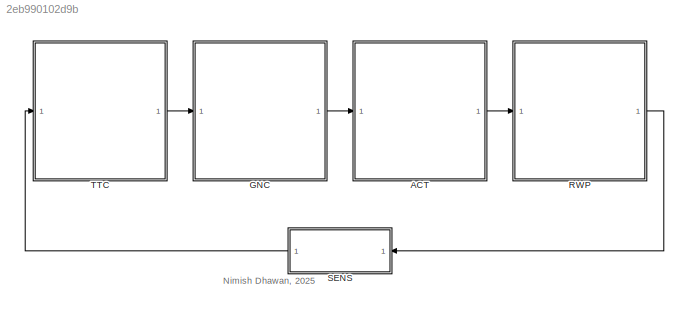
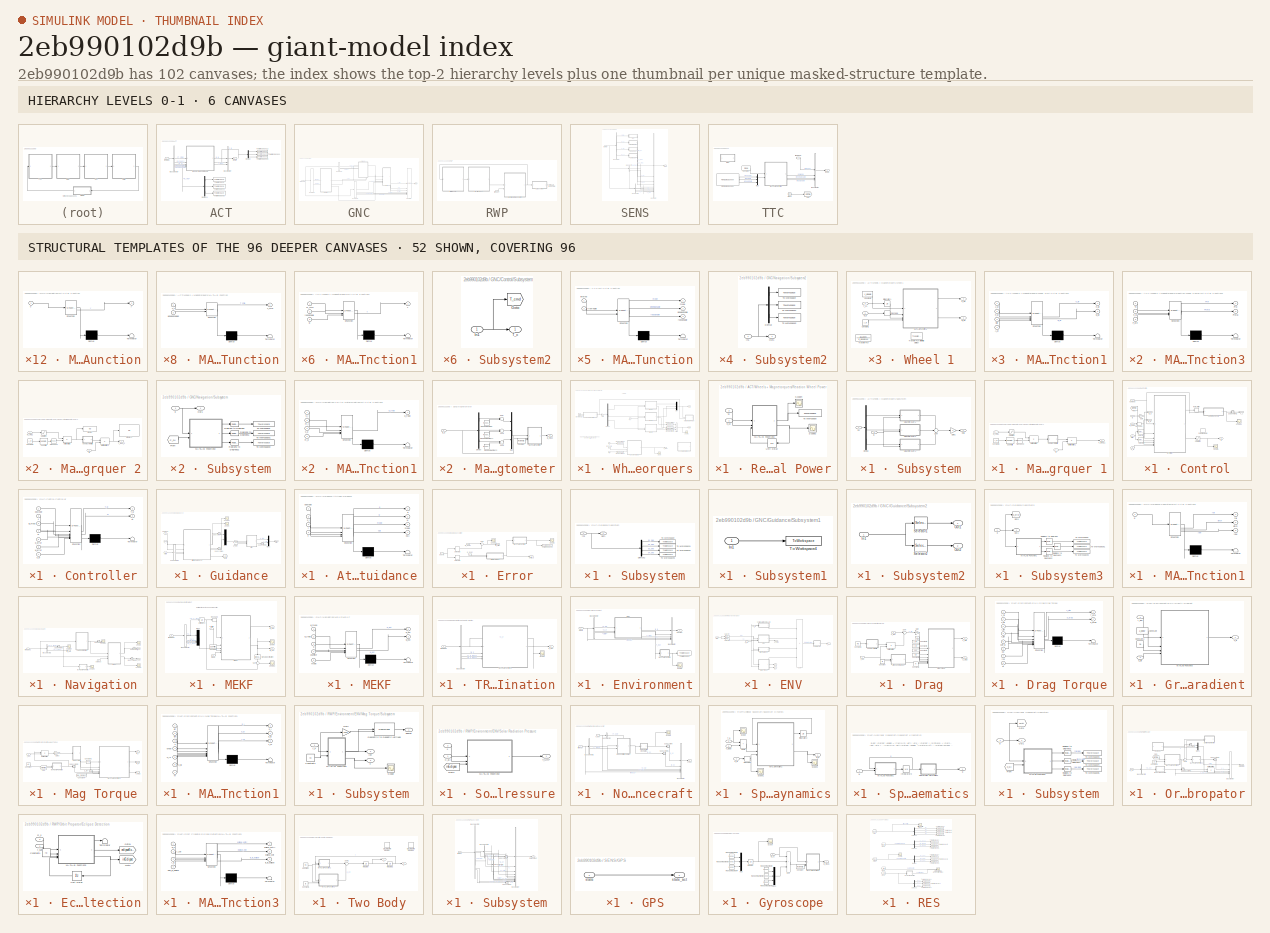
[diagram: thumbnail index - top-2 hierarchy levels (6 canvases) + 52 structural-template representatives of the remaining 96 canvases]
MODEL slx_2eb990102d9b
KIND model
CONFIG AbsTol = auto
CONFIG EnableMultiTasking = off
CONFIG FixedStep = baseRate
CONFIG MaxStep = auto
CONFIG MinStep = auto
CONFIG RelTol = 1e-3
CONFIG SampleTimeConstraint = Unconstrained
CONFIG SolverName = ode4
CONFIG StartTime = 0.0
CONFIG StopTime = tspan
BLOCK [SubSystem] ACT
BLOCK [BusCreator] ACT/Bus Creator
  DisplayOption = bar
  InheritFromInputs = on
  Inputs = 3
BLOCK [BusSelector] ACT/Bus Selector
  OutputSignals = T_cmd,w_body,B_b,m_cmd,wheelsEnable,rodsEnable
BLOCK [Demux] ACT/Demux
  Outputs = 3
BLOCK [Demux] ACT/Demux1
  Outputs = 3
BLOCK [ToWorkspace] ACT/To Workspace
  FixptAsFi = on
  MaxDataPoints = inf
  SampleTime = -1
  VariableName = m_1
BLOCK [ToWorkspace] ACT/To Workspace1
  FixptAsFi = on
  MaxDataPoints = inf
  SampleTime = -1
  VariableName = m_2
BLOCK [ToWorkspace] ACT/To Workspace10
  FixptAsFi = on
  MaxDataPoints = inf
  SampleTime = -1
  Save2DSignal = 2-D array (concatenate along first dimension)
  VariableName = h3_w
BLOCK [ToWorkspace] ACT/To Workspace11
  FixptAsFi = on
  MaxDataPoints = inf
  SampleTime = -1
  Save2DSignal = 2-D array (concatenate along first dimension)
  VariableName = h2_w
BLOCK [ToWorkspace] ACT/To Workspace12
  FixptAsFi = on
  MaxDataPoints = inf
  SampleTime = -1
  Save2DSignal = 2-D array (concatenate along first dimension)
  VariableName = h1_w
BLOCK [ToWorkspace] ACT/To Workspace2
  FixptAsFi = on
  MaxDataPoints = inf
  SampleTime = -1
  VariableName = m_3
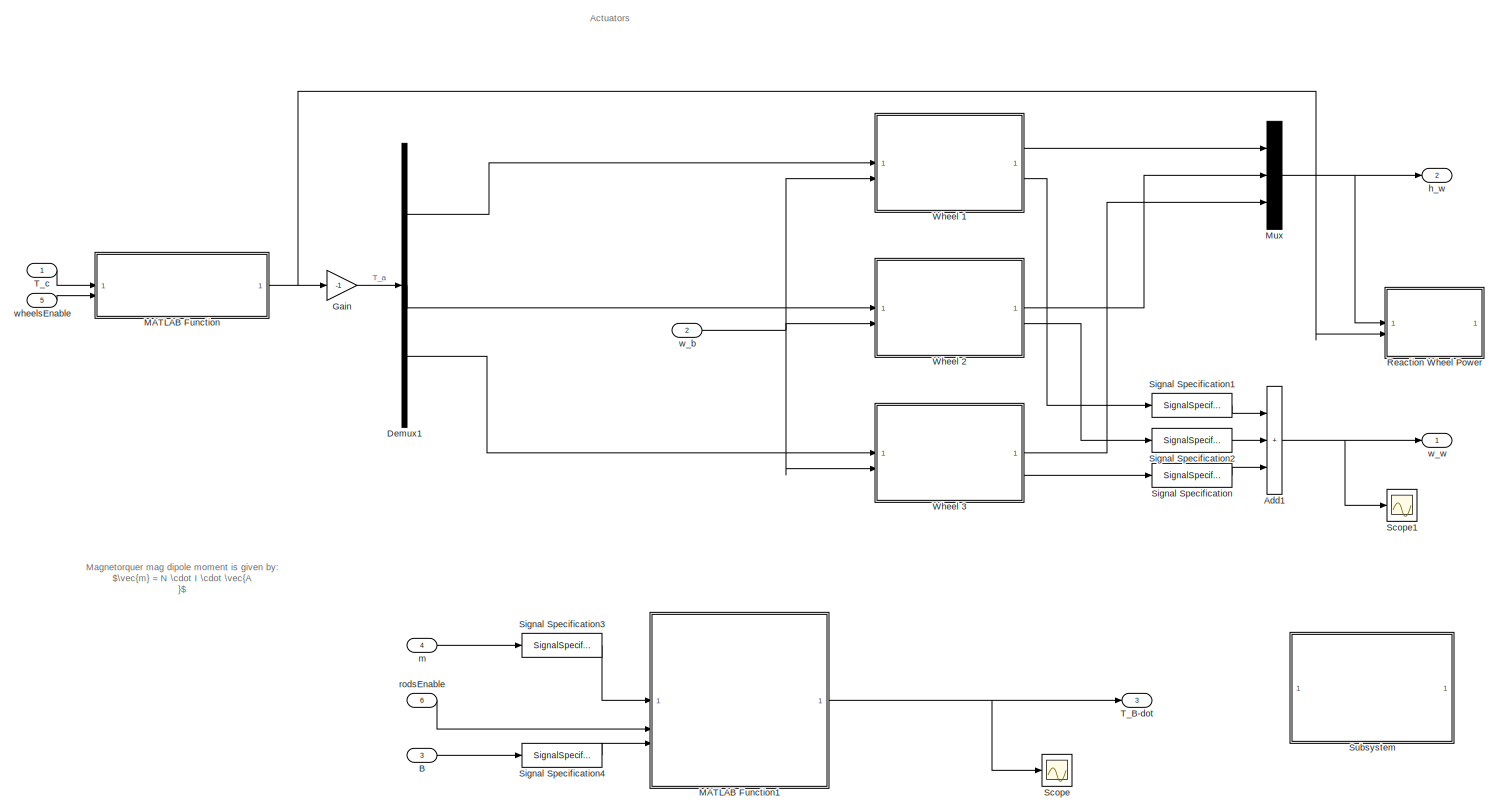
[diagram: ACT/Wheels + Magnetorquers - part 1/1, most of the canvas]
BLOCK [SubSystem] ACT/Wheels + Magnetorquers
BLOCK [Sum] ACT/Wheels + Magnetorquers/Add1
  IconShape = rectangular
  Inputs = +++
BLOCK [Inport] ACT/Wheels + Magnetorquers/B
  Port = 3
BLOCK [Demux] ACT/Wheels + Magnetorquers/Demux1
  Outputs = 3
BLOCK [Gain] ACT/Wheels + Magnetorquers/Gain
  Gain = -1
BLOCK [SubSystem] ACT/Wheels + Magnetorquers/MATLAB Function
  ErrorFcn = Stateflow.Translate.translate
  PermitHierarchicalResolution = ExplicitOnly
  SFBlockType = MATLAB Function
  TreatAsAtomicUnit = on
BLOCK [Demux] ACT/Wheels + Magnetorquers/MATLAB Function/ Demux 
  Outputs = 1
BLOCK [S-Function] ACT/Wheels + Magnetorquers/MATLAB Function/ SFunction 
  EnableBusSupport = on
  FunctionName = sf_sfun
  PortCounts = [2 2]
  SFcnIsStateOwnerBlock = off
  SFunctionDeploymentMode = off
  Tag = Stateflow S-Function 2
BLOCK [Terminator] ACT/Wheels + Magnetorquers/MATLAB Function/ Terminator 
BLOCK [Inport] ACT/Wheels + Magnetorquers/MATLAB Function/T_c
BLOCK [Outport] ACT/Wheels + Magnetorquers/MATLAB Function/T_cmd
BLOCK [Inport] ACT/Wheels + Magnetorquers/MATLAB Function/wheelsEnabled
  Port = 2
BLOCK [SubSystem] ACT/Wheels + Magnetorquers/MATLAB Function1
  ErrorFcn = Stateflow.Translate.translate
  PermitHierarchicalResolution = ExplicitOnly
  SFBlockType = MATLAB Function
  TreatAsAtomicUnit = on
BLOCK [Demux] ACT/Wheels + Magnetorquers/MATLAB Function1/ Demux 
  Outputs = 1
BLOCK [S-Function] ACT/Wheels + Magnetorquers/MATLAB Function1/ SFunction 
  EnableBusSupport = on
  FunctionName = sf_sfun
  PortCounts = [3 2]
  SFcnIsStateOwnerBlock = off
  SFunctionDeploymentMode = off
  Tag = Stateflow S-Function 5
BLOCK [Terminator] ACT/Wheels + Magnetorquers/MATLAB Function1/ Terminator 
BLOCK [Inport] ACT/Wheels + Magnetorquers/MATLAB Function1/B
  Port = 3
BLOCK [Outport] ACT/Wheels + Magnetorquers/MATLAB Function1/T
BLOCK [Inport] ACT/Wheels + Magnetorquers/MATLAB Function1/m_cmd
BLOCK [Inport] ACT/Wheels + Magnetorquers/MATLAB Function1/rodsEnable
  Port = 2
BLOCK [Mux] ACT/Wheels + Magnetorquers/Mux
  DisplayOption = bar
  Inputs = 3
BLOCK [SubSystem] ACT/Wheels + Magnetorquers/Reaction Wheel Power
BLOCK [SubSystem] ACT/Wheels + Magnetorquers/Reaction Wheel Power/MATLAB Function3
  ErrorFcn = Stateflow.Translate.translate
  PermitHierarchicalResolution = ExplicitOnly
  SFBlockType = MATLAB Function
  TreatAsAtomicUnit = on
BLOCK [Demux] ACT/Wheels + Magnetorquers/Reaction Wheel Power/MATLAB Function3/ Demux 
  Outputs = 1
BLOCK [S-Function] ACT/Wheels + Magnetorquers/Reaction Wheel Power/MATLAB Function3/ SFunction 
  EnableBusSupport = on
  FunctionName = sf_sfun
  PortCounts = [3 3]
  SFcnIsStateOwnerBlock = off
  SFunctionDeploymentMode = off
  Tag = Stateflow S-Function 34
BLOCK [Terminator] ACT/Wheels + Magnetorquers/Reaction Wheel Power/MATLAB Function3/ Terminator 
BLOCK [Inport] ACT/Wheels + Magnetorquers/Reaction Wheel Power/MATLAB Function3/P_pre
  Port = 3
BLOCK [Outport] ACT/Wheels + Magnetorquers/Reaction Wheel Power/MATLAB Function3/Prw
BLOCK [Outport] ACT/Wheels + Magnetorquers/Reaction Wheel Power/MATLAB Function3/Ptotal
  Port = 2
BLOCK [Inport] ACT/Wheels + Magnetorquers/Reaction Wheel Power/MATLAB Function3/Tc
BLOCK [Inport] ACT/Wheels + Magnetorquers/Reaction Wheel Power/MATLAB Function3/h_W
  Port = 2
BLOCK [Scope] ACT/Wheels + Magnetorquers/Reaction Wheel Power/Scope2
  Floating = off
  NumInputPorts = 1
  ScopeSpecificationString = Simulink.scopes.TimeScopeBlockCfg('CurrentConfiguration', extmgr.ConfigurationSet(extmgr.Configuration('Core','General UI',true),extmgr.Configuration('Core','Source UI',true),extmgr.Configuration('Sources','WiredSimulink',true,'DataLoggingVariableName','ScopeData2'),extmgr.Configuration('Visuals','Time Domain',true,'SerializedDisplays',{struct('MinYLimReal','-170.39311','MaxYLimReal','1533.53798',...<+1706ch>
BLOCK [Scope] ACT/Wheels + Magnetorquers/Reaction Wheel Power/Scope4
  Floating = off
  NumInputPorts = 1
  ScopeSpecificationString = Simulink.scopes.TimeScopeBlockCfg('CurrentConfiguration', extmgr.ConfigurationSet(extmgr.Configuration('Core','General UI',true),extmgr.Configuration('Core','Source UI',true),extmgr.Configuration('Sources','WiredSimulink',true,'DataLoggingVariableName','ScopeData1'),extmgr.Configuration('Visuals','Time Domain',true,'SerializedDisplays',{struct('MinYLimReal','-0.01681','MaxYLimReal','0.15128','YLab...<+1667ch>
BLOCK [Inport] ACT/Wheels + Magnetorquers/Reaction Wheel Power/Tc
  Port = 2
BLOCK [ToWorkspace] ACT/Wheels + Magnetorquers/Reaction Wheel Power/To Workspace
  FixptAsFi = on
  MaxDataPoints = inf
  SampleTime = -1
  VariableName = Prw
BLOCK [UnitDelay] ACT/Wheels + Magnetorquers/Reaction Wheel Power/Unit Delay
  HasFrameUpgradeWarning = on
  InitialCondition = zeros(3,1)
  NameLocation = top
  SampleTime = -1
BLOCK [Inport] ACT/Wheels + Magnetorquers/Reaction Wheel Power/h_W
BLOCK [Scope] ACT/Wheels + Magnetorquers/Scope
  Floating = off
  NumInputPorts = 1
  ScopeSpecificationString = Simulink.scopes.TimeScopeBlockCfg('CurrentConfiguration', extmgr.ConfigurationSet(extmgr.Configuration('Core','General UI',true),extmgr.Configuration('Core','Source UI',true),extmgr.Configuration('Sources','WiredSimulink',true,'DataLoggingVariableName','ScopeData2'),extmgr.Configuration('Visuals','Time Domain',true,'SerializedDisplays',{struct('MinYLimReal','-1.00000','MaxYLimReal','1.00000','YLab...<+1588ch>
BLOCK [Scope] ACT/Wheels + Magnetorquers/Scope1
  Floating = off
  NumInputPorts = 1
  ScopeSpecificationString = Simulink.scopes.TimeScopeBlockCfg('CurrentConfiguration', extmgr.ConfigurationSet(extmgr.Configuration('Core','General UI',true),extmgr.Configuration('Core','Source UI',true),extmgr.Configuration('Sources','WiredSimulink',true,'DataLoggingVariableName','ScopeData1'),extmgr.Configuration('Visuals','Time Domain',true,'SerializedDisplays',{struct('MinYLimReal','-0.31595','MaxYLimReal','2.84348','YLab...<+1525ch>
BLOCK [SignalSpecification] ACT/Wheels + Magnetorquers/Signal Specification
  Dimensions = [3,1]
BLOCK [SignalSpecification] ACT/Wheels + Magnetorquers/Signal Specification1
  Dimensions = [3,1]
BLOCK [SignalSpecification] ACT/Wheels + Magnetorquers/Signal Specification2
  Dimensions = [3,1]
BLOCK [SignalSpecification] ACT/Wheels + Magnetorquers/Signal Specification3
  Dimensions = [3,1]
BLOCK [SignalSpecification] ACT/Wheels + Magnetorquers/Signal Specification4
  Dimensions = [3,1]
BLOCK [SubSystem] ACT/Wheels + Magnetorquers/Subsystem
  Commented = on
BLOCK [Inport] ACT/Wheels + Magnetorquers/Subsystem/B
  Port = 2
BLOCK [Demux] ACT/Wheels + Magnetorquers/Subsystem/Demux
  Outputs = 3
BLOCK [Gain] ACT/Wheels + Magnetorquers/Subsystem/Gain1
  Gain = -1
BLOCK [Inport] ACT/Wheels + Magnetorquers/Subsystem/In1
BLOCK [SubSystem] ACT/Wheels + Magnetorquers/Subsystem/Magnetorquer 1
BLOCK [Inport] ACT/Wheels + Magnetorquers/Subsystem/Magnetorquer 1/B
  NameLocation = left
  Port = 2
BLOCK [Constant] ACT/Wheels + Magnetorquers/Subsystem/Magnetorquer 1/Constant1
  Value = A_m
BLOCK [Product] ACT/Wheels + Magnetorquers/Subsystem/Magnetorquer 1/Matrix Multiply
BLOCK [Product] ACT/Wheels + Magnetorquers/Subsystem/Magnetorquer 1/Matrix Multiply1
  Multiplication = Matrix(*)
BLOCK [Saturate] ACT/Wheels + Magnetorquers/Subsystem/Magnetorquer 1/Saturation
  LowerLimit = -0.2
  UpperLimit = 0.2
BLOCK [Reference] ACT/Wheels + Magnetorquers/Subsystem/Magnetorquer 1/Submatrix  REF=matrix_library/Submatrix
  SourceBlock = matrix_library/Submatrix
  SourceType = Submatrix
BLOCK [Outport] ACT/Wheels + Magnetorquers/Subsystem/Magnetorquer 1/T_Bdot_1
BLOCK [Math] ACT/Wheels + Magnetorquers/Subsystem/Magnetorquer 1/Transpose
  Operator = transpose
BLOCK [Inport] ACT/Wheels + Magnetorquers/Subsystem/Magnetorquer 1/m_cmd1
  NameLocation = left
BLOCK [SubSystem] ACT/Wheels + Magnetorquers/Subsystem/Magnetorquer 1/skew symmetric
  ErrorFcn = Stateflow.Translate.translate
  PermitHierarchicalResolution = ExplicitOnly
  SFBlockType = MATLAB Function
  TreatAsAtomicUnit = on
BLOCK [Demux] ACT/Wheels + Magnetorquers/Subsystem/Magnetorquer 1/skew symmetric/ Demux 
  Outputs = 1
BLOCK [S-Function] ACT/Wheels + Magnetorquers/Subsystem/Magnetorquer 1/skew symmetric/ SFunction 
  EnableBusSupport = on
  FunctionName = sf_sfun
  PortCounts = [1 2]
  SFcnIsStateOwnerBlock = off
  SFunctionDeploymentMode = off
  Tag = Stateflow S-Function 76
BLOCK [Terminator] ACT/Wheels + Magnetorquers/Subsystem/Magnetorquer 1/skew symmetric/ Terminator 
BLOCK [Inport] ACT/Wheels + Magnetorquers/Subsystem/Magnetorquer 1/skew symmetric/M
BLOCK [Outport] ACT/Wheels + Magnetorquers/Subsystem/Magnetorquer 1/skew symmetric/skew
BLOCK [SubSystem] ACT/Wheels + Magnetorquers/Subsystem/Magnetorquer 2
BLOCK [Inport] ACT/Wheels + Magnetorquers/Subsystem/Magnetorquer 2/B
  NameLocation = left
  Port = 2
BLOCK [Constant] ACT/Wheels + Magnetorquers/Subsystem/Magnetorquer 2/Constant1
  Value = A_m
BLOCK [Display] ACT/Wheels + Magnetorquers/Subsystem/Magnetorquer 2/Display
  Decimation = 1
BLOCK [Display] ACT/Wheels + Magnetorquers/Subsystem/Magnetorquer 2/Display1
  Decimation = 1
BLOCK [Product] ACT/Wheels + Magnetorquers/Subsystem/Magnetorquer 2/Matrix Multiply
BLOCK [Product] ACT/Wheels + Magnetorquers/Subsystem/Magnetorquer 2/Matrix Multiply1
  Multiplication = Matrix(*)
BLOCK [Saturate] ACT/Wheels + Magnetorquers/Subsystem/Magnetorquer 2/Saturation
  LowerLimit = -0.2
  UpperLimit = 0.2
BLOCK [Reference] ACT/Wheels + Magnetorquers/Subsystem/Magnetorquer 2/Submatrix  REF=matrix_library/Submatrix
  SourceBlock = matrix_library/Submatrix
  SourceType = Submatrix
BLOCK [Outport] ACT/Wheels + Magnetorquers/Subsystem/Magnetorquer 2/T_Bdot_2
BLOCK [Math] ACT/Wheels + Magnetorquers/Subsystem/Magnetorquer 2/Transpose
  Operator = transpose
BLOCK [Inport] ACT/Wheels + Magnetorquers/Subsystem/Magnetorquer 2/m_cmd2
  NameLocation = left
BLOCK [SubSystem] ACT/Wheels + Magnetorquers/Subsystem/Magnetorquer 2/skew symmetric
  ErrorFcn = Stateflow.Translate.translate
  PermitHierarchicalResolution = ExplicitOnly
  SFBlockType = MATLAB Function
  TreatAsAtomicUnit = on
BLOCK [Demux] ACT/Wheels + Magnetorquers/Subsystem/Magnetorquer 2/skew symmetric/ Demux 
  Outputs = 1
BLOCK [S-Function] ACT/Wheels + Magnetorquers/Subsystem/Magnetorquer 2/skew symmetric/ SFunction 
  EnableBusSupport = on
  FunctionName = sf_sfun
  PortCounts = [1 2]
  SFcnIsStateOwnerBlock = off
  SFunctionDeploymentMode = off
  Tag = Stateflow S-Function 77
BLOCK [Terminator] ACT/Wheels + Magnetorquers/Subsystem/Magnetorquer 2/skew symmetric/ Terminator 
BLOCK [Inport] ACT/Wheels + Magnetorquers/Subsystem/Magnetorquer 2/skew symmetric/M
BLOCK [Outport] ACT/Wheels + Magnetorquers/Subsystem/Magnetorquer 2/skew symmetric/skew
BLOCK [SubSystem] ACT/Wheels + Magnetorquers/Subsystem/Magnetorquer 3
BLOCK [Inport] ACT/Wheels + Magnetorquers/Subsystem/Magnetorquer 3/B
  NameLocation = left
  Port = 2
BLOCK [Constant] ACT/Wheels + Magnetorquers/Subsystem/Magnetorquer 3/Constant1
  Value = A_m
BLOCK [Display] ACT/Wheels + Magnetorquers/Subsystem/Magnetorquer 3/Display
  Decimation = 1
BLOCK [Display] ACT/Wheels + Magnetorquers/Subsystem/Magnetorquer 3/Display1
  Decimation = 1
BLOCK [Product] ACT/Wheels + Magnetorquers/Subsystem/Magnetorquer 3/Matrix Multiply
BLOCK [Product] ACT/Wheels + Magnetorquers/Subsystem/Magnetorquer 3/Matrix Multiply1
  Multiplication = Matrix(*)
BLOCK [Saturate] ACT/Wheels + Magnetorquers/Subsystem/Magnetorquer 3/Saturation
  LowerLimit = -0.2
  UpperLimit = 0.2
BLOCK [Reference] ACT/Wheels + Magnetorquers/Subsystem/Magnetorquer 3/Submatrix  REF=matrix_library/Submatrix
  SourceBlock = matrix_library/Submatrix
  SourceType = Submatrix
BLOCK [Outport] ACT/Wheels + Magnetorquers/Subsystem/Magnetorquer 3/T_Bdot_3
BLOCK [Math] ACT/Wheels + Magnetorquers/Subsystem/Magnetorquer 3/Transpose
  Operator = transpose
BLOCK [Inport] ACT/Wheels + Magnetorquers/Subsystem/Magnetorquer 3/m_cmd3
  NameLocation = left
BLOCK [SubSystem] ACT/Wheels + Magnetorquers/Subsystem/Magnetorquer 3/skew symmetric
  ErrorFcn = Stateflow.Translate.translate
  PermitHierarchicalResolution = ExplicitOnly
  SFBlockType = MATLAB Function
  TreatAsAtomicUnit = on
BLOCK [Demux] ACT/Wheels + Magnetorquers/Subsystem/Magnetorquer 3/skew symmetric/ Demux 
  Outputs = 1
BLOCK [S-Function] ACT/Wheels + Magnetorquers/Subsystem/Magnetorquer 3/skew symmetric/ SFunction 
  EnableBusSupport = on
  FunctionName = sf_sfun
  PortCounts = [1 2]
  SFcnIsStateOwnerBlock = off
  SFunctionDeploymentMode = off
  Tag = Stateflow S-Function 78
BLOCK [Terminator] ACT/Wheels + Magnetorquers/Subsystem/Magnetorquer 3/skew symmetric/ Terminator 
BLOCK [Inport] ACT/Wheels + Magnetorquers/Subsystem/Magnetorquer 3/skew symmetric/M
BLOCK [Outport] ACT/Wheels + Magnetorquers/Subsystem/Magnetorquer 3/skew symmetric/skew
BLOCK [Outport] ACT/Wheels + Magnetorquers/Subsystem/Out1
BLOCK [Sum] ACT/Wheels + Magnetorquers/Subsystem/Sum
  Inputs = +++
BLOCK [Outport] ACT/Wheels + Magnetorquers/T_B-dot
  Port = 3
BLOCK [Inport] ACT/Wheels + Magnetorquers/T_c
BLOCK [SubSystem] ACT/Wheels + Magnetorquers/Wheel 1
BLOCK [Constant] ACT/Wheels + Magnetorquers/Wheel 1/Constant1
  Value = A_w
BLOCK [Constant] ACT/Wheels + Magnetorquers/Wheel 1/Constant2
  Value = J_wheels
BLOCK [Integrator] ACT/Wheels + Magnetorquers/Wheel 1/Integrator1
  InitialCondition = wW_1*J_wheels
BLOCK [SubSystem] ACT/Wheels + Magnetorquers/Wheel 1/MATLAB Function1
  ErrorFcn = Stateflow.Translate.translate
  PermitHierarchicalResolution = ExplicitOnly
  SFBlockType = MATLAB Function
  TreatAsAtomicUnit = on
BLOCK [Demux] ACT/Wheels + Magnetorquers/Wheel 1/MATLAB Function1/ Demux 
  Outputs = 1
BLOCK [S-Function] ACT/Wheels + Magnetorquers/Wheel 1/MATLAB Function1/ SFunction 
  EnableBusSupport = on
  FunctionName = sf_sfun
  PortCounts = [4 3]
  SFcnIsStateOwnerBlock = off
  SFunctionDeploymentMode = off
  Tag = Stateflow S-Function 29
BLOCK [Terminator] ACT/Wheels + Magnetorquers/Wheel 1/MATLAB Function1/ Terminator 
BLOCK [Inport] ACT/Wheels + Magnetorquers/Wheel 1/MATLAB Function1/A_w
  Port = 4
BLOCK [Inport] ACT/Wheels + Magnetorquers/Wheel 1/MATLAB Function1/J_w
BLOCK [Inport] ACT/Wheels + Magnetorquers/Wheel 1/MATLAB Function1/h_w
  Port = 2
BLOCK [Outport] ACT/Wheels + Magnetorquers/Wheel 1/MATLAB Function1/h_wi
BLOCK [Inport] ACT/Wheels + Magnetorquers/Wheel 1/MATLAB Function1/wB
  Port = 3
BLOCK [Outport] ACT/Wheels + Magnetorquers/Wheel 1/MATLAB Function1/w_wi
  Port = 2
BLOCK [Reshape] ACT/Wheels + Magnetorquers/Wheel 1/Reshape
  OutputDimensionality = Column vector (2-D)
BLOCK [Inport] ACT/Wheels + Magnetorquers/Wheel 1/T_c1
BLOCK [TransferFcn] ACT/Wheels + Magnetorquers/Wheel 1/Transfer Fcn
  Denominator = [J_wheels 1 0]
  Numerator = [2.11e04]
BLOCK [Reference] ACT/Wheels + Magnetorquers/Wheel 1/Transfer Fcn (with initial states)  REF=simulink_extras/Additional
Linear/Transfer Fcn
(with initial states)
  SourceBlock = simulink_extras/Additional\nLinear/Transfer Fcn\n(with initial states)
  SourceType = Transfer Function with Initial States
BLOCK [Outport] ACT/Wheels + Magnetorquers/Wheel 1/h_w1
  NameLocation = top
BLOCK [Inport] ACT/Wheels + Magnetorquers/Wheel 1/w_b
  Port = 2
BLOCK [Outport] ACT/Wheels + Magnetorquers/Wheel 1/w_w1
  Port = 2
BLOCK [SubSystem] ACT/Wheels + Magnetorquers/Wheel 2
BLOCK [Constant] ACT/Wheels + Magnetorquers/Wheel 2/Constant2
  Value = A_w
BLOCK [Constant] ACT/Wheels + Magnetorquers/Wheel 2/Constant3
  Value = J_wheels
BLOCK [Integrator] ACT/Wheels + Magnetorquers/Wheel 2/Integrator1
  InitialCondition = wW_2*J_wheels
BLOCK [SubSystem] ACT/Wheels + Magnetorquers/Wheel 2/MATLAB Function1
  ErrorFcn = Stateflow.Translate.translate
  PermitHierarchicalResolution = ExplicitOnly
  SFBlockType = MATLAB Function
  TreatAsAtomicUnit = on
BLOCK [Demux] ACT/Wheels + Magnetorquers/Wheel 2/MATLAB Function1/ Demux 
  Outputs = 1
BLOCK [S-Function] ACT/Wheels + Magnetorquers/Wheel 2/MATLAB Function1/ SFunction 
  EnableBusSupport = on
  FunctionName = sf_sfun
  PortCounts = [4 3]
  SFcnIsStateOwnerBlock = off
  SFunctionDeploymentMode = off
  Tag = Stateflow S-Function 30
BLOCK [Terminator] ACT/Wheels + Magnetorquers/Wheel 2/MATLAB Function1/ Terminator 
BLOCK [Inport] ACT/Wheels + Magnetorquers/Wheel 2/MATLAB Function1/A_w
  Port = 4
BLOCK [Inport] ACT/Wheels + Magnetorquers/Wheel 2/MATLAB Function1/J_w
BLOCK [Inport] ACT/Wheels + Magnetorquers/Wheel 2/MATLAB Function1/h_w
  Port = 2
BLOCK [Outport] ACT/Wheels + Magnetorquers/Wheel 2/MATLAB Function1/h_wi
BLOCK [Inport] ACT/Wheels + Magnetorquers/Wheel 2/MATLAB Function1/wB
  Port = 3
BLOCK [Outport] ACT/Wheels + Magnetorquers/Wheel 2/MATLAB Function1/w_wi
  Port = 2
BLOCK [Reshape] ACT/Wheels + Magnetorquers/Wheel 2/Reshape
  OutputDimensionality = Column vector (2-D)
BLOCK [Inport] ACT/Wheels + Magnetorquers/Wheel 2/T_c2
BLOCK [TransferFcn] ACT/Wheels + Magnetorquers/Wheel 2/Transfer Fcn
  Denominator = [J_wheels 1 0]
  Numerator = [2.11e04]
BLOCK [Reference] ACT/Wheels + Magnetorquers/Wheel 2/Transfer Fcn (with initial states)  REF=simulink_extras/Additional
Linear/Transfer Fcn
(with initial states)
  SourceBlock = simulink_extras/Additional\nLinear/Transfer Fcn\n(with initial states)
  SourceType = Transfer Function with Initial States
BLOCK [Outport] ACT/Wheels + Magnetorquers/Wheel 2/h_w2
BLOCK [Inport] ACT/Wheels + Magnetorquers/Wheel 2/w_b
  Port = 2
BLOCK [Outport] ACT/Wheels + Magnetorquers/Wheel 2/w_w2
  Port = 2
BLOCK [SubSystem] ACT/Wheels + Magnetorquers/Wheel 3
BLOCK [Constant] ACT/Wheels + Magnetorquers/Wheel 3/Constant2
  Value = A_w
BLOCK [Constant] ACT/Wheels + Magnetorquers/Wheel 3/Constant3
  Value = J_wheels
BLOCK [Integrator] ACT/Wheels + Magnetorquers/Wheel 3/Integrator1
  InitialCondition = wW_3*J_wheels
BLOCK [SubSystem] ACT/Wheels + Magnetorquers/Wheel 3/MATLAB Function1
  ErrorFcn = Stateflow.Translate.translate
  PermitHierarchicalResolution = ExplicitOnly
  SFBlockType = MATLAB Function
  TreatAsAtomicUnit = on
BLOCK [Demux] ACT/Wheels + Magnetorquers/Wheel 3/MATLAB Function1/ Demux 
  Outputs = 1
BLOCK [S-Function] ACT/Wheels + Magnetorquers/Wheel 3/MATLAB Function1/ SFunction 
  EnableBusSupport = on
  FunctionName = sf_sfun
  PortCounts = [4 3]
  SFcnIsStateOwnerBlock = off
  SFunctionDeploymentMode = off
  Tag = Stateflow S-Function 32
BLOCK [Terminator] ACT/Wheels + Magnetorquers/Wheel 3/MATLAB Function1/ Terminator 
BLOCK [Inport] ACT/Wheels + Magnetorquers/Wheel 3/MATLAB Function1/A_w
  Port = 4
BLOCK [Inport] ACT/Wheels + Magnetorquers/Wheel 3/MATLAB Function1/J_w
BLOCK [Inport] ACT/Wheels + Magnetorquers/Wheel 3/MATLAB Function1/h_w
  Port = 2
BLOCK [Outport] ACT/Wheels + Magnetorquers/Wheel 3/MATLAB Function1/h_wi
BLOCK [Inport] ACT/Wheels + Magnetorquers/Wheel 3/MATLAB Function1/wB
  Port = 3
BLOCK [Outport] ACT/Wheels + Magnetorquers/Wheel 3/MATLAB Function1/w_wi
  Port = 2
BLOCK [Reshape] ACT/Wheels + Magnetorquers/Wheel 3/Reshape
  OutputDimensionality = Column vector (2-D)
BLOCK [Inport] ACT/Wheels + Magnetorquers/Wheel 3/T_c3
BLOCK [TransferFcn] ACT/Wheels + Magnetorquers/Wheel 3/Transfer Fcn
  Denominator = [J_wheels 1 0]
  Numerator = [2.11e04]
BLOCK [Reference] ACT/Wheels + Magnetorquers/Wheel 3/Transfer Fcn (with initial states)  REF=simulink_extras/Additional
Linear/Transfer Fcn
(with initial states)
  SourceBlock = simulink_extras/Additional\nLinear/Transfer Fcn\n(with initial states)
  SourceType = Transfer Function with Initial States
BLOCK [Outport] ACT/Wheels + Magnetorquers/Wheel 3/h_w3
  NameLocation = top
BLOCK [Inport] ACT/Wheels + Magnetorquers/Wheel 3/w_b
  Port = 2
BLOCK [Outport] ACT/Wheels + Magnetorquers/Wheel 3/w_w3
  Port = 2
BLOCK [Outport] ACT/Wheels + Magnetorquers/h_w
  Port = 2
BLOCK [Inport] ACT/Wheels + Magnetorquers/m
  Port = 4
BLOCK [Inport] ACT/Wheels + Magnetorquers/rodsEnable
  Port = 6
BLOCK [Inport] ACT/Wheels + Magnetorquers/w_b
  NameLocation = left
  Port = 2
BLOCK [Outport] ACT/Wheels + Magnetorquers/w_w
BLOCK [Inport] ACT/Wheels + Magnetorquers/wheelsEnable
  Port = 5
BLOCK [Inport] ACT/fromGNC
BLOCK [Outport] ACT/toRWP
BLOCK [SubSystem] GNC
BLOCK [BusCreator] GNC/Bus Creator
  DisplayOption = bar
  InheritFromInputs = on
  Inputs = 7
BLOCK [BusSelector] GNC/Bus Selector
  OutputSignals = fromSENS,opMode
BLOCK [BusSelector] GNC/Bus Selector1
  OutputSignals = fromSENS.state_act,fromSENS.s_I,opMode
BLOCK [BusSelector] GNC/Bus Selector2
  OutputSignals = fromSENS.h_w,opMode,wheelsEnable,rodsEnable
BLOCK [SubSystem] GNC/Control
BLOCK [Inport] GNC/Control/B
  Port = 3
BLOCK [Outport] GNC/Control/B_b
  Port = 2
BLOCK [SubSystem] GNC/Control/Controller
  ErrorFcn = Stateflow.Translate.translate
  PermitHierarchicalResolution = ExplicitOnly
  SFBlockType = MATLAB Function
  TreatAsAtomicUnit = on
BLOCK [Demux] GNC/Control/Controller/ Demux 
  Outputs = 1
BLOCK [S-Function] GNC/Control/Controller/ SFunction 
  EnableBusSupport = on
  FunctionName = sf_sfun
  Parameters = J_body,K_d,K_p,K_w,dt,period
  PortCounts = [7 3]
  SFcnIsStateOwnerBlock = off
  SFunctionDeploymentMode = off
  Tag = Stateflow S-Function 70
BLOCK [Terminator] GNC/Control/Controller/ Terminator 
BLOCK [Inport] GNC/Control/Controller/B_meas
  Port = 3
BLOCK [Outport] GNC/Control/Controller/M
  Port = 2
BLOCK [Outport] GNC/Control/Controller/T_w
BLOCK [Inport] GNC/Control/Controller/h_w
  Port = 7
BLOCK [Inport] GNC/Control/Controller/opMode
BLOCK [Inport] GNC/Control/Controller/q_error
  Port = 5
BLOCK [Inport] GNC/Control/Controller/t
  Port = 2
BLOCK [Inport] GNC/Control/Controller/w
  Port = 4
BLOCK [Inport] GNC/Control/Controller/w_error
  Port = 6
BLOCK [From] GNC/Control/From
  GotoTag = simTime
  TagVisibility = global
BLOCK [Gain] GNC/Control/Gain
  Gain = 1e-09
BLOCK [RateLimiter] GNC/Control/Rate Limiter
  FallingSlewLimit = -5e-07
  RisingSlewLimit = 5e-07
  SampleTimeMode = inherited
BLOCK [Reshape] GNC/Control/Reshape
  OutputDimensionality = Column vector (2-D)
  OutputDimensions = [3,1]
BLOCK [Saturate] GNC/Control/Saturation
  LowerLimit = -0.2
  UpperLimit = 0.2
BLOCK [Scope] GNC/Control/Scope
  Floating = off
  NumInputPorts = 1
  ScopeSpecificationString = Simulink.scopes.TimeScopeBlockCfg('CurrentConfiguration', extmgr.ConfigurationSet(extmgr.Configuration('Core','General UI',true),extmgr.Configuration('Core','Source UI',true),extmgr.Configuration('Sources','WiredSimulink',true,'DataLoggingVariableName','ScopeData1'),extmgr.Configuration('Visuals','Time Domain',true,'SerializedDisplays',{struct('MinYLimReal','-0.25','MaxYLimReal','0.25','YLabelReal...<+1546ch>
BLOCK [Scope] GNC/Control/Scope1
  Floating = off
  NumInputPorts = 1
  ScopeSpecificationString = Simulink.scopes.TimeScopeBlockCfg('CurrentConfiguration', extmgr.ConfigurationSet(extmgr.Configuration('Core','General UI',true),extmgr.Configuration('Core','Source UI',true),extmgr.Configuration('Sources','WiredSimulink',true,'DataLoggingVariableName','ScopeData1'),extmgr.Configuration('Visuals','Time Domain',true,'SerializedDisplays',{struct('MinYLimReal','-0.000009','MaxYLimReal','0.000009','YL...<+1587ch>
BLOCK [Selector] GNC/Control/Selector
  IndexOptions = Index vector (dialog)
  Indices = [4 5 6 7]
  InputPortWidth = 7
  OutputSizes = 1
BLOCK [Selector] GNC/Control/Selector1
  IndexOptions = Index vector (dialog)
  Indices = [1 2 3]
  InputPortWidth = 7
  OutputSizes = 1
BLOCK [SubSystem] GNC/Control/Subsystem2
  ShowPortLabels = none
BLOCK [Goto] GNC/Control/Subsystem2/Goto
  GotoTag = T_cmd
  TagVisibility = global
BLOCK [Inport] GNC/Control/Subsystem2/In1
BLOCK [Outport] GNC/Control/Subsystem2/T_c
BLOCK [Outport] GNC/Control/T_c
BLOCK [ZeroOrderHold] GNC/Control/Zero-Order Hold
  SampleTime = -1
BLOCK [Inport] GNC/Control/error
BLOCK [Inport] GNC/Control/h_w
  Port = 4
BLOCK [Outport] GNC/Control/m
  Port = 4
BLOCK [Inport] GNC/Control/opMode
  Port = 5
BLOCK [SubSystem] GNC/Control/sample and hold
  ErrorFcn = Stateflow.Translate.translate
  PermitHierarchicalResolution = ExplicitOnly
  SFBlockType = MATLAB Function
  TreatAsAtomicUnit = on
BLOCK [Demux] GNC/Control/sample and hold/ Demux 
  Outputs = 1
BLOCK [S-Function] GNC/Control/sample and hold/ SFunction 
  EnableBusSupport = on
  FunctionName = sf_sfun
  Parameters = baseRate
  PortCounts = [2 2]
  SFcnIsStateOwnerBlock = off
  SFunctionDeploymentMode = off
  Tag = Stateflow S-Function 4
BLOCK [Terminator] GNC/Control/sample and hold/ Terminator 
BLOCK [Inport] GNC/Control/sample and hold/opMode
  Port = 2
BLOCK [Inport] GNC/Control/sample and hold/u
BLOCK [Outport] GNC/Control/sample and hold/y
BLOCK [Outport] GNC/Control/w_b
  Port = 3
BLOCK [Inport] GNC/Control/w_body
  Port = 2
BLOCK [SubSystem] GNC/Guidance
  PortSchema = {"entries":[{"content":{"sides":[{"content":{},"type":"ConnectorPlacement.EquallySpacedRectSide","uuid":"1b864df5-58d8-4c90-91c9-86121554aa4c"},{"content":{"side":"RIGHT"},"type":"ConnectorPlacement.EquallySpacedRectSide","uuid":"8c8748bb-fc8a-40e3-a181-470f6593a9be"},{"content":{"connectorIds":["Out1"],"side":"TOP"},"type":"ConnectorPlacement.EquallySpacedRectSide","uuid":"61030da7-ff27-4452-a972...<+373ch>
BLOCK [SubSystem] GNC/Guidance/Attitude Guidance
  ErrorFcn = Stateflow.Translate.translate
  PermitHierarchicalResolution = ExplicitOnly
  SFBlockType = MATLAB Function
  TreatAsAtomicUnit = on
BLOCK [Demux] GNC/Guidance/Attitude Guidance/ Demux 
  Outputs = 1
BLOCK [S-Function] GNC/Guidance/Attitude Guidance/ SFunction 
  EnableBusSupport = on
  FunctionName = sf_sfun
  Parameters = n,q1_ini,q2_ini,q3_ini,q4_ini,rE
  PortCounts = [4 5]
  SFcnIsStateOwnerBlock = off
  SFunctionDeploymentMode = off
  Tag = Stateflow S-Function 35
BLOCK [Terminator] GNC/Guidance/Attitude Guidance/ Terminator 
BLOCK [Outport] GNC/Guidance/Attitude Guidance/CQI
  Port = 4
BLOCK [Outport] GNC/Guidance/Attitude Guidance/mode
  Port = 3
BLOCK [Inport] GNC/Guidance/Attitude Guidance/opMode
BLOCK [Outport] GNC/Guidance/Attitude Guidance/q
BLOCK [Inport] GNC/Guidance/Attitude Guidance/r
  Port = 3
BLOCK [Inport] GNC/Guidance/Attitude Guidance/s_i
  Port = 2
BLOCK [Inport] GNC/Guidance/Attitude Guidance/v
  Port = 4
BLOCK [Outport] GNC/Guidance/Attitude Guidance/w
  Port = 2
BLOCK [SubSystem] GNC/Guidance/Error
BLOCK [SubSystem] GNC/Guidance/Error/Error Quaternion
  ErrorFcn = Stateflow.Translate.translate
  PermitHierarchicalResolution = ExplicitOnly
  SFBlockType = MATLAB Function
  TreatAsAtomicUnit = on
BLOCK [Demux] GNC/Guidance/Error/Error Quaternion/ Demux 
  Outputs = 1
BLOCK [S-Function] GNC/Guidance/Error/Error Quaternion/ SFunction 
  EnableBusSupport = on
  FunctionName = sf_sfun
  PortCounts = [2 2]
  SFcnIsStateOwnerBlock = off
  SFunctionDeploymentMode = off
  Tag = Stateflow S-Function 15
BLOCK [Terminator] GNC/Guidance/Error/Error Quaternion/ Terminator 
BLOCK [Outport] GNC/Guidance/Error/Error Quaternion/delta_q
BLOCK [Inport] GNC/Guidance/Error/Error Quaternion/q
BLOCK [Inport] GNC/Guidance/Error/Error Quaternion/q_d
  Port = 2
BLOCK [SubSystem] GNC/Guidance/Error/MATLAB Function
  ErrorFcn = Stateflow.Translate.translate
  PermitHierarchicalResolution = ExplicitOnly
  SFBlockType = MATLAB Function
  TreatAsAtomicUnit = on
BLOCK [Demux] GNC/Guidance/Error/MATLAB Function/ Demux 
  Outputs = 1
BLOCK [S-Function] GNC/Guidance/Error/MATLAB Function/ SFunction 
  EnableBusSupport = on
  FunctionName = sf_sfun
  PortCounts = [1 2]
  SFcnIsStateOwnerBlock = off
  SFunctionDeploymentMode = off
  Tag = Stateflow S-Function 16
BLOCK [Terminator] GNC/Guidance/Error/MATLAB Function/ Terminator 
BLOCK [Inport] GNC/Guidance/Error/MATLAB Function/q_error
BLOCK [Outport] GNC/Guidance/Error/MATLAB Function/theta_e
BLOCK [Scope] GNC/Guidance/Error/Scope
  Floating = off
  NumInputPorts = 1
  ScopeSpecificationString = Simulink.scopes.TimeScopeBlockCfg('CurrentConfiguration', extmgr.ConfigurationSet(extmgr.Configuration('Core','General UI',true,'FigureColor',[1 1 1]),extmgr.Configuration('Core','Source UI',true),extmgr.Configuration('Sources','WiredSimulink',true,'DataLoggingVariableName','ScopeData1'),extmgr.Configuration('Visuals','Time Domain',true,'SerializedDisplays',{struct('MinYLimReal','-2.50174','MaxYLi...<+1705ch>
BLOCK [Scope] GNC/Guidance/Error/Scope1
  Floating = off
  NumInputPorts = 1
  ScopeSpecificationString = Simulink.scopes.TimeScopeBlockCfg('CurrentConfiguration', extmgr.ConfigurationSet(extmgr.Configuration('Core','General UI',true,'FigureColor',[1 1 1]),extmgr.Configuration('Core','Source UI',true),extmgr.Configuration('Sources','WiredSimulink',true,'DataLoggingVariableName','ScopeData1'),extmgr.Configuration('Visuals','Time Domain',true,'SerializedDisplays',{struct('MinYLimReal','-10.80312','MaxYL...<+1713ch>
BLOCK [Selector] GNC/Guidance/Error/Selector2
  IndexOptions = Index vector (dialog)
  Indices = [1 2 3 4]
  InputPortWidth = 7
  OutputSizes = 1
BLOCK [Selector] GNC/Guidance/Error/Selector3
  IndexOptions = Index vector (dialog)
  Indices = [5 6 7]
  InputPortWidth = 7
  OutputSizes = 1
BLOCK [Sum] GNC/Guidance/Error/Sum
  Inputs = |-+
BLOCK [ToWorkspace] GNC/Guidance/Error/To Workspace3
  FixptAsFi = on
  MaxDataPoints = inf
  SampleTime = -1
  VariableName = pointing_err
BLOCK [Outport] GNC/Guidance/Error/delta_q
  Port = 2
BLOCK [Inport] GNC/Guidance/Error/desAtt
BLOCK [Inport] GNC/Guidance/Error/q_body
  NameLocation = left
  Port = 3
BLOCK [Inport] GNC/Guidance/Error/w_body
  Port = 2
BLOCK [Outport] GNC/Guidance/Error/w_error
BLOCK [Goto] GNC/Guidance/Goto
  GotoTag = C_QI
  TagVisibility = global
BLOCK [Mux] GNC/Guidance/Mux
  DisplayOption = bar
  Inputs = 2
BLOCK [Mux] GNC/Guidance/Mux1
  DisplayOption = bar
  Inputs = 2
BLOCK [Scope] GNC/Guidance/Scope
  Floating = off
  NumInputPorts = 1
  ScopeSpecificationString = Simulink.scopes.TimeScopeBlockCfg('CurrentConfiguration', extmgr.ConfigurationSet(extmgr.Configuration('Core','General UI',true),extmgr.Configuration('Core','Source UI',true),extmgr.Configuration('Sources','WiredSimulink',true,'DataLoggingVariableName','ScopeData1'),extmgr.Configuration('Visuals','Time Domain',true,'SerializedDisplays',{struct('MinYLimReal','-1.08579','MaxYLimReal','1.08551','YLab...<+1619ch>
BLOCK [Scope] GNC/Guidance/Scope1
  Floating = off
  NumInputPorts = 1
  ScopeSpecificationString = Simulink.scopes.TimeScopeBlockCfg('CurrentConfiguration', extmgr.ConfigurationSet(extmgr.Configuration('Core','General UI',true),extmgr.Configuration('Core','Source UI',true),extmgr.Configuration('Sources','WiredSimulink',true,'DataLoggingVariableName','ScopeData2'),extmgr.Configuration('Visuals','Time Domain',true,'SerializedDisplays',{struct('MinYLimReal','-0.00127','MaxYLimReal','0.00014','YLab...<+1570ch>
BLOCK [SubSystem] GNC/Guidance/Subsystem
  ShowPortLabels = none
BLOCK [Demux] GNC/Guidance/Subsystem/Demux2
BLOCK [Inport] GNC/Guidance/Subsystem/In1
BLOCK [Outport] GNC/Guidance/Subsystem/Out1
BLOCK [ToWorkspace] GNC/Guidance/Subsystem/To Workspace
  FixptAsFi = on
  MaxDataPoints = inf
  SampleTime = -1
  Save2DSignal = 2-D array (concatenate along first dimension)
  VariableName = q1_des
BLOCK [ToWorkspace] GNC/Guidance/Subsystem/To Workspace1
  FixptAsFi = on
  MaxDataPoints = inf
  SampleTime = -1
  Save2DSignal = 2-D array (concatenate along first dimension)
  VariableName = q2_des
BLOCK [ToWorkspace] GNC/Guidance/Subsystem/To Workspace2
  FixptAsFi = on
  MaxDataPoints = inf
  SampleTime = -1
  Save2DSignal = 2-D array (concatenate along first dimension)
  VariableName = q3_des
BLOCK [ToWorkspace] GNC/Guidance/Subsystem/To Workspace3
  FixptAsFi = on
  MaxDataPoints = inf
  SampleTime = -1
  Save2DSignal = 2-D array (concatenate along first dimension)
  VariableName = q4_des
BLOCK [SubSystem] GNC/Guidance/Subsystem1
  ShowPortLabels = none
BLOCK [Inport] GNC/Guidance/Subsystem1/In1
BLOCK [ToWorkspace] GNC/Guidance/Subsystem1/To Workspace4
  FixptAsFi = on
  MaxDataPoints = inf
  SampleTime = -1
  Save2DSignal = 2-D array (concatenate along first dimension)
  VariableName = mode
BLOCK [SubSystem] GNC/Guidance/Subsystem2
BLOCK [Inport] GNC/Guidance/Subsystem2/In1
BLOCK [Outport] GNC/Guidance/Subsystem2/Out1
BLOCK [Outport] GNC/Guidance/Subsystem2/Out2
  Port = 2
BLOCK [Selector] GNC/Guidance/Subsystem2/Selector1
  IndexOptions = Index vector (dialog)
  Indices = [1 2 3]
  InputPortWidth = 6
  OutputSizes = 1
BLOCK [Selector] GNC/Guidance/Subsystem2/Selector2
  IndexOptions = Index vector (dialog)
  Indices = [4 5 6]
  InputPortWidth = 6
  OutputSizes = 1
BLOCK [SubSystem] GNC/Guidance/Subsystem3
  ShowPortLabels = none
BLOCK [Goto] GNC/Guidance/Subsystem3/Goto
  GotoTag = q_error
  TagVisibility = global
BLOCK [SubSystem] GNC/Guidance/Subsystem3/MATLAB Function1
  ErrorFcn = Stateflow.Translate.translate
  PermitHierarchicalResolution = ExplicitOnly
  SFBlockType = MATLAB Function
  TreatAsAtomicUnit = on
BLOCK [Demux] GNC/Guidance/Subsystem3/MATLAB Function1/ Demux 
  Outputs = 1
BLOCK [S-Function] GNC/Guidance/Subsystem3/MATLAB Function1/ SFunction 
  EnableBusSupport = on
  FunctionName = sf_sfun
  PortCounts = [1 4]
  SFcnIsStateOwnerBlock = off
  SFunctionDeploymentMode = off
  Tag = Stateflow S-Function 18
BLOCK [Terminator] GNC/Guidance/Subsystem3/MATLAB Function1/ Terminator 
BLOCK [Outport] GNC/Guidance/Subsystem3/MATLAB Function1/pitch
  Port = 2
BLOCK [Inport] GNC/Guidance/Subsystem3/MATLAB Function1/q
BLOCK [Outport] GNC/Guidance/Subsystem3/MATLAB Function1/roll
BLOCK [Outport] GNC/Guidance/Subsystem3/MATLAB Function1/yaw
  Port = 3
BLOCK [Outport] GNC/Guidance/Subsystem3/Out1
BLOCK [Reference] GNC/Guidance/Subsystem3/Radians to Degrees  REF=simulink_extras/Transformations/Radians
to Degrees
  SourceBlock = simulink_extras/Transformations/Radians\nto Degrees
  SourceType = RadiansToDegrees
BLOCK [Reference] GNC/Guidance/Subsystem3/Radians to Degrees1  REF=simulink_extras/Transformations/Radians
to Degrees
  SourceBlock = simulink_extras/Transformations/Radians\nto Degrees
  SourceType = RadiansToDegrees
BLOCK [Reference] GNC/Guidance/Subsystem3/Radians to Degrees2  REF=simulink_extras/Transformations/Radians
to Degrees
  SourceBlock = simulink_extras/Transformations/Radians\nto Degrees
  SourceType = RadiansToDegrees
BLOCK [ToWorkspace] GNC/Guidance/Subsystem3/To Workspace
  FixptAsFi = on
  MaxDataPoints = inf
  SampleTime = -1
  VariableName = roll_err
BLOCK [ToWorkspace] GNC/Guidance/Subsystem3/To Workspace1
  FixptAsFi = on
  MaxDataPoints = inf
  SampleTime = -1
  VariableName = pitch_err
BLOCK [ToWorkspace] GNC/Guidance/Subsystem3/To Workspace2
  FixptAsFi = on
  MaxDataPoints = inf
  SampleTime = -1
  VariableName = yaw_err
BLOCK [Inport] GNC/Guidance/Subsystem3/q
BLOCK [Outport] GNC/Guidance/error
BLOCK [Inport] GNC/Guidance/opMode
  Port = 3
BLOCK [Inport] GNC/Guidance/q_est
  Port = 5
BLOCK [Inport] GNC/Guidance/s_I
  Port = 2
BLOCK [Inport] GNC/Guidance/state
BLOCK [Inport] GNC/Guidance/w_est
  Port = 4
BLOCK [SubSystem] GNC/Navigation
BLOCK [Outport] GNC/Navigation/B_est
  Port = 3
BLOCK [BusSelector] GNC/Navigation/Bus Selector1
  OutputSignals = w_sc_meas,B_b_meas
BLOCK [SubSystem] GNC/Navigation/MATLAB Function
  ErrorFcn = Stateflow.Translate.translate
  PermitHierarchicalResolution = ExplicitOnly
  SFBlockType = MATLAB Function
  TreatAsAtomicUnit = on
BLOCK [Demux] GNC/Navigation/MATLAB Function/ Demux 
  Outputs = 1
BLOCK [S-Function] GNC/Navigation/MATLAB Function/ SFunction 
  EnableBusSupport = on
  FunctionName = sf_sfun
  PortCounts = [1 2]
  SFcnIsStateOwnerBlock = off
  SFunctionDeploymentMode = off
  Tag = Stateflow S-Function 7
BLOCK [Terminator] GNC/Navigation/MATLAB Function/ Terminator 
BLOCK [Inport] GNC/Navigation/MATLAB Function/u
BLOCK [Outport] GNC/Navigation/MATLAB Function/y
BLOCK [SubSystem] GNC/Navigation/MEKF
BLOCK [BusSelector] GNC/Navigation/MEKF/Bus Selector
  OutputSignals = w_sc_meas,s_I,B_I,s_B_meas,B_b_meas
BLOCK [Constant] GNC/Navigation/MEKF/Constant4
  Value = useFilter
BLOCK [SubSystem] GNC/Navigation/MEKF/MEKF
  ErrorFcn = Stateflow.Translate.translate
  PermitHierarchicalResolution = ExplicitOnly
  SFBlockType = MATLAB Function
  TreatAsAtomicUnit = on
BLOCK [Demux] GNC/Navigation/MEKF/MEKF/ Demux 
  Outputs = 1
BLOCK [S-Function] GNC/Navigation/MEKF/MEKF/ SFunction 
  EnableBusSupport = on
  FunctionName = sf_sfun
  Parameters = R,dt,sigma_b,sigma_g
  PortCounts = [5 3]
  SFcnIsStateOwnerBlock = off
  SFunctionDeploymentMode = off
  Tag = Stateflow S-Function 39
BLOCK [Terminator] GNC/Navigation/MEKF/MEKF/ Terminator 
BLOCK [Inport] GNC/Navigation/MEKF/MEKF/mode
  Port = 5
BLOCK [Outport] GNC/Navigation/MEKF/MEKF/q_est
BLOCK [Inport] GNC/Navigation/MEKF/MEKF/q_triad
  Port = 2
BLOCK [Inport] GNC/Navigation/MEKF/MEKF/useFilter
  Port = 4
BLOCK [Outport] GNC/Navigation/MEKF/MEKF/w_est
  Port = 2
BLOCK [Inport] GNC/Navigation/MEKF/MEKF/w_meas
BLOCK [Inport] GNC/Navigation/MEKF/MEKF/y
  Port = 3
BLOCK [Mux] GNC/Navigation/MEKF/Mux1
  DisplayOption = bar
BLOCK [Reshape] GNC/Navigation/MEKF/Reshape
  OutputDimensionality = Column vector (2-D)
BLOCK [Scope] GNC/Navigation/MEKF/Scope
  Floating = off
  NumInputPorts = 1
  ScopeSpecificationString = Simulink.scopes.TimeScopeBlockCfg('CurrentConfiguration', extmgr.ConfigurationSet(extmgr.Configuration('Core','General UI',true),extmgr.Configuration('Core','Source UI',true),extmgr.Configuration('Sources','WiredSimulink',true,'DataLoggingVariableName','ScopeData3'),extmgr.Configuration('Visuals','Time Domain',true,'SerializedDisplays',{struct('MinYLimReal','-0.01009','MaxYLimReal','0.01833','YLab...<+1562ch>
BLOCK [Scope] GNC/Navigation/MEKF/Scope2
  Floating = off
  NumInputPorts = 1
  ScopeSpecificationString = Simulink.scopes.TimeScopeBlockCfg('CurrentConfiguration', extmgr.ConfigurationSet(extmgr.Configuration('Core','General UI',true),extmgr.Configuration('Core','Source UI',true),extmgr.Configuration('Sources','WiredSimulink',true,'DataLoggingVariableName','ScopeData1'),extmgr.Configuration('Visuals','Time Domain',true,'SerializedDisplays',{struct('MinYLimReal','-44.20528','MaxYLimReal','32.13812','YL...<+1575ch>
BLOCK [SignalSpecification] GNC/Navigation/MEKF/Signal Specification
  Dimensions = [3,1]
  NameLocation = left
BLOCK [Sum] GNC/Navigation/MEKF/Sum
  Inputs = -|+
BLOCK [UnitDelay] GNC/Navigation/MEKF/Unit Delay2
  HasFrameUpgradeWarning = on
  InitialCondition = [wB_1; wB_2; wB_3]*pi/180
  SampleTime = -1
BLOCK [Inport] GNC/Navigation/MEKF/fromSENS
  Port = 2
BLOCK [Inport] GNC/Navigation/MEKF/mode
  Port = 3
BLOCK [Outport] GNC/Navigation/MEKF/q_est
BLOCK [Inport] GNC/Navigation/MEKF/q_triad
BLOCK [Outport] GNC/Navigation/MEKF/w_est
  Port = 2
BLOCK [Scope] GNC/Navigation/Scope
  Floating = off
  NameLocation = left
  NumInputPorts = 1
  ScopeSpecificationString = Simulink.scopes.TimeScopeBlockCfg('CurrentConfiguration', extmgr.ConfigurationSet(extmgr.Configuration('Core','General UI',true),extmgr.Configuration('Core','Source UI',true),extmgr.Configuration('Sources','WiredSimulink',true,'DataLoggingVariableName','ScopeData1'),extmgr.Configuration('Visuals','Time Domain',true,'SerializedDisplays',{struct('MinYLimReal','-1.08619','MaxYLimReal','1.08601','YLab...<+1691ch>
BLOCK [Scope] GNC/Navigation/Scope1
  Floating = off
  NumInputPorts = 1
  ScopeSpecificationString = Simulink.scopes.TimeScopeBlockCfg('CurrentConfiguration', extmgr.ConfigurationSet(extmgr.Configuration('Core','General UI',true),extmgr.Configuration('Core','Source UI',true),extmgr.Configuration('Sources','WiredSimulink',true,'DataLoggingVariableName','ScopeData2'),extmgr.Configuration('Visuals','Time Domain',true,'SerializedDisplays',{struct('MinYLimReal','-0.00248','MaxYLimReal','0.00266','YLab...<+1697ch>
BLOCK [Scope] GNC/Navigation/Scope2
  Floating = off
  NumInputPorts = 1
  ScopeSpecificationString = Simulink.scopes.TimeScopeBlockCfg('CurrentConfiguration', extmgr.ConfigurationSet(extmgr.Configuration('Core','General UI',true),extmgr.Configuration('Core','Source UI',true),extmgr.Configuration('Sources','WiredSimulink',true,'DataLoggingVariableName','ScopeData1'),extmgr.Configuration('Visuals','Time Domain',true,'SerializedDisplays',{struct('MinYLimReal','-1.02533','MaxYLimReal','0.82065','YLab...<+1559ch>
BLOCK [Scope] GNC/Navigation/Scope3
  Floating = off
  NumInputPorts = 1
  ScopeSpecificationString = Simulink.scopes.TimeScopeBlockCfg('CurrentConfiguration', extmgr.ConfigurationSet(extmgr.Configuration('Core','General UI',true),extmgr.Configuration('Core','Source UI',true),extmgr.Configuration('Sources','WiredSimulink',true,'DataLoggingVariableName','ScopeData2'),extmgr.Configuration('Visuals','Time Domain',true,'SerializedDisplays',{struct('MinYLimReal','-0.00325','MaxYLimReal','0.00261','YLab...<+1544ch>
BLOCK [Scope] GNC/Navigation/Scope4
  Floating = off
  NumInputPorts = 1
  ScopeSpecificationString = Simulink.scopes.TimeScopeBlockCfg('CurrentConfiguration', extmgr.ConfigurationSet(extmgr.Configuration('Core','General UI',true),extmgr.Configuration('Core','Source UI',true),extmgr.Configuration('Sources','WiredSimulink',true,'DataLoggingVariableName','ScopeData1'),extmgr.Configuration('Visuals','Time Domain',true,'SerializedDisplays',{struct('MinYLimReal','-1.2459','MaxYLimReal','13.1722','YLabe...<+1800ch>
BLOCK [SubSystem] GNC/Navigation/Subsystem
  ShowPortLabels = none
BLOCK [From] GNC/Navigation/Subsystem/From
  GotoTag = C_QI
  TagVisibility = global
BLOCK [SubSystem] GNC/Navigation/Subsystem/MATLAB Function2
  ErrorFcn = Stateflow.Translate.translate
  PermitHierarchicalResolution = ExplicitOnly
  SFBlockType = MATLAB Function
  TreatAsAtomicUnit = on
BLOCK [Demux] GNC/Navigation/Subsystem/MATLAB Function2/ Demux 
  Outputs = 1
BLOCK [S-Function] GNC/Navigation/Subsystem/MATLAB Function2/ SFunction 
  EnableBusSupport = on
  FunctionName = sf_sfun
  PortCounts = [2 4]
  SFcnIsStateOwnerBlock = off
  SFunctionDeploymentMode = off
  Tag = Stateflow S-Function 12
BLOCK [Terminator] GNC/Navigation/Subsystem/MATLAB Function2/ Terminator 
BLOCK [Inport] GNC/Navigation/Subsystem/MATLAB Function2/C_QI
  Port = 2
BLOCK [Outport] GNC/Navigation/Subsystem/MATLAB Function2/pitch
  Port = 2
BLOCK [Inport] GNC/Navigation/Subsystem/MATLAB Function2/q
BLOCK [Outport] GNC/Navigation/Subsystem/MATLAB Function2/roll
BLOCK [Outport] GNC/Navigation/Subsystem/MATLAB Function2/yaw
  Port = 3
BLOCK [Outport] GNC/Navigation/Subsystem/Out1
BLOCK [Reference] GNC/Navigation/Subsystem/Radians to Degrees  REF=simulink_extras/Transformations/Radians
to Degrees
  SourceBlock = simulink_extras/Transformations/Radians\nto Degrees
  SourceType = RadiansToDegrees
BLOCK [Reference] GNC/Navigation/Subsystem/Radians to Degrees1  REF=simulink_extras/Transformations/Radians
to Degrees
  SourceBlock = simulink_extras/Transformations/Radians\nto Degrees
  SourceType = RadiansToDegrees
BLOCK [Reference] GNC/Navigation/Subsystem/Radians to Degrees2  REF=simulink_extras/Transformations/Radians
to Degrees
  SourceBlock = simulink_extras/Transformations/Radians\nto Degrees
  SourceType = RadiansToDegrees
BLOCK [ToWorkspace] GNC/Navigation/Subsystem/To Workspace
  FixptAsFi = on
  MaxDataPoints = inf
  SampleTime = -1
  VariableName = roll_est
BLOCK [ToWorkspace] GNC/Navigation/Subsystem/To Workspace1
  FixptAsFi = on
  MaxDataPoints = inf
  SampleTime = -1
  VariableName = pitch_est
BLOCK [ToWorkspace] GNC/Navigation/Subsystem/To Workspace2
  FixptAsFi = on
  MaxDataPoints = inf
  SampleTime = -1
  VariableName = yaw_est
BLOCK [Inport] GNC/Navigation/Subsystem/q
BLOCK [SubSystem] GNC/Navigation/Subsystem1
  ShowPortLabels = none
BLOCK [From] GNC/Navigation/Subsystem1/From
  GotoTag = C_QI
  TagVisibility = global
BLOCK [SubSystem] GNC/Navigation/Subsystem1/MATLAB Function2
  ErrorFcn = Stateflow.Translate.translate
  PermitHierarchicalResolution = ExplicitOnly
  SFBlockType = MATLAB Function
  TreatAsAtomicUnit = on
BLOCK [Demux] GNC/Navigation/Subsystem1/MATLAB Function2/ Demux 
  Outputs = 1
BLOCK [S-Function] GNC/Navigation/Subsystem1/MATLAB Function2/ SFunction 
  EnableBusSupport = on
  FunctionName = sf_sfun
  PortCounts = [2 4]
  SFcnIsStateOwnerBlock = off
  SFunctionDeploymentMode = off
  Tag = Stateflow S-Function 43
BLOCK [Terminator] GNC/Navigation/Subsystem1/MATLAB Function2/ Terminator 
BLOCK [Inport] GNC/Navigation/Subsystem1/MATLAB Function2/C_QI
  Port = 2
BLOCK [Outport] GNC/Navigation/Subsystem1/MATLAB Function2/pitch
  Port = 2
BLOCK [Inport] GNC/Navigation/Subsystem1/MATLAB Function2/q
BLOCK [Outport] GNC/Navigation/Subsystem1/MATLAB Function2/roll
BLOCK [Outport] GNC/Navigation/Subsystem1/MATLAB Function2/yaw
  Port = 3
BLOCK [Outport] GNC/Navigation/Subsystem1/Out1
BLOCK [Reference] GNC/Navigation/Subsystem1/Radians to Degrees  REF=simulink_extras/Transformations/Radians
to Degrees
  SourceBlock = simulink_extras/Transformations/Radians\nto Degrees
  SourceType = RadiansToDegrees
BLOCK [Reference] GNC/Navigation/Subsystem1/Radians to Degrees1  REF=simulink_extras/Transformations/Radians
to Degrees
  SourceBlock = simulink_extras/Transformations/Radians\nto Degrees
  SourceType = RadiansToDegrees
BLOCK [Reference] GNC/Navigation/Subsystem1/Radians to Degrees2  REF=simulink_extras/Transformations/Radians
to Degrees
  SourceBlock = simulink_extras/Transformations/Radians\nto Degrees
  SourceType = RadiansToDegrees
BLOCK [ToWorkspace] GNC/Navigation/Subsystem1/To Workspace
  FixptAsFi = on
  MaxDataPoints = inf
  SampleTime = -1
  VariableName = roll_meas
BLOCK [ToWorkspace] GNC/Navigation/Subsystem1/To Workspace1
  FixptAsFi = on
  MaxDataPoints = inf
  SampleTime = -1
  VariableName = pitch_meas
BLOCK [ToWorkspace] GNC/Navigation/Subsystem1/To Workspace2
  FixptAsFi = on
  MaxDataPoints = inf
  SampleTime = -1
  VariableName = yaw_meas
BLOCK [Inport] GNC/Navigation/Subsystem1/q
BLOCK [SubSystem] GNC/Navigation/Subsystem2
  ShowPortLabels = none
BLOCK [Demux] GNC/Navigation/Subsystem2/Demux
  Outputs = 3
BLOCK [Inport] GNC/Navigation/Subsystem2/In1
BLOCK [Outport] GNC/Navigation/Subsystem2/Out1
BLOCK [ToWorkspace] GNC/Navigation/Subsystem2/To Workspace
  FixptAsFi = on
  MaxDataPoints = inf
  SampleTime = -1
  VariableName = w1_est
BLOCK [ToWorkspace] GNC/Navigation/Subsystem2/To Workspace1
  FixptAsFi = on
  MaxDataPoints = inf
  SampleTime = -1
  VariableName = w2_est
BLOCK [ToWorkspace] GNC/Navigation/Subsystem2/To Workspace2
  FixptAsFi = on
  MaxDataPoints = inf
  SampleTime = -1
  VariableName = w3_est
BLOCK [SubSystem] GNC/Navigation/Subsystem3
  ShowPortLabels = none
BLOCK [Demux] GNC/Navigation/Subsystem3/Demux
  Outputs = 3
BLOCK [Inport] GNC/Navigation/Subsystem3/In1
BLOCK [Outport] GNC/Navigation/Subsystem3/Out1
BLOCK [ToWorkspace] GNC/Navigation/Subsystem3/To Workspace
  FixptAsFi = on
  MaxDataPoints = inf
  SampleTime = -1
  VariableName = w1_meas
BLOCK [ToWorkspace] GNC/Navigation/Subsystem3/To Workspace1
  FixptAsFi = on
  MaxDataPoints = inf
  SampleTime = -1
  VariableName = w2_meas
BLOCK [ToWorkspace] GNC/Navigation/Subsystem3/To Workspace2
  FixptAsFi = on
  MaxDataPoints = inf
  SampleTime = -1
  VariableName = w3_meas
BLOCK [SubSystem] GNC/Navigation/TRIAD Determination
BLOCK [BusSelector] GNC/Navigation/TRIAD Determination/Bus Selector
  OutputSignals = s_I,B_I,s_B_meas,B_b_meas
BLOCK [SubSystem] GNC/Navigation/TRIAD Determination/MATLAB Function1
  ErrorFcn = Stateflow.Translate.translate
  PermitHierarchicalResolution = ExplicitOnly
  SFBlockType = MATLAB Function
  TreatAsAtomicUnit = on
BLOCK [Demux] GNC/Navigation/TRIAD Determination/MATLAB Function1/ Demux 
  Outputs = 1
BLOCK [S-Function] GNC/Navigation/TRIAD Determination/MATLAB Function1/ SFunction 
  EnableBusSupport = on
  FunctionName = sf_sfun
  Parameters = q1_ini,q2_ini,q3_ini,q4_ini
  PortCounts = [4 2]
  SFcnIsStateOwnerBlock = off
  SFunctionDeploymentMode = off
  Tag = Stateflow S-Function 61
BLOCK [Terminator] GNC/Navigation/TRIAD Determination/MATLAB Function1/ Terminator 
BLOCK [Inport] GNC/Navigation/TRIAD Determination/MATLAB Function1/m_I
  Port = 2
BLOCK [Inport] GNC/Navigation/TRIAD Determination/MATLAB Function1/m_b
  Port = 4
BLOCK [Outport] GNC/Navigation/TRIAD Determination/MATLAB Function1/q_triad
BLOCK [Inport] GNC/Navigation/TRIAD Determination/MATLAB Function1/s_I
BLOCK [Inport] GNC/Navigation/TRIAD Determination/MATLAB Function1/s_b
  Port = 3
BLOCK [Scope] GNC/Navigation/TRIAD Determination/Scope
  Floating = off
  NumInputPorts = 1
  ScopeSpecificationString = Simulink.scopes.TimeScopeBlockCfg('CurrentConfiguration', extmgr.ConfigurationSet(extmgr.Configuration('Core','General UI',true),extmgr.Configuration('Core','Source UI',true),extmgr.Configuration('Sources','WiredSimulink',true,'DataLoggingVariableName','ScopeData2'),extmgr.Configuration('Visuals','Time Domain',true,'SerializedDisplays',{struct('MinYLimReal','-0.11742','MaxYLimReal','1.03251','YLab...<+1505ch>
BLOCK [Inport] GNC/Navigation/TRIAD Determination/fromSENS
BLOCK [Outport] GNC/Navigation/TRIAD Determination/q_det
BLOCK [Inport] GNC/Navigation/fromSENS
BLOCK [Inport] GNC/Navigation/opMode
  Port = 2
BLOCK [Outport] GNC/Navigation/q_est
  Port = 2
BLOCK [Outport] GNC/Navigation/w_est
BLOCK [Inport] GNC/fromSensors
BLOCK [Outport] GNC/toACT
BLOCK [SubSystem] RWP
BLOCK [SubSystem] RWP/Environment
BLOCK [BusCreator] RWP/Environment/Bus Creator
  DisplayOption = bar
  InheritFromInputs = on
  Inputs = 5
BLOCK [BusSelector] RWP/Environment/Bus Selector
  OutputSignals = C_BI,s_I,state
BLOCK [SubSystem] RWP/Environment/ENV
  VariantControl = ext_torque == true
BLOCK [Outport] RWP/Environment/ENV/B_I
  Port = 4
BLOCK [Outport] RWP/Environment/ENV/B_b
  NameLocation = right
BLOCK [Inport] RWP/Environment/ENV/C_BI
BLOCK [SubSystem] RWP/Environment/ENV/Drag
BLOCK [SubSystem] RWP/Environment/ENV/Drag/Atmosphere Model
  ErrorFcn = Stateflow.Translate.translate
  PermitHierarchicalResolution = ExplicitOnly
  SFBlockType = MATLAB Function
  TreatAsAtomicUnit = on
BLOCK [Demux] RWP/Environment/ENV/Drag/Atmosphere Model/ Demux 
  Outputs = 1
BLOCK [S-Function] RWP/Environment/ENV/Drag/Atmosphere Model/ SFunction 
  EnableBusSupport = on
  FunctionName = sf_sfun
  PortCounts = [2 2]
  SFcnIsStateOwnerBlock = off
  SFunctionDeploymentMode = off
  Tag = Stateflow S-Function 36
BLOCK [Terminator] RWP/Environment/ENV/Drag/Atmosphere Model/ Terminator 
BLOCK [Inport] RWP/Environment/ENV/Drag/Atmosphere Model/r
BLOCK [Inport] RWP/Environment/ENV/Drag/Atmosphere Model/rE
  Port = 2
BLOCK [Outport] RWP/Environment/ENV/Drag/Atmosphere Model/rho
BLOCK [Inport] RWP/Environment/ENV/Drag/C_BI
  NameLocation = left
  Port = 3
BLOCK [Constant] RWP/Environment/ENV/Drag/Constant
  Value = rE
BLOCK [Constant] RWP/Environment/ENV/Drag/Constant1
  Value = wE
BLOCK [Constant] RWP/Environment/ENV/Drag/Constant2
  Value = A_list
BLOCK [Constant] RWP/Environment/ENV/Drag/Constant3
  Value = n_list
BLOCK [Constant] RWP/Environment/ENV/Drag/Constant4
  Value = COP
BLOCK [Constant] RWP/Environment/ENV/Drag/Constant5
  Value = CD
BLOCK [Constant] RWP/Environment/ENV/Drag/Constant6
  Value = m
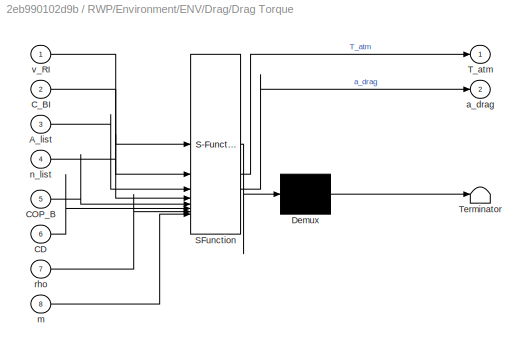
BLOCK [SubSystem] RWP/Environment/ENV/Drag/Drag Torque
  ErrorFcn = Stateflow.Translate.translate
  PermitHierarchicalResolution = ExplicitOnly
  SFBlockType = MATLAB Function
  TreatAsAtomicUnit = on
BLOCK [Demux] RWP/Environment/ENV/Drag/Drag Torque/ Demux 
  Outputs = 1
BLOCK [S-Function] RWP/Environment/ENV/Drag/Drag Torque/ SFunction 
  EnableBusSupport = on
  FunctionName = sf_sfun
  PortCounts = [8 3]
  SFcnIsStateOwnerBlock = off
  SFunctionDeploymentMode = off
  Tag = Stateflow S-Function 37
BLOCK [Terminator] RWP/Environment/ENV/Drag/Drag Torque/ Terminator 
BLOCK [Inport] RWP/Environment/ENV/Drag/Drag Torque/A_list
  Port = 3
BLOCK [Inport] RWP/Environment/ENV/Drag/Drag Torque/CD
  Port = 6
BLOCK [Inport] RWP/Environment/ENV/Drag/Drag Torque/COP_B
  Port = 5
BLOCK [Inport] RWP/Environment/ENV/Drag/Drag Torque/C_BI
  Port = 2
BLOCK [Outport] RWP/Environment/ENV/Drag/Drag Torque/T_atm
BLOCK [Outport] RWP/Environment/ENV/Drag/Drag Torque/a_drag
  Port = 2
BLOCK [Inport] RWP/Environment/ENV/Drag/Drag Torque/m
  Port = 8
BLOCK [Inport] RWP/Environment/ENV/Drag/Drag Torque/n_list
  Port = 4
BLOCK [Inport] RWP/Environment/ENV/Drag/Drag Torque/rho
  Port = 7
BLOCK [Inport] RWP/Environment/ENV/Drag/Drag Torque/v_RI
BLOCK [Gain] RWP/Environment/ENV/Drag/Gain
  Gain = 1000
BLOCK [Product] RWP/Environment/ENV/Drag/Matrix Multiply
  Multiplication = Matrix(*)
BLOCK [Sum] RWP/Environment/ENV/Drag/Sum
  Inputs = |+-
BLOCK [Outport] RWP/Environment/ENV/Drag/T_atm
BLOCK [Outport] RWP/Environment/ENV/Drag/a_drag
  Port = 2
BLOCK [Inport] RWP/Environment/ENV/Drag/r_ECI
BLOCK [SubSystem] RWP/Environment/ENV/Drag/skew symmetric
  ErrorFcn = Stateflow.Translate.translate
  PermitHierarchicalResolution = ExplicitOnly
  SFBlockType = MATLAB Function
  TreatAsAtomicUnit = on
BLOCK [Demux] RWP/Environment/ENV/Drag/skew symmetric/ Demux 
  Outputs = 1
BLOCK [S-Function] RWP/Environment/ENV/Drag/skew symmetric/ SFunction 
  EnableBusSupport = on
  FunctionName = sf_sfun
  PortCounts = [1 2]
  SFcnIsStateOwnerBlock = off
  SFunctionDeploymentMode = off
  Tag = Stateflow S-Function 38
BLOCK [Terminator] RWP/Environment/ENV/Drag/skew symmetric/ Terminator 
BLOCK [Inport] RWP/Environment/ENV/Drag/skew symmetric/M
BLOCK [Outport] RWP/Environment/ENV/Drag/skew symmetric/skew
BLOCK [Inport] RWP/Environment/ENV/Drag/v_ECI
  Port = 2
BLOCK [SubSystem] RWP/Environment/ENV/Enable TEX
  ErrorFcn = Stateflow.Translate.translate
  PermitHierarchicalResolution = ExplicitOnly
  SFBlockType = MATLAB Function
  TreatAsAtomicUnit = on
BLOCK [Demux] RWP/Environment/ENV/Enable TEX/ Demux 
  Outputs = 1
BLOCK [S-Function] RWP/Environment/ENV/Enable TEX/ SFunction 
  EnableBusSupport = on
  FunctionName = sf_sfun
  Parameters = ext_torque
  PortCounts = [1 2]
  SFcnIsStateOwnerBlock = off
  SFunctionDeploymentMode = off
  Tag = Stateflow S-Function 6
BLOCK [Terminator] RWP/Environment/ENV/Enable TEX/ Terminator 
BLOCK [Inport] RWP/Environment/ENV/Enable TEX/u
BLOCK [Outport] RWP/Environment/ENV/Enable TEX/y
BLOCK [SubSystem] RWP/Environment/ENV/Gravity Gradient
BLOCK [Inport] RWP/Environment/ENV/Gravity Gradient/C_BI
  Port = 2
BLOCK [Constant] RWP/Environment/ENV/Gravity Gradient/Constant
  Value = J_body
BLOCK [Constant] RWP/Environment/ENV/Gravity Gradient/Constant1
  Value = mu
BLOCK [SubSystem] RWP/Environment/ENV/Gravity Gradient/MATLAB Function3
  ErrorFcn = Stateflow.Translate.translate
  PermitHierarchicalResolution = ExplicitOnly
  SFBlockType = MATLAB Function
  TreatAsAtomicUnit = on
BLOCK [Demux] RWP/Environment/ENV/Gravity Gradient/MATLAB Function3/ Demux 
  Outputs = 1
BLOCK [S-Function] RWP/Environment/ENV/Gravity Gradient/MATLAB Function3/ SFunction 
  EnableBusSupport = on
  FunctionName = sf_sfun
  PortCounts = [4 2]
  SFcnIsStateOwnerBlock = off
  SFunctionDeploymentMode = off
  Tag = Stateflow S-Function 33
BLOCK [Terminator] RWP/Environment/ENV/Gravity Gradient/MATLAB Function3/ Terminator 
BLOCK [Inport] RWP/Environment/ENV/Gravity Gradient/MATLAB Function3/C_BI
  Port = 4
BLOCK [Inport] RWP/Environment/ENV/Gravity Gradient/MATLAB Function3/J
  Port = 2
BLOCK [Outport] RWP/Environment/ENV/Gravity Gradient/MATLAB Function3/T_g
BLOCK [Inport] RWP/Environment/ENV/Gravity Gradient/MATLAB Function3/mu
  Port = 3
BLOCK [Inport] RWP/Environment/ENV/Gravity Gradient/MATLAB Function3/r_I
BLOCK [Outport] RWP/Environment/ENV/Gravity Gradient/T_g
BLOCK [Inport] RWP/Environment/ENV/Gravity Gradient/r_ECI
BLOCK [SubSystem] RWP/Environment/ENV/Mag Torque
BLOCK [Outport] RWP/Environment/ENV/Mag Torque/B_I
  Port = 3
BLOCK [Outport] RWP/Environment/ENV/Mag Torque/B_b
  Port = 2
BLOCK [Inport] RWP/Environment/ENV/Mag Torque/C_BI
  Port = 2
BLOCK [Constant] RWP/Environment/ENV/Mag Torque/Constant
  Value = wE
BLOCK [Constant] RWP/Environment/ENV/Mag Torque/Constant1
  Value = dYear
BLOCK [Constant] RWP/Environment/ENV/Mag Torque/Constant4
  Value = mag_moment
BLOCK [From] RWP/Environment/ENV/Mag Torque/From
  GotoTag = simTime
  TagVisibility = global
BLOCK [Gain] RWP/Environment/ENV/Mag Torque/Gain3
  Gain = 1000
BLOCK [SubSystem] RWP/Environment/ENV/Mag Torque/MATLAB Function
  ErrorFcn = Stateflow.Translate.translate
  PermitHierarchicalResolution = ExplicitOnly
  SFBlockType = MATLAB Function
  TreatAsAtomicUnit = on
BLOCK [Demux] RWP/Environment/ENV/Mag Torque/MATLAB Function/ Demux 
  Outputs = 1
BLOCK [S-Function] RWP/Environment/ENV/Mag Torque/MATLAB Function/ SFunction 
  EnableBusSupport = on
  FunctionName = sf_sfun
  PortCounts = [2 2]
  SFcnIsStateOwnerBlock = off
  SFunctionDeploymentMode = off
  Tag = Stateflow S-Function 47
BLOCK [Terminator] RWP/Environment/ENV/Mag Torque/MATLAB Function/ Terminator 
BLOCK [Outport] RWP/Environment/ENV/Mag Torque/MATLAB Function/C_IF
BLOCK [Inport] RWP/Environment/ENV/Mag Torque/MATLAB Function/t
  Port = 2
BLOCK [Inport] RWP/Environment/ENV/Mag Torque/MATLAB Function/wE
BLOCK [SubSystem] RWP/Environment/ENV/Mag Torque/MATLAB Function1
  ErrorFcn = Stateflow.Translate.translate
  PermitHierarchicalResolution = ExplicitOnly
  SFBlockType = MATLAB Function
  TreatAsAtomicUnit = on
BLOCK [Demux] RWP/Environment/ENV/Mag Torque/MATLAB Function1/ Demux 
  Outputs = 1
BLOCK [S-Function] RWP/Environment/ENV/Mag Torque/MATLAB Function1/ SFunction 
  EnableBusSupport = on
  FunctionName = sf_sfun
  PortCounts = [7 4]
  SFcnIsStateOwnerBlock = off
  SFunctionDeploymentMode = off
  Tag = Stateflow S-Function 20
BLOCK [Terminator] RWP/Environment/ENV/Mag Torque/MATLAB Function1/ Terminator 
BLOCK [Inport] RWP/Environment/ENV/Mag Torque/MATLAB Function1/C_BI
  Port = 6
BLOCK [Inport] RWP/Environment/ENV/Mag Torque/MATLAB Function1/C_IF
  Port = 5
BLOCK [Outport] RWP/Environment/ENV/Mag Torque/MATLAB Function1/T_m
  Port = 3
BLOCK [Outport] RWP/Environment/ENV/Mag Torque/MATLAB Function1/b_B
  Port = 2
BLOCK [Outport] RWP/Environment/ENV/Mag Torque/MATLAB Function1/b_I
BLOCK [Inport] RWP/Environment/ENV/Mag Torque/MATLAB Function1/dYear
  Port = 4
BLOCK [Inport] RWP/Environment/ENV/Mag Torque/MATLAB Function1/h
  Port = 3
BLOCK [Inport] RWP/Environment/ENV/Mag Torque/MATLAB Function1/lat
BLOCK [Inport] RWP/Environment/ENV/Mag Torque/MATLAB Function1/lon
  Port = 2
BLOCK [Inport] RWP/Environment/ENV/Mag Torque/MATLAB Function1/m
  Port = 7
BLOCK [Product] RWP/Environment/ENV/Mag Torque/Matrix Multiply
  Multiplication = Matrix(*)
BLOCK [SubSystem] RWP/Environment/ENV/Mag Torque/Subsystem
BLOCK [Constant] RWP/Environment/ENV/Mag Torque/Subsystem/Constant2
  Value = rE
BLOCK [Gain] RWP/Environment/ENV/Mag Torque/Subsystem/Gain
  Gain = 1000
BLOCK [Geoc2Geod] RWP/Environment/ENV/Mag Torque/Subsystem/Geocentric to Geodetic Latitude
BLOCK [SubSystem] RWP/Environment/ENV/Mag Torque/Subsystem/MATLAB Function2
  ErrorFcn = Stateflow.Translate.translate
  PermitHierarchicalResolution = ExplicitOnly
  SFBlockType = MATLAB Function
  TreatAsAtomicUnit = on
BLOCK [Demux] RWP/Environment/ENV/Mag Torque/Subsystem/MATLAB Function2/ Demux 
  Outputs = 1
BLOCK [S-Function] RWP/Environment/ENV/Mag Torque/Subsystem/MATLAB Function2/ SFunction 
  EnableBusSupport = on
  FunctionName = sf_sfun
  PortCounts = [2 4]
  SFcnIsStateOwnerBlock = off
  SFunctionDeploymentMode = off
  Tag = Stateflow S-Function 45
BLOCK [Terminator] RWP/Environment/ENV/Mag Torque/Subsystem/MATLAB Function2/ Terminator 
BLOCK [Outport] RWP/Environment/ENV/Mag Torque/Subsystem/MATLAB Function2/h
  Port = 3
BLOCK [Outport] RWP/Environment/ENV/Mag Torque/Subsystem/MATLAB Function2/lat
BLOCK [Outport] RWP/Environment/ENV/Mag Torque/Subsystem/MATLAB Function2/lon
  Port = 2
BLOCK [Inport] RWP/Environment/ENV/Mag Torque/Subsystem/MATLAB Function2/rE
  Port = 2
BLOCK [Inport] RWP/Environment/ENV/Mag Torque/Subsystem/MATLAB Function2/r_F
BLOCK [Scope] RWP/Environment/ENV/Mag Torque/Subsystem/Scope
  Floating = off
  NumInputPorts = 1
  ScopeSpecificationString = Simulink.scopes.TimeScopeBlockCfg('CurrentConfiguration', extmgr.ConfigurationSet(extmgr.Configuration('Core','General UI',true),extmgr.Configuration('Core','Source UI',true),extmgr.Configuration('Sources','WiredSimulink',true,'DataLoggingVariableName','ScopeData1'),extmgr.Configuration('Visuals','Time Domain',true,'SerializedDisplays',{struct('MinYLimReal','703152.44251','MaxYLimReal','703224.814...<+1504ch>
BLOCK [Outport] RWP/Environment/ENV/Mag Torque/Subsystem/geoLat
BLOCK [Outport] RWP/Environment/ENV/Mag Torque/Subsystem/h
  Port = 3
BLOCK [Outport] RWP/Environment/ENV/Mag Torque/Subsystem/lon
  Port = 2
BLOCK [Inport] RWP/Environment/ENV/Mag Torque/Subsystem/r_F
BLOCK [SubSystem] RWP/Environment/ENV/Mag Torque/Subsystem2
  ShowPortLabels = none
BLOCK [Goto] RWP/Environment/ENV/Mag Torque/Subsystem2/Goto
  GotoTag = C_IF
  TagVisibility = global
BLOCK [Inport] RWP/Environment/ENV/Mag Torque/Subsystem2/In1
BLOCK [Outport] RWP/Environment/ENV/Mag Torque/Subsystem2/Out1
BLOCK [Outport] RWP/Environment/ENV/Mag Torque/T_mag
BLOCK [Inport] RWP/Environment/ENV/Mag Torque/r_ECI
BLOCK [Selector] RWP/Environment/ENV/Selector
  IndexOptions = Index vector (dialog)
  Indices = [1 2 3]
  InputPortWidth = 6
  OutputSizes = 1
BLOCK [Selector] RWP/Environment/ENV/Selector1
  IndexOptions = Index vector (dialog)
  Indices = [4 5 6]
  InputPortWidth = 6
  OutputSizes = 1
BLOCK [SubSystem] RWP/Environment/ENV/Solar Radiation Pressure
BLOCK [Inport] RWP/Environment/ENV/Solar Radiation Pressure/C_BI
BLOCK [From] RWP/Environment/ENV/Solar Radiation Pressure/From1
  GotoTag = inEclipse
  TagVisibility = global
BLOCK [SubSystem] RWP/Environment/ENV/Solar Radiation Pressure/MATLAB Function2
  ErrorFcn = Stateflow.Translate.translate
  PermitHierarchicalResolution = ExplicitOnly
  SFBlockType = MATLAB Function
  TreatAsAtomicUnit = on
BLOCK [Demux] RWP/Environment/ENV/Solar Radiation Pressure/MATLAB Function2/ Demux 
  Outputs = 1
BLOCK [S-Function] RWP/Environment/ENV/Solar Radiation Pressure/MATLAB Function2/ SFunction 
  EnableBusSupport = on
  FunctionName = sf_sfun
  Parameters = A_list,COP,eta,n_list,p
  PortCounts = [3 2]
  SFcnIsStateOwnerBlock = off
  SFunctionDeploymentMode = off
  Tag = Stateflow S-Function 52
BLOCK [Terminator] RWP/Environment/ENV/Solar Radiation Pressure/MATLAB Function2/ Terminator 
BLOCK [Inport] RWP/Environment/ENV/Solar Radiation Pressure/MATLAB Function2/C_BI
  Port = 2
BLOCK [Outport] RWP/Environment/ENV/Solar Radiation Pressure/MATLAB Function2/T_SRP
BLOCK [Inport] RWP/Environment/ENV/Solar Radiation Pressure/MATLAB Function2/inEclipse
  Port = 3
BLOCK [Inport] RWP/Environment/ENV/Solar Radiation Pressure/MATLAB Function2/r_sun
BLOCK [Outport] RWP/Environment/ENV/Solar Radiation Pressure/T_SRP
BLOCK [Inport] RWP/Environment/ENV/Solar Radiation Pressure/s
  Port = 2
BLOCK [Sum] RWP/Environment/ENV/Sum
  IconShape = rectangular
  Inputs = ++++
BLOCK [Outport] RWP/Environment/ENV/T_ext
  Port = 2
BLOCK [Outport] RWP/Environment/ENV/a_drag
  Port = 3
BLOCK [Inport] RWP/Environment/ENV/s
  Port = 2
BLOCK [Inport] RWP/Environment/ENV/state
  Port = 3
BLOCK [SubSystem] RWP/Environment/MATLAB Function
  ErrorFcn = Stateflow.Translate.translate
  PermitHierarchicalResolution = ExplicitOnly
  SFBlockType = MATLAB Function
  TreatAsAtomicUnit = on
BLOCK [Demux] RWP/Environment/MATLAB Function/ Demux 
  Outputs = 1
BLOCK [S-Function] RWP/Environment/MATLAB Function/ SFunction 
  EnableBusSupport = on
  FunctionName = sf_sfun
  PortCounts = [1 2]
  SFcnIsStateOwnerBlock = off
  SFunctionDeploymentMode = off
  Tag = Stateflow S-Function 31
BLOCK [Terminator] RWP/Environment/MATLAB Function/ Terminator 
BLOCK [Inport] RWP/Environment/MATLAB Function/u
BLOCK [Outport] RWP/Environment/MATLAB Function/y
BLOCK [Scope] RWP/Environment/Scope
  Floating = off
  NumInputPorts = 1
  ScopeSpecificationString = Simulink.scopes.TimeScopeBlockCfg('CurrentConfiguration', extmgr.ConfigurationSet(extmgr.Configuration('Core','General UI',true),extmgr.Configuration('Core','Source UI',true),extmgr.Configuration('Sources','WiredSimulink',true,'DataLoggingVariableName','ScopeData3'),extmgr.Configuration('Visuals','Time Domain',true,'SerializedDisplays',{struct('MinYLimReal','-0.00000007','MaxYLimReal','0.00000066'...<+1541ch>
BLOCK [ToWorkspace] RWP/Environment/To Workspace
  FixptAsFi = on
  MaxDataPoints = inf
  SampleTime = -1
  VariableName = T_ext
BLOCK [Outport] RWP/Environment/envOut
BLOCK [Inport] RWP/Environment/propIn
BLOCK [SubSystem] RWP/Nonlinear Spacecraft
BLOCK [BusCreator] RWP/Nonlinear Spacecraft/Bus Creator
  DisplayOption = bar
  InheritFromInputs = on
  Inputs = 5
BLOCK [BusSelector] RWP/Nonlinear Spacecraft/Bus Selector
  OutputSignals = T_ext
BLOCK [BusSelector] RWP/Nonlinear Spacecraft/Bus Selector1
  OutputSignals = h_w,T_B-dot
BLOCK [Scope] RWP/Nonlinear Spacecraft/Scope
  Floating = off
  NumInputPorts = 1
  ScopeSpecificationString = Simulink.scopes.TimeScopeBlockCfg('CurrentConfiguration', extmgr.ConfigurationSet(extmgr.Configuration('Core','General UI',true),extmgr.Configuration('Core','Source UI',true),extmgr.Configuration('Sources','WiredSimulink',true,'DataLoggingVariableName','ScopeData2'),extmgr.Configuration('Visuals','Time Domain',true,'SerializedDisplays',{struct('MinYLimReal','-0.78043','MaxYLimReal','1.09218','YLab...<+1601ch>
BLOCK [SubSystem] RWP/Nonlinear Spacecraft/Spacecraft Dynamics
  PortSchema = {"entries":[{"content":{"sides":[{"content":{"connectorIds":["In1","In2"]},"type":"ConnectorPlacement.EquallySpacedRectSide","uuid":"a70cb8db-1d2e-46b2-94ee-90476f7e1e76"},{"content":{"connectorIds":["Out1"],"side":"RIGHT"},"type":"ConnectorPlacement.EquallySpacedRectSide","uuid":"1e67ef54-78b0-4c67-9d63-6ae4863d8fe1"},{"content":{"connectorIds":["In3"],"side":"TOP"},"type":"ConnectorPlacement.Equ...<+251ch>
BLOCK [Integrator] RWP/Nonlinear Spacecraft/Spacecraft Dynamics/Integrator2
  InitialCondition = J_body * [wB_1; wB_2; wB_3]*(pi/180)
BLOCK [SubSystem] RWP/Nonlinear Spacecraft/Spacecraft Dynamics/MATLAB Function1
  ErrorFcn = Stateflow.Translate.translate
  PermitHierarchicalResolution = ExplicitOnly
  SFBlockType = MATLAB Function
  TreatAsAtomicUnit = on
BLOCK [Demux] RWP/Nonlinear Spacecraft/Spacecraft Dynamics/MATLAB Function1/ Demux 
  Outputs = 1
BLOCK [S-Function] RWP/Nonlinear Spacecraft/Spacecraft Dynamics/MATLAB Function1/ SFunction 
  EnableBusSupport = on
  FunctionName = sf_sfun
  Parameters = A_w,J_body
  PortCounts = [3 3]
  SFcnIsStateOwnerBlock = off
  SFunctionDeploymentMode = off
  Tag = Stateflow S-Function 23
BLOCK [Terminator] RWP/Nonlinear Spacecraft/Spacecraft Dynamics/MATLAB Function1/ Terminator 
BLOCK [Inport] RWP/Nonlinear Spacecraft/Spacecraft Dynamics/MATLAB Function1/T_b
  Port = 2
BLOCK [Inport] RWP/Nonlinear Spacecraft/Spacecraft Dynamics/MATLAB Function1/h_tot
BLOCK [Outport] RWP/Nonlinear Spacecraft/Spacecraft Dynamics/MATLAB Function1/h_tot_dot
BLOCK [Inport] RWP/Nonlinear Spacecraft/Spacecraft Dynamics/MATLAB Function1/h_w
  Port = 3
BLOCK [Outport] RWP/Nonlinear Spacecraft/Spacecraft Dynamics/MATLAB Function1/w_b
  Port = 2
BLOCK [Reshape] RWP/Nonlinear Spacecraft/Spacecraft Dynamics/Reshape
  OutputDimensionality = Column vector (2-D)
  OutputDimensions = [3,1]
BLOCK [Scope] RWP/Nonlinear Spacecraft/Spacecraft Dynamics/Scope
  Floating = off
  NumInputPorts = 1
  ScopeSpecificationString = Simulink.scopes.TimeScopeBlockCfg('CurrentConfiguration', extmgr.ConfigurationSet(extmgr.Configuration('Core','General UI',true),extmgr.Configuration('Core','Source UI',true),extmgr.Configuration('Sources','WiredSimulink',true,'DataLoggingVariableName','ScopeData1'),extmgr.Configuration('Visuals','Time Domain',true,'SerializedDisplays',{struct('MinYLimReal','-0.00000041','MaxYLimReal','0.00000036'...<+1518ch>
BLOCK [Scope] RWP/Nonlinear Spacecraft/Spacecraft Dynamics/Scope1
  Floating = off
  NumInputPorts = 1
  ScopeSpecificationString = Simulink.scopes.TimeScopeBlockCfg('CurrentConfiguration', extmgr.ConfigurationSet(extmgr.Configuration('Core','General UI',true),extmgr.Configuration('Core','Source UI',true),extmgr.Configuration('Sources','WiredSimulink',true,'DataLoggingVariableName','ScopeData1'),extmgr.Configuration('Visuals','Time Domain',true,'SerializedDisplays',{struct('MinYLimReal','-0.00089','MaxYLimReal','0.00056','YLab...<+1506ch>
BLOCK [Scope] RWP/Nonlinear Spacecraft/Spacecraft Dynamics/Scope3
  Floating = off
  NumInputPorts = 1
  ScopeSpecificationString = Simulink.scopes.TimeScopeBlockCfg('CurrentConfiguration', extmgr.ConfigurationSet(extmgr.Configuration('Core','General UI',true),extmgr.Configuration('Core','Source UI',true),extmgr.Configuration('Sources','WiredSimulink',true,'DataLoggingVariableName','ScopeData1'),extmgr.Configuration('Visuals','Time Domain',true,'SerializedDisplays',{struct('MinYLimReal','-10850552386953074635478527031730892097...<+2174ch>
BLOCK [Sum] RWP/Nonlinear Spacecraft/Spacecraft Dynamics/Sum2
  IconShape = rectangular
BLOCK [Inport] RWP/Nonlinear Spacecraft/Spacecraft Dynamics/T_Bdot
  NameLocation = left
  Port = 2
BLOCK [Inport] RWP/Nonlinear Spacecraft/Spacecraft Dynamics/T_b
  NameLocation = left
  Port = 3
BLOCK [Inport] RWP/Nonlinear Spacecraft/Spacecraft Dynamics/h_w
BLOCK [Outport] RWP/Nonlinear Spacecraft/Spacecraft Dynamics/w_b
BLOCK [SubSystem] RWP/Nonlinear Spacecraft/Spacecraft Kinematics
BLOCK [Integrator] RWP/Nonlinear Spacecraft/Spacecraft Kinematics/Integrator2
  InitialCondition = [q1_ini; q2_ini; q3_ini; q4_ini]
BLOCK [SubSystem] RWP/Nonlinear Spacecraft/Spacecraft Kinematics/MATLAB Function1
  ErrorFcn = Stateflow.Translate.translate
  PermitHierarchicalResolution = ExplicitOnly
  SFBlockType = MATLAB Function
  TreatAsAtomicUnit = on
BLOCK [Demux] RWP/Nonlinear Spacecraft/Spacecraft Kinematics/MATLAB Function1/ Demux 
  Outputs = 1
BLOCK [S-Function] RWP/Nonlinear Spacecraft/Spacecraft Kinematics/MATLAB Function1/ SFunction 
  EnableBusSupport = on
  FunctionName = sf_sfun
  PortCounts = [2 2]
  SFcnIsStateOwnerBlock = off
  SFunctionDeploymentMode = off
  Tag = Stateflow S-Function 24
BLOCK [Terminator] RWP/Nonlinear Spacecraft/Spacecraft Kinematics/MATLAB Function1/ Terminator 
BLOCK [Inport] RWP/Nonlinear Spacecraft/Spacecraft Kinematics/MATLAB Function1/q
BLOCK [Outport] RWP/Nonlinear Spacecraft/Spacecraft Kinematics/MATLAB Function1/q_dot
BLOCK [Inport] RWP/Nonlinear Spacecraft/Spacecraft Kinematics/MATLAB Function1/w
  Port = 2
BLOCK [SubSystem] RWP/Nonlinear Spacecraft/Spacecraft Kinematics/Quaternion Normalize1
  ErrorFcn = Stateflow.Translate.translate
  PermitHierarchicalResolution = ExplicitOnly
  SFBlockType = MATLAB Function
  TreatAsAtomicUnit = on
BLOCK [Demux] RWP/Nonlinear Spacecraft/Spacecraft Kinematics/Quaternion Normalize1/ Demux 
  Outputs = 1
BLOCK [S-Function] RWP/Nonlinear Spacecraft/Spacecraft Kinematics/Quaternion Normalize1/ SFunction 
  EnableBusSupport = on
  FunctionName = sf_sfun
  PortCounts = [1 2]
  SFcnIsStateOwnerBlock = off
  SFunctionDeploymentMode = off
  Tag = Stateflow S-Function 25
BLOCK [Terminator] RWP/Nonlinear Spacecraft/Spacecraft Kinematics/Quaternion Normalize1/ Terminator 
BLOCK [Inport] RWP/Nonlinear Spacecraft/Spacecraft Kinematics/Quaternion Normalize1/q
BLOCK [Outport] RWP/Nonlinear Spacecraft/Spacecraft Kinematics/Quaternion Normalize1/q_norm
BLOCK [Outport] RWP/Nonlinear Spacecraft/Spacecraft Kinematics/q
BLOCK [Inport] RWP/Nonlinear Spacecraft/Spacecraft Kinematics/w
BLOCK [SubSystem] RWP/Nonlinear Spacecraft/Subsystem
  ShowPortLabels = none
BLOCK [From] RWP/Nonlinear Spacecraft/Subsystem/From
  GotoTag = C_QI
  TagVisibility = global
BLOCK [Goto] RWP/Nonlinear Spacecraft/Subsystem/Goto
  GotoTag = scAtt
  TagVisibility = global
BLOCK [SubSystem] RWP/Nonlinear Spacecraft/Subsystem/MATLAB Function2
  ErrorFcn = Stateflow.Translate.translate
  PermitHierarchicalResolution = ExplicitOnly
  SFBlockType = MATLAB Function
  TreatAsAtomicUnit = on
BLOCK [Demux] RWP/Nonlinear Spacecraft/Subsystem/MATLAB Function2/ Demux 
  Outputs = 1
BLOCK [S-Function] RWP/Nonlinear Spacecraft/Subsystem/MATLAB Function2/ SFunction 
  EnableBusSupport = on
  FunctionName = sf_sfun
  PortCounts = [2 4]
  SFcnIsStateOwnerBlock = off
  SFunctionDeploymentMode = off
  Tag = Stateflow S-Function 3
BLOCK [Terminator] RWP/Nonlinear Spacecraft/Subsystem/MATLAB Function2/ Terminator 
BLOCK [Inport] RWP/Nonlinear Spacecraft/Subsystem/MATLAB Function2/C_QI
  Port = 2
BLOCK [Outport] RWP/Nonlinear Spacecraft/Subsystem/MATLAB Function2/pitch
  Port = 2
BLOCK [Inport] RWP/Nonlinear Spacecraft/Subsystem/MATLAB Function2/q
BLOCK [Outport] RWP/Nonlinear Spacecraft/Subsystem/MATLAB Function2/roll
BLOCK [Outport] RWP/Nonlinear Spacecraft/Subsystem/MATLAB Function2/yaw
  Port = 3
BLOCK [Outport] RWP/Nonlinear Spacecraft/Subsystem/Out1
BLOCK [Reference] RWP/Nonlinear Spacecraft/Subsystem/Radians to Degrees3  REF=simulink_extras/Transformations/Radians
to Degrees
  SourceBlock = simulink_extras/Transformations/Radians\nto Degrees
  SourceType = RadiansToDegrees
BLOCK [Reference] RWP/Nonlinear Spacecraft/Subsystem/Radians to Degrees4  REF=simulink_extras/Transformations/Radians
to Degrees
  SourceBlock = simulink_extras/Transformations/Radians\nto Degrees
  SourceType = RadiansToDegrees
BLOCK [Reference] RWP/Nonlinear Spacecraft/Subsystem/Radians to Degrees5  REF=simulink_extras/Transformations/Radians
to Degrees
  SourceBlock = simulink_extras/Transformations/Radians\nto Degrees
  SourceType = RadiansToDegrees
BLOCK [ToWorkspace] RWP/Nonlinear Spacecraft/Subsystem/To Workspace3
  FixptAsFi = on
  MaxDataPoints = inf
  SampleTime = -1
  VariableName = roll
BLOCK [ToWorkspace] RWP/Nonlinear Spacecraft/Subsystem/To Workspace4
  FixptAsFi = on
  MaxDataPoints = inf
  SampleTime = -1
  VariableName = pitch
BLOCK [ToWorkspace] RWP/Nonlinear Spacecraft/Subsystem/To Workspace5
  FixptAsFi = on
  MaxDataPoints = inf
  SampleTime = -1
  VariableName = yaw
BLOCK [Inport] RWP/Nonlinear Spacecraft/Subsystem/q
BLOCK [SubSystem] RWP/Nonlinear Spacecraft/Subsystem1
  ShowPortLabels = none
BLOCK [Goto] RWP/Nonlinear Spacecraft/Subsystem1/Goto
  GotoTag = w_body
  TagVisibility = global
BLOCK [Inport] RWP/Nonlinear Spacecraft/Subsystem1/In1
BLOCK [Outport] RWP/Nonlinear Spacecraft/Subsystem1/Out1
BLOCK [Inport] RWP/Nonlinear Spacecraft/T_ext
BLOCK [Inport] RWP/Nonlinear Spacecraft/fromACT
  Port = 2
BLOCK [Outport] RWP/Nonlinear Spacecraft/scOut
BLOCK [SubSystem] RWP/Orbit Propator
BLOCK [BusCreator] RWP/Orbit Propator/Bus Creator
  DisplayOption = bar
  InheritFromInputs = on
  Inputs = 5
BLOCK [BusSelector] RWP/Orbit Propator/Bus Selector2
  OutputSignals = q_sc
BLOCK [Constant] RWP/Orbit Propator/Constant3
  Value = JD0
BLOCK [SubSystem] RWP/Orbit Propator/Eclipse Detection
BLOCK [Constant] RWP/Orbit Propator/Eclipse Detection/Constant1
  Value = rE
BLOCK [Goto] RWP/Orbit Propator/Eclipse Detection/Goto
  GotoTag = inEclipse
  TagVisibility = global
BLOCK [Goto] RWP/Orbit Propator/Eclipse Detection/Goto1
  GotoTag = eclipseExit
  TagVisibility = global
BLOCK [SubSystem] RWP/Orbit Propator/Eclipse Detection/MATLAB Function3
  ErrorFcn = Stateflow.Translate.translate
  PermitHierarchicalResolution = ExplicitOnly
  SFBlockType = MATLAB Function
  TreatAsAtomicUnit = on
BLOCK [Demux] RWP/Orbit Propator/Eclipse Detection/MATLAB Function3/ Demux 
  Outputs = 1
BLOCK [S-Function] RWP/Orbit Propator/Eclipse Detection/MATLAB Function3/ SFunction 
  EnableBusSupport = on
  FunctionName = sf_sfun
  PortCounts = [4 4]
  SFcnIsStateOwnerBlock = off
  SFunctionDeploymentMode = off
  Tag = Stateflow S-Function 40
BLOCK [Terminator] RWP/Orbit Propator/Eclipse Detection/MATLAB Function3/ Terminator 
BLOCK [Inport] RWP/Orbit Propator/Eclipse Detection/MATLAB Function3/R_s
BLOCK [Outport] RWP/Orbit Propator/Eclipse Detection/MATLAB Function3/eclipse_entry
BLOCK [Outport] RWP/Orbit Propator/Eclipse Detection/MATLAB Function3/eclipse_exit
  Port = 2
BLOCK [Outport] RWP/Orbit Propator/Eclipse Detection/MATLAB Function3/is_in_eclipse
  Port = 3
BLOCK [Inport] RWP/Orbit Propator/Eclipse Detection/MATLAB Function3/r_E
  Port = 3
BLOCK [Inport] RWP/Orbit Propator/Eclipse Detection/MATLAB Function3/r_sat
  Port = 2
BLOCK [Inport] RWP/Orbit Propator/Eclipse Detection/MATLAB Function3/was_in_eclipse
  Port = 4
BLOCK [Inport] RWP/Orbit Propator/Eclipse Detection/R_s
  Port = 2
BLOCK [Terminator] RWP/Orbit Propator/Eclipse Detection/Terminator
BLOCK [UnitDelay] RWP/Orbit Propator/Eclipse Detection/Unit Delay
  HasFrameUpgradeWarning = on
  NameLocation = top
  SampleTime = -1
BLOCK [Inport] RWP/Orbit Propator/Eclipse Detection/r_sat
BLOCK [From] RWP/Orbit Propator/From
  GotoTag = simTime
  TagVisibility = global
BLOCK [SubSystem] RWP/Orbit Propator/MATLAB Function
  ErrorFcn = Stateflow.Translate.translate
  PermitHierarchicalResolution = ExplicitOnly
  SFBlockType = MATLAB Function
  TreatAsAtomicUnit = on
BLOCK [Demux] RWP/Orbit Propator/MATLAB Function/ Demux 
  Outputs = 1
BLOCK [S-Function] RWP/Orbit Propator/MATLAB Function/ SFunction 
  EnableBusSupport = on
  FunctionName = sf_sfun
  PortCounts = [1 2]
  SFcnIsStateOwnerBlock = off
  SFunctionDeploymentMode = off
  Tag = Stateflow S-Function 28
BLOCK [Terminator] RWP/Orbit Propator/MATLAB Function/ Terminator 
BLOCK [Outport] RWP/Orbit Propator/MATLAB Function/C_BI
BLOCK [Inport] RWP/Orbit Propator/MATLAB Function/q
BLOCK [SubSystem] RWP/Orbit Propator/MATLAB Function1
  ErrorFcn = Stateflow.Translate.translate
  PermitHierarchicalResolution = ExplicitOnly
  SFBlockType = MATLAB Function
  TreatAsAtomicUnit = on
BLOCK [Demux] RWP/Orbit Propator/MATLAB Function1/ Demux 
  Outputs = 1
BLOCK [S-Function] RWP/Orbit Propator/MATLAB Function1/ SFunction 
  EnableBusSupport = on
  FunctionName = sf_sfun
  PortCounts = [2 2]
  SFcnIsStateOwnerBlock = off
  SFunctionDeploymentMode = off
  Tag = Stateflow S-Function 9
BLOCK [Terminator] RWP/Orbit Propator/MATLAB Function1/ Terminator 
BLOCK [Inport] RWP/Orbit Propator/MATLAB Function1/JD0
  Port = 2
BLOCK [Outport] RWP/Orbit Propator/MATLAB Function1/r_SI
BLOCK [Inport] RWP/Orbit Propator/MATLAB Function1/t
BLOCK [SubSystem] RWP/Orbit Propator/MATLAB Function2
  ErrorFcn = Stateflow.Translate.translate
  PermitHierarchicalResolution = ExplicitOnly
  SFBlockType = MATLAB Function
  TreatAsAtomicUnit = on
BLOCK [Demux] RWP/Orbit Propator/MATLAB Function2/ Demux 
  Outputs = 1
BLOCK [S-Function] RWP/Orbit Propator/MATLAB Function2/ SFunction 
  EnableBusSupport = on
  FunctionName = sf_sfun
  PortCounts = [1 2]
  SFcnIsStateOwnerBlock = off
  SFunctionDeploymentMode = off
  Tag = Stateflow S-Function 19
BLOCK [Terminator] RWP/Orbit Propator/MATLAB Function2/ Terminator 
BLOCK [Inport] RWP/Orbit Propator/MATLAB Function2/r_S
BLOCK [Outport] RWP/Orbit Propator/MATLAB Function2/s
BLOCK [Product] RWP/Orbit Propator/Matrix Multiply
  Multiplication = Matrix(*)
BLOCK [Mux] RWP/Orbit Propator/Mux1
  DisplayOption = bar
  Inputs = 2
BLOCK [SubSystem] RWP/Orbit Propator/Subsystem1
  ShowPortLabels = none
BLOCK [Demux] RWP/Orbit Propator/Subsystem1/Demux
  Outputs = 3
BLOCK [Inport] RWP/Orbit Propator/Subsystem1/In1
BLOCK [Outport] RWP/Orbit Propator/Subsystem1/Out1
BLOCK [ToWorkspace] RWP/Orbit Propator/Subsystem1/To Workspace1
  FixptAsFi = on
  MaxDataPoints = inf
  SampleTime = -1
  VariableName = Y_ECI
BLOCK [ToWorkspace] RWP/Orbit Propator/Subsystem1/To Workspace2
  FixptAsFi = on
  MaxDataPoints = inf
  SampleTime = -1
  VariableName = Z_ECI
BLOCK [ToWorkspace] RWP/Orbit Propator/Subsystem1/To Workspace7
  FixptAsFi = on
  MaxDataPoints = inf
  SampleTime = -1
  VariableName = X_ECI
BLOCK [SubSystem] RWP/Orbit Propator/Subsystem2
  ShowPortLabels = none
BLOCK [Goto] RWP/Orbit Propator/Subsystem2/Goto
  GotoTag = C_BI
  TagVisibility = global
BLOCK [Inport] RWP/Orbit Propator/Subsystem2/In1
BLOCK [Outport] RWP/Orbit Propator/Subsystem2/Out1
BLOCK [SubSystem] RWP/Orbit Propator/Subsystem3
  ShowPortLabels = none
BLOCK [Demux] RWP/Orbit Propator/Subsystem3/Demux
  Outputs = 3
BLOCK [Inport] RWP/Orbit Propator/Subsystem3/In1
BLOCK [Outport] RWP/Orbit Propator/Subsystem3/Out1
BLOCK [ToWorkspace] RWP/Orbit Propator/Subsystem3/To Workspace1
  FixptAsFi = on
  MaxDataPoints = inf
  SampleTime = -1
  VariableName = s_y
BLOCK [ToWorkspace] RWP/Orbit Propator/Subsystem3/To Workspace2
  FixptAsFi = on
  MaxDataPoints = inf
  SampleTime = -1
  VariableName = s_z
BLOCK [ToWorkspace] RWP/Orbit Propator/Subsystem3/To Workspace7
  FixptAsFi = on
  MaxDataPoints = inf
  SampleTime = -1
  VariableName = s_x
BLOCK [Sum] RWP/Orbit Propator/Sum
  Inputs = -+|
BLOCK [SubSystem] RWP/Orbit Propator/Two Body
BLOCK [Constant] RWP/Orbit Propator/Two Body/Constant
  Value = mu
BLOCK [Constant] RWP/Orbit Propator/Two Body/Constant1
  Value = rE
BLOCK [DiscreteIntegrator] RWP/Orbit Propator/Two Body/Discrete-Time Integrator
  Commented = on
  ICPrevOutput = DiscIntNeverNeededParam
  ICPrevScaledInput = DiscIntNeverNeededParam
  InitialCondition = v_I_ini
  InitialConditionSetting = Auto
  SampleTime = -1
  gainval = 1
BLOCK [DiscreteIntegrator] RWP/Orbit Propator/Two Body/Discrete-Time Integrator1
  Commented = on
  ICPrevOutput = DiscIntNeverNeededParam
  ICPrevScaledInput = DiscIntNeverNeededParam
  InitialCondition = r_I_ini
  InitialConditionSetting = Auto
  SampleTime = -1
  gainval = 1
BLOCK [Integrator] RWP/Orbit Propator/Two Body/Integrator
  InitialCondition = v_I_ini
BLOCK [Integrator] RWP/Orbit Propator/Two Body/Integrator1
  InitialCondition = r_I_ini
BLOCK [SubSystem] RWP/Orbit Propator/Two Body/MATLAB Function1
  ErrorFcn = Stateflow.Translate.translate
  PermitHierarchicalResolution = ExplicitOnly
  SFBlockType = MATLAB Function
  TreatAsAtomicUnit = on
BLOCK [Demux] RWP/Orbit Propator/Two Body/MATLAB Function1/ Demux 
  Outputs = 1
BLOCK [S-Function] RWP/Orbit Propator/Two Body/MATLAB Function1/ SFunction 
  EnableBusSupport = on
  FunctionName = sf_sfun
  PortCounts = [2 2]
  SFcnIsStateOwnerBlock = off
  SFunctionDeploymentMode = off
  Tag = Stateflow S-Function 26
BLOCK [Terminator] RWP/Orbit Propator/Two Body/MATLAB Function1/ Terminator 
BLOCK [Outport] RWP/Orbit Propator/Two Body/MATLAB Function1/a_I
BLOCK [Inport] RWP/Orbit Propator/Two Body/MATLAB Function1/mu
  Port = 2
BLOCK [Inport] RWP/Orbit Propator/Two Body/MATLAB Function1/r_I
BLOCK [SubSystem] RWP/Orbit Propator/Two Body/MATLAB Function3
  ErrorFcn = Stateflow.Translate.translate
  PermitHierarchicalResolution = ExplicitOnly
  SFBlockType = MATLAB Function
  TreatAsAtomicUnit = on
BLOCK [Demux] RWP/Orbit Propator/Two Body/MATLAB Function3/ Demux 
  Outputs = 1
BLOCK [S-Function] RWP/Orbit Propator/Two Body/MATLAB Function3/ SFunction 
  EnableBusSupport = on
  FunctionName = sf_sfun
  PortCounts = [3 2]
  SFcnIsStateOwnerBlock = off
  SFunctionDeploymentMode = off
  Tag = Stateflow S-Function 27
BLOCK [Terminator] RWP/Orbit Propator/Two Body/MATLAB Function3/ Terminator 
BLOCK [Outport] RWP/Orbit Propator/Two Body/MATLAB Function3/a_j2
BLOCK [Inport] RWP/Orbit Propator/Two Body/MATLAB Function3/mu
  Port = 2
BLOCK [Inport] RWP/Orbit Propator/Two Body/MATLAB Function3/r
BLOCK [Inport] RWP/Orbit Propator/Two Body/MATLAB Function3/rE
  Port = 3
BLOCK [Sum] RWP/Orbit Propator/Two Body/Sum1
  Inputs = |++
BLOCK [Outport] RWP/Orbit Propator/Two Body/r
BLOCK [Outport] RWP/Orbit Propator/Two Body/v
  Port = 2
BLOCK [Outport] RWP/Orbit Propator/propOut
BLOCK [Inport] RWP/Orbit Propator/q_sc
BLOCK [SubSystem] RWP/Subsystem
BLOCK [BusCreator] RWP/Subsystem/Bus Creator
  DisplayOption = bar
  InheritFromInputs = on
  Inputs = 11
BLOCK [BusSelector] RWP/Subsystem/Bus Selector2
  OutputSignals = q_sc,w_sc,envOut,fromACT.h_w,fromACT.w_w
BLOCK [BusSelector] RWP/Subsystem/Bus Selector3
  OutputSignals = B_I,B_b,T_ext,propOut
BLOCK [BusSelector] RWP/Subsystem/Bus Selector4
  OutputSignals = s_I,state,s_B,r_SI
BLOCK [Outport] RWP/Subsystem/RWPoutput
BLOCK [SubSystem] RWP/Subsystem/Subsystem1
  ShowPortLabels = none
BLOCK [Goto] RWP/Subsystem/Subsystem1/Goto
  GotoTag = w_w
  TagVisibility = global
BLOCK [Inport] RWP/Subsystem/Subsystem1/In1
BLOCK [Outport] RWP/Subsystem/Subsystem1/Out1
BLOCK [SubSystem] RWP/Subsystem/Subsystem2
  ShowPortLabels = none
BLOCK [Goto] RWP/Subsystem/Subsystem2/Goto
  GotoTag = s_I
  TagVisibility = global
BLOCK [Inport] RWP/Subsystem/Subsystem2/In1
BLOCK [Outport] RWP/Subsystem/Subsystem2/Out1
BLOCK [Inport] RWP/Subsystem/fromSC
BLOCK [Inport] RWP/fromACT
BLOCK [Outport] RWP/toSensors
BLOCK [SubSystem] SENS
BLOCK [BusCreator] SENS/Bus Creator
  DisplayOption = bar
  InheritFromInputs = on
  Inputs = 10
BLOCK [BusSelector] SENS/Bus Selector
  OutputSignals = state,B_b,s_B,w_sc
BLOCK [BusSelector] SENS/Bus Selector1
  OutputSignals = h_w,r_SI,q_sc
BLOCK [BusSelector] SENS/Bus Selector2
  OutputSignals = B_I,s_I,T_ext
BLOCK [SubSystem] SENS/GPS
BLOCK [Inport] SENS/GPS/state
BLOCK [Outport] SENS/GPS/state_act
BLOCK [SubSystem] SENS/Gyroscope
BLOCK [Constant] SENS/Gyroscope/Constant
  Value = truevals
BLOCK [Integrator] SENS/Gyroscope/Integrator
  InitialCondition = 0.00000001*ones(3,1)
BLOCK [SubSystem] SENS/Gyroscope/MATLAB Function2
  ErrorFcn = Stateflow.Translate.translate
  PermitHierarchicalResolution = ExplicitOnly
  SFBlockType = MATLAB Function
  TreatAsAtomicUnit = on
BLOCK [Demux] SENS/Gyroscope/MATLAB Function2/ Demux 
  Outputs = 1
BLOCK [S-Function] SENS/Gyroscope/MATLAB Function2/ SFunction 
  EnableBusSupport = on
  FunctionName = sf_sfun
  PortCounts = [3 2]
  SFcnIsStateOwnerBlock = off
  SFunctionDeploymentMode = off
  Tag = Stateflow S-Function 44
BLOCK [Terminator] SENS/Gyroscope/MATLAB Function2/ Terminator 
BLOCK [Inport] SENS/Gyroscope/MATLAB Function2/meas
  Port = 2
BLOCK [Inport] SENS/Gyroscope/MATLAB Function2/set
  Port = 3
BLOCK [Inport] SENS/Gyroscope/MATLAB Function2/true
BLOCK [Outport] SENS/Gyroscope/MATLAB Function2/y
BLOCK [Mux] SENS/Gyroscope/Mux
  DisplayOption = bar
  Inputs = 3
BLOCK [Mux] SENS/Gyroscope/Mux1
  DisplayOption = bar
  Inputs = 3
BLOCK [RandomNumber] SENS/Gyroscope/Random Number1
  SampleTime = 1
  Variance = sigma_b^2
BLOCK [RandomNumber] SENS/Gyroscope/Random Number2
  SampleTime = 1
  Variance = sigma_g^2
BLOCK [RandomNumber] SENS/Gyroscope/Random Number3
  SampleTime = 1
  Variance = sigma_b^2
BLOCK [RandomNumber] SENS/Gyroscope/Random Number4
  SampleTime = 1
  Variance = sigma_b^2
BLOCK [RandomNumber] SENS/Gyroscope/Random Number5
  SampleTime = 1
  Variance = sigma_g^2
BLOCK [RandomNumber] SENS/Gyroscope/Random Number6
  SampleTime = 1
  Variance = sigma_g^2
BLOCK [Scope] SENS/Gyroscope/Scope
  Floating = off
  NumInputPorts = 1
  ScopeSpecificationString = Simulink.scopes.TimeScopeBlockCfg('CurrentConfiguration', extmgr.ConfigurationSet(extmgr.Configuration('Core','General UI',true),extmgr.Configuration('Core','Source UI',true),extmgr.Configuration('Sources','WiredSimulink',true,'DataLoggingVariableName','ScopeData2'),extmgr.Configuration('Visuals','Time Domain',true,'SerializedDisplays',{struct('MinYLimReal','-0.000034','MaxYLimReal','0.00001','YLa...<+1641ch>
BLOCK [Sum] SENS/Gyroscope/Sum
  IconShape = rectangular
  Inputs = +++
BLOCK [Outport] SENS/Gyroscope/w_meas
BLOCK [Inport] SENS/Gyroscope/w_sc
BLOCK [SubSystem] SENS/Magnetometer
BLOCK [Inport] SENS/Magnetometer/B_b
BLOCK [Outport] SENS/Magnetometer/B_meas
BLOCK [Constant] SENS/Magnetometer/Constant
  Value = truevals
BLOCK [Demux] SENS/Magnetometer/Demux
  Outputs = 3
BLOCK [SubSystem] SENS/Magnetometer/MATLAB Function
  ErrorFcn = Stateflow.Translate.translate
  PermitHierarchicalResolution = ExplicitOnly
  SFBlockType = MATLAB Function
  TreatAsAtomicUnit = on
BLOCK [Demux] SENS/Magnetometer/MATLAB Function/ Demux 
  Outputs = 1
BLOCK [S-Function] SENS/Magnetometer/MATLAB Function/ SFunction 
  EnableBusSupport = on
  FunctionName = sf_sfun
  PortCounts = [3 2]
  SFcnIsStateOwnerBlock = off
  SFunctionDeploymentMode = off
  Tag = Stateflow S-Function 21
BLOCK [Terminator] SENS/Magnetometer/MATLAB Function/ Terminator 
BLOCK [Inport] SENS/Magnetometer/MATLAB Function/meas
BLOCK [Inport] SENS/Magnetometer/MATLAB Function/set
  Port = 3
BLOCK [Inport] SENS/Magnetometer/MATLAB Function/true
  Port = 2
BLOCK [Outport] SENS/Magnetometer/MATLAB Function/y
BLOCK [Mux] SENS/Magnetometer/Mux
  DisplayOption = bar
  Inputs = 3
BLOCK [RandomNumber] SENS/Magnetometer/Random Number
  SampleTime = 1
  Seed = 123
  Variance = sigma_B^2
BLOCK [RandomNumber] SENS/Magnetometer/Random Number1
  SampleTime = 1
  Seed = 123
  Variance = sigma_B^2
BLOCK [RandomNumber] SENS/Magnetometer/Random Number2
  SampleTime = 1
  Seed = 123
  Variance = sigma_B^2
BLOCK [Sum] SENS/Magnetometer/Sum
  Inputs = |++
BLOCK [Sum] SENS/Magnetometer/Sum1
  Inputs = |++
BLOCK [Sum] SENS/Magnetometer/Sum2
  Inputs = |++
BLOCK [SubSystem] SENS/Sun Sensor
BLOCK [Constant] SENS/Sun Sensor/Constant
  Value = truevals
BLOCK [Demux] SENS/Sun Sensor/Demux
  Outputs = 3
BLOCK [SubSystem] SENS/Sun Sensor/MATLAB Function
  ErrorFcn = Stateflow.Translate.translate
  PermitHierarchicalResolution = ExplicitOnly
  SFBlockType = MATLAB Function
  TreatAsAtomicUnit = on
BLOCK [Demux] SENS/Sun Sensor/MATLAB Function/ Demux 
  Outputs = 1
BLOCK [S-Function] SENS/Sun Sensor/MATLAB Function/ SFunction 
  EnableBusSupport = on
  FunctionName = sf_sfun
  PortCounts = [3 2]
  SFcnIsStateOwnerBlock = off
  SFunctionDeploymentMode = off
  Tag = Stateflow S-Function 22
BLOCK [Terminator] SENS/Sun Sensor/MATLAB Function/ Terminator 
BLOCK [Inport] SENS/Sun Sensor/MATLAB Function/meas
BLOCK [Inport] SENS/Sun Sensor/MATLAB Function/set
  Port = 3
BLOCK [Inport] SENS/Sun Sensor/MATLAB Function/true
  Port = 2
BLOCK [Outport] SENS/Sun Sensor/MATLAB Function/y
BLOCK [Mux] SENS/Sun Sensor/Mux
  DisplayOption = bar
  Inputs = 3
BLOCK [RandomNumber] SENS/Sun Sensor/Random Number
  SampleTime = 1
  Variance = sigma_S^2
BLOCK [RandomNumber] SENS/Sun Sensor/Random Number1
  SampleTime = 1
  Variance = sigma_S^2
BLOCK [RandomNumber] SENS/Sun Sensor/Random Number2
  SampleTime = 1
  Variance = sigma_S^2
BLOCK [Sum] SENS/Sun Sensor/Sum
  Inputs = |++
BLOCK [Sum] SENS/Sun Sensor/Sum1
  Inputs = |++
BLOCK [Sum] SENS/Sun Sensor/Sum2
  Inputs = |++
BLOCK [Inport] SENS/Sun Sensor/s_B
BLOCK [Outport] SENS/Sun Sensor/s_B_meas
BLOCK [Inport] SENS/fromRWP
BLOCK [Outport] SENS/toGNC
BLOCK [SubSystem] TTC
BLOCK [BusCreator] TTC/Bus Creator
  DisplayOption = bar
  InheritFromInputs = on
  Inputs = 4
BLOCK [Clock] TTC/Clock
BLOCK [Constant] TTC/Constant
  Value = mode
BLOCK [FromSpreadsheet] TTC/From Spreadsheet
  ExtrapolationAfterLastDataPoint = Hold last value
  FileName = controlCommand.xlsx
  InterpolationWithinTimeRange = Zero order hold
  Range = B1:E1000
  SheetName = commands
BLOCK [Goto] TTC/Goto
  GotoTag = simTime
  TagVisibility = global
BLOCK [SubSystem] TTC/MATLAB Function
  ErrorFcn = Stateflow.Translate.translate
  PermitHierarchicalResolution = ExplicitOnly
  SFBlockType = MATLAB Function
  TreatAsAtomicUnit = on
BLOCK [Demux] TTC/MATLAB Function/ Demux 
  Outputs = 1
BLOCK [S-Function] TTC/MATLAB Function/ SFunction 
  EnableBusSupport = on
  FunctionName = sf_sfun
  PortCounts = [2 4]
  SFcnIsStateOwnerBlock = off
  SFunctionDeploymentMode = off
  Tag = Stateflow S-Function 8
BLOCK [Terminator] TTC/MATLAB Function/ Terminator 
BLOCK [Inport] TTC/MATLAB Function/fromTable
  Port = 2
BLOCK [Inport] TTC/MATLAB Function/internal
BLOCK [Outport] TTC/MATLAB Function/mode
BLOCK [Outport] TTC/MATLAB Function/rodsEnable
  Port = 3
BLOCK [Outport] TTC/MATLAB Function/wheelsEnable
  Port = 2
BLOCK [Mux] TTC/Mux
  DisplayOption = bar
  Inputs = 3
BLOCK [SubSystem] TTC/RES
BLOCK [Scope] TTC/RES/Attitude Profile [1x1]
  Floating = off
  NameLocation = right
  NumInputPorts = 1
  ScopeSpecificationString = Simulink.scopes.TimeScopeBlockCfg('CurrentConfiguration', extmgr.ConfigurationSet(extmgr.Configuration('Core','General UI',true,'FigureColor',[1 1 1]),extmgr.Configuration('Core','Source UI',true),extmgr.Configuration('Sources','WiredSimulink',true,'DataLoggingVariableName','sc_attitude','DataLogging',true),extmgr.Configuration('Visuals','Time Domain',true,'SerializedDisplays',{struct('MinYLimReal...<+2123ch>
BLOCK [Demux] TTC/RES/Demux
  Outputs = 3
BLOCK [Demux] TTC/RES/Demux1
  Outputs = 3
BLOCK [Demux] TTC/RES/Demux2
BLOCK [Demux] TTC/RES/Demux3
  Outputs = 3
BLOCK [Scope] TTC/RES/Error Quaternion and Control Torque
  Floating = off
  NameLocation = right
  NumInputPorts = 2
  ScopeSpecificationString = Simulink.scopes.TimeScopeBlockCfg('CurrentConfiguration', extmgr.ConfigurationSet(extmgr.Configuration('Core','General UI',true,'FigureColor',[1 1 1]),extmgr.Configuration('Core','Source UI',true),extmgr.Configuration('Sources','WiredSimulink',true),extmgr.Configuration('Visuals','Time Domain',true,'TimeAxisLabels','All','SerializedDisplays',{struct('MinYLimReal','-1.23416','MaxYLimReal','1.24824'...<+2825ch>
BLOCK [From] TTC/RES/From
  GotoTag = scAtt
  TagVisibility = global
BLOCK [From] TTC/RES/From1
  GotoTag = w_body
  TagVisibility = global
BLOCK [From] TTC/RES/From2
  GotoTag = w_w
  TagVisibility = global
BLOCK [From] TTC/RES/From3
  GotoTag = q_error
  TagVisibility = global
BLOCK [From] TTC/RES/From4
  GotoTag = T_cmd
  TagVisibility = global
BLOCK [SubSystem] TTC/RES/MATLAB Function
  ErrorFcn = Stateflow.Translate.translate
  PermitHierarchicalResolution = ExplicitOnly
  SFBlockType = MATLAB Function
  TreatAsAtomicUnit = on
BLOCK [Demux] TTC/RES/MATLAB Function/ Demux 
  Outputs = 1
BLOCK [S-Function] TTC/RES/MATLAB Function/ SFunction 
  EnableBusSupport = on
  FunctionName = sf_sfun
  PortCounts = [1 2]
  SFcnIsStateOwnerBlock = off
  SFunctionDeploymentMode = off
  Tag = Stateflow S-Function 1
BLOCK [Terminator] TTC/RES/MATLAB Function/ Terminator 
BLOCK [Inport] TTC/RES/MATLAB Function/u
BLOCK [Outport] TTC/RES/MATLAB Function/y
BLOCK [Scope] TTC/RES/Scope
  Floating = off
  NumInputPorts = 1
  ScopeSpecificationString = Simulink.scopes.TimeScopeBlockCfg('CurrentConfiguration', extmgr.ConfigurationSet(extmgr.Configuration('Core','General UI',true),extmgr.Configuration('Core','Source UI',true),extmgr.Configuration('Sources','WiredSimulink',true,'DataLoggingVariableName','ScopeData1'),extmgr.Configuration('Visuals','Time Domain',true,'SerializedDisplays',{struct('MinYLimReal','-0.03611','MaxYLimReal','0.11512','YLab...<+1686ch>
BLOCK [ToWorkspace] TTC/RES/To Workspace
  FixptAsFi = on
  MaxDataPoints = inf
  SampleTime = -1
  Save2DSignal = 2-D array (concatenate along first dimension)
  VariableName = q1
BLOCK [ToWorkspace] TTC/RES/To Workspace1
  FixptAsFi = on
  MaxDataPoints = inf
  SampleTime = -1
  Save2DSignal = 2-D array (concatenate along first dimension)
  VariableName = q2
BLOCK [ToWorkspace] TTC/RES/To Workspace10
  FixptAsFi = on
  MaxDataPoints = inf
  SampleTime = -1
  Save2DSignal = 2-D array (concatenate along first dimension)
  VariableName = Tc_1
BLOCK [ToWorkspace] TTC/RES/To Workspace11
  FixptAsFi = on
  MaxDataPoints = inf
  SampleTime = -1
  Save2DSignal = 2-D array (concatenate along first dimension)
  VariableName = Tc_2
BLOCK [ToWorkspace] TTC/RES/To Workspace12
  FixptAsFi = on
  MaxDataPoints = inf
  SampleTime = -1
  Save2DSignal = 2-D array (concatenate along first dimension)
  VariableName = Tc_3
BLOCK [ToWorkspace] TTC/RES/To Workspace2
  FixptAsFi = on
  MaxDataPoints = inf
  SampleTime = -1
  Save2DSignal = 2-D array (concatenate along first dimension)
  VariableName = q3
BLOCK [ToWorkspace] TTC/RES/To Workspace3
  FixptAsFi = on
  MaxDataPoints = inf
  SampleTime = -1
  Save2DSignal = 2-D array (concatenate along first dimension)
  VariableName = q4
BLOCK [ToWorkspace] TTC/RES/To Workspace4
  FixptAsFi = on
  MaxDataPoints = inf
  SampleTime = -1
  VariableName = w1_wheels
BLOCK [ToWorkspace] TTC/RES/To Workspace5
  FixptAsFi = on
  MaxDataPoints = inf
  SampleTime = -1
  VariableName = w2_wheels
BLOCK [ToWorkspace] TTC/RES/To Workspace6
  FixptAsFi = on
  MaxDataPoints = inf
  SampleTime = -1
  VariableName = w3_wheels
BLOCK [ToWorkspace] TTC/RES/To Workspace7
  FixptAsFi = on
  MaxDataPoints = inf
  SampleTime = -1
  VariableName = w1_body
BLOCK [ToWorkspace] TTC/RES/To Workspace8
  FixptAsFi = on
  MaxDataPoints = inf
  SampleTime = -1
  VariableName = w2_body
BLOCK [ToWorkspace] TTC/RES/To Workspace9
  FixptAsFi = on
  MaxDataPoints = inf
  SampleTime = -1
  VariableName = w3_body
BLOCK [Inport] TTC/fromSENS
BLOCK [Outport] TTC/toGNC
ANNOTATION (root): Nimish Dhawan, 2025
ANNOTATION ACT/Wheels + Magnetorquers: Actuators
ANNOTATION ACT/Wheels + Magnetorquers: Magnetorquer mag dipole moment is given by: $\vec{m} = N \cdot I \cdot \vec{A }$
ANNOTATION GNC/Navigation/MEKF: Multiplicative Extended Kalman Filter
ANNOTATION RWP/Nonlinear Spacecraft/Spacecraft Kinematics: $\dot \mathbf \epsilon = \frac{1}{2} \left( \eta \ \mathbf I_{3\times3} + \mathbf\epsilon ^{\times} \right) \\ \dot \eta = - \frac{1}{2} \left(\mathbf \epsilon ^{\mathrm{T}} \ \mathbf\omega \right)$
ANNOTATION SENS/Sun Sensor: This assumes that the sun sensor reference frame coincides with the sc body reference frame
LINE ACT/Bus Creator:1 -> ACT/toRWP:1
LINE ACT/Bus Selector:1 -> ACT/Wheels + Magnetorquers:1
LINE ACT/Bus Selector:2 -> ACT/Wheels + Magnetorquers:2
LINE ACT/Bus Selector:3 -> ACT/Wheels + Magnetorquers:3
NET ACT/Bus Selector:4 -> ACT/Demux1:1, ACT/Wheels + Magnetorquers:4
LINE ACT/Bus Selector:5 -> ACT/Wheels + Magnetorquers:5
LINE ACT/Bus Selector:6 -> ACT/Wheels + Magnetorquers:6
LINE ACT/Demux1:1 -> ACT/To Workspace:1
LINE ACT/Demux1:2 -> ACT/To Workspace1:1
LINE ACT/Demux1:3 -> ACT/To Workspace2:1
LINE ACT/Demux:1 -> ACT/To Workspace12:1
LINE ACT/Demux:2 -> ACT/To Workspace11:1
LINE ACT/Demux:3 -> ACT/To Workspace10:1
NET ACT/Wheels + Magnetorquers/Add1:1 -> ACT/Wheels + Magnetorquers/Scope1:1, ACT/Wheels + Magnetorquers/w_w:1
LINE ACT/Wheels + Magnetorquers/B:1 -> ACT/Wheels + Magnetorquers/Signal Specification4:1
LINE ACT/Wheels + Magnetorquers/Demux1:1 -> ACT/Wheels + Magnetorquers/Wheel 1:1
LINE ACT/Wheels + Magnetorquers/Demux1:2 -> ACT/Wheels + Magnetorquers/Wheel 2:1
LINE ACT/Wheels + Magnetorquers/Demux1:3 -> ACT/Wheels + Magnetorquers/Wheel 3:1
LINE ACT/Wheels + Magnetorquers/Gain:1 -> ACT/Wheels + Magnetorquers/Demux1:1
NET ACT/Wheels + Magnetorquers/MATLAB Function1:1 -> ACT/Wheels + Magnetorquers/Scope:1, ACT/Wheels + Magnetorquers/T_B-dot:1
NET ACT/Wheels + Magnetorquers/MATLAB Function:1 -> ACT/Wheels + Magnetorquers/Gain:1, ACT/Wheels + Magnetorquers/Reaction Wheel Power:2
NET ACT/Wheels + Magnetorquers/Mux:1 -> ACT/Wheels + Magnetorquers/Reaction Wheel Power:1, ACT/Wheels + Magnetorquers/h_w:1
NET ACT/Wheels + Magnetorquers/Reaction Wheel Power/MATLAB Function3:1 -> ACT/Wheels + Magnetorquers/Reaction Wheel Power/Scope4:1, ACT/Wheels + Magnetorquers/Reaction Wheel Power/To Workspace:1
NET ACT/Wheels + Magnetorquers/Reaction Wheel Power/MATLAB Function3:2 -> ACT/Wheels + Magnetorquers/Reaction Wheel Power/Scope2:1, ACT/Wheels + Magnetorquers/Reaction Wheel Power/Unit Delay:1
LINE ACT/Wheels + Magnetorquers/Reaction Wheel Power/Tc:1 -> ACT/Wheels + Magnetorquers/Reaction Wheel Power/MATLAB Function3:1
LINE ACT/Wheels + Magnetorquers/Reaction Wheel Power/Unit Delay:1 -> ACT/Wheels + Magnetorquers/Reaction Wheel Power/MATLAB Function3:3
LINE ACT/Wheels + Magnetorquers/Reaction Wheel Power/h_W:1 -> ACT/Wheels + Magnetorquers/Reaction Wheel Power/MATLAB Function3:2
LINE ACT/Wheels + Magnetorquers/Signal Specification1:1 -> ACT/Wheels + Magnetorquers/Add1:1
LINE ACT/Wheels + Magnetorquers/Signal Specification2:1 -> ACT/Wheels + Magnetorquers/Add1:2
LINE ACT/Wheels + Magnetorquers/Signal Specification3:1 -> ACT/Wheels + Magnetorquers/MATLAB Function1:1
LINE ACT/Wheels + Magnetorquers/Signal Specification4:1 -> ACT/Wheels + Magnetorquers/MATLAB Function1:3
LINE ACT/Wheels + Magnetorquers/Signal Specification:1 -> ACT/Wheels + Magnetorquers/Add1:3
NET ACT/Wheels + Magnetorquers/Subsystem/B:1 -> ACT/Wheels + Magnetorquers/Subsystem/Magnetorquer 1:2, ACT/Wheels + Magnetorquers/Subsystem/Magnetorquer 2:2, ACT/Wheels + Magnetorquers/Subsystem/Magnetorquer 3:2
LINE ACT/Wheels + Magnetorquers/Subsystem/Demux:1 -> ACT/Wheels + Magnetorquers/Subsystem/Magnetorquer 1:1
LINE ACT/Wheels + Magnetorquers/Subsystem/Demux:2 -> ACT/Wheels + Magnetorquers/Subsystem/Magnetorquer 2:1
LINE ACT/Wheels + Magnetorquers/Subsystem/Demux:3 -> ACT/Wheels + Magnetorquers/Subsystem/Magnetorquer 3:1
LINE ACT/Wheels + Magnetorquers/Subsystem/Gain1:1 -> ACT/Wheels + Magnetorquers/Subsystem/Out1:1
LINE ACT/Wheels + Magnetorquers/Subsystem/In1:1 -> ACT/Wheels + Magnetorquers/Subsystem/Demux:1
LINE ACT/Wheels + Magnetorquers/Subsystem/Magnetorquer 1/B:1 -> ACT/Wheels + Magnetorquers/Subsystem/Magnetorquer 1/Matrix Multiply1:2
LINE ACT/Wheels + Magnetorquers/Subsystem/Magnetorquer 1/Constant1:1 -> ACT/Wheels + Magnetorquers/Subsystem/Magnetorquer 1/Submatrix:1
LINE ACT/Wheels + Magnetorquers/Subsystem/Magnetorquer 1/Matrix Multiply1:1 -> ACT/Wheels + Magnetorquers/Subsystem/Magnetorquer 1/T_Bdot_1:1
LINE ACT/Wheels + Magnetorquers/Subsystem/Magnetorquer 1/Matrix Multiply:1 -> ACT/Wheels + Magnetorquers/Subsystem/Magnetorquer 1/skew symmetric:1
LINE ACT/Wheels + Magnetorquers/Subsystem/Magnetorquer 1/Saturation:1 -> ACT/Wheels + Magnetorquers/Subsystem/Magnetorquer 1/Matrix Multiply:1
LINE ACT/Wheels + Magnetorquers/Subsystem/Magnetorquer 1/Submatrix:1 -> ACT/Wheels + Magnetorquers/Subsystem/Magnetorquer 1/Transpose:1
LINE ACT/Wheels + Magnetorquers/Subsystem/Magnetorquer 1/Transpose:1 -> ACT/Wheels + Magnetorquers/Subsystem/Magnetorquer 1/Matrix Multiply:2
LINE ACT/Wheels + Magnetorquers/Subsystem/Magnetorquer 1/m_cmd1:1 -> ACT/Wheels + Magnetorquers/Subsystem/Magnetorquer 1/Saturation:1
LINE ACT/Wheels + Magnetorquers/Subsystem/Magnetorquer 1/skew symmetric:1 -> ACT/Wheels + Magnetorquers/Subsystem/Magnetorquer 1/Matrix Multiply1:1
LINE ACT/Wheels + Magnetorquers/Subsystem/Magnetorquer 1:1 -> ACT/Wheels + Magnetorquers/Subsystem/Sum:1
LINE ACT/Wheels + Magnetorquers/Subsystem/Magnetorquer 2/B:1 -> ACT/Wheels + Magnetorquers/Subsystem/Magnetorquer 2/Matrix Multiply1:2
LINE ACT/Wheels + Magnetorquers/Subsystem/Magnetorquer 2/Constant1:1 -> ACT/Wheels + Magnetorquers/Subsystem/Magnetorquer 2/Submatrix:1
NET ACT/Wheels + Magnetorquers/Subsystem/Magnetorquer 2/Matrix Multiply1:1 -> ACT/Wheels + Magnetorquers/Subsystem/Magnetorquer 2/Display1:1, ACT/Wheels + Magnetorquers/Subsystem/Magnetorquer 2/T_Bdot_2:1
NET ACT/Wheels + Magnetorquers/Subsystem/Magnetorquer 2/Matrix Multiply:1 -> ACT/Wheels + Magnetorquers/Subsystem/Magnetorquer 2/Display:1, ACT/Wheels + Magnetorquers/Subsystem/Magnetorquer 2/skew symmetric:1
LINE ACT/Wheels + Magnetorquers/Subsystem/Magnetorquer 2/Saturation:1 -> ACT/Wheels + Magnetorquers/Subsystem/Magnetorquer 2/Matrix Multiply:1
LINE ACT/Wheels + Magnetorquers/Subsystem/Magnetorquer 2/Submatrix:1 -> ACT/Wheels + Magnetorquers/Subsystem/Magnetorquer 2/Transpose:1
LINE ACT/Wheels + Magnetorquers/Subsystem/Magnetorquer 2/Transpose:1 -> ACT/Wheels + Magnetorquers/Subsystem/Magnetorquer 2/Matrix Multiply:2
LINE ACT/Wheels + Magnetorquers/Subsystem/Magnetorquer 2/m_cmd2:1 -> ACT/Wheels + Magnetorquers/Subsystem/Magnetorquer 2/Saturation:1
LINE ACT/Wheels + Magnetorquers/Subsystem/Magnetorquer 2/skew symmetric:1 -> ACT/Wheels + Magnetorquers/Subsystem/Magnetorquer 2/Matrix Multiply1:1
LINE ACT/Wheels + Magnetorquers/Subsystem/Magnetorquer 2:1 -> ACT/Wheels + Magnetorquers/Subsystem/Sum:2
LINE ACT/Wheels + Magnetorquers/Subsystem/Magnetorquer 3/B:1 -> ACT/Wheels + Magnetorquers/Subsystem/Magnetorquer 3/Matrix Multiply1:2
LINE ACT/Wheels + Magnetorquers/Subsystem/Magnetorquer 3/Constant1:1 -> ACT/Wheels + Magnetorquers/Subsystem/Magnetorquer 3/Submatrix:1
NET ACT/Wheels + Magnetorquers/Subsystem/Magnetorquer 3/Matrix Multiply1:1 -> ACT/Wheels + Magnetorquers/Subsystem/Magnetorquer 3/Display1:1, ACT/Wheels + Magnetorquers/Subsystem/Magnetorquer 3/T_Bdot_3:1
NET ACT/Wheels + Magnetorquers/Subsystem/Magnetorquer 3/Matrix Multiply:1 -> ACT/Wheels + Magnetorquers/Subsystem/Magnetorquer 3/Display:1, ACT/Wheels + Magnetorquers/Subsystem/Magnetorquer 3/skew symmetric:1
LINE ACT/Wheels + Magnetorquers/Subsystem/Magnetorquer 3/Saturation:1 -> ACT/Wheels + Magnetorquers/Subsystem/Magnetorquer 3/Matrix Multiply:1
LINE ACT/Wheels + Magnetorquers/Subsystem/Magnetorquer 3/Submatrix:1 -> ACT/Wheels + Magnetorquers/Subsystem/Magnetorquer 3/Transpose:1
LINE ACT/Wheels + Magnetorquers/Subsystem/Magnetorquer 3/Transpose:1 -> ACT/Wheels + Magnetorquers/Subsystem/Magnetorquer 3/Matrix Multiply:2
LINE ACT/Wheels + Magnetorquers/Subsystem/Magnetorquer 3/m_cmd3:1 -> ACT/Wheels + Magnetorquers/Subsystem/Magnetorquer 3/Saturation:1
LINE ACT/Wheels + Magnetorquers/Subsystem/Magnetorquer 3/skew symmetric:1 -> ACT/Wheels + Magnetorquers/Subsystem/Magnetorquer 3/Matrix Multiply1:1
LINE ACT/Wheels + Magnetorquers/Subsystem/Magnetorquer 3:1 -> ACT/Wheels + Magnetorquers/Subsystem/Sum:3
LINE ACT/Wheels + Magnetorquers/Subsystem/Sum:1 -> ACT/Wheels + Magnetorquers/Subsystem/Gain1:1
LINE ACT/Wheels + Magnetorquers/T_c:1 -> ACT/Wheels + Magnetorquers/MATLAB Function:1
LINE ACT/Wheels + Magnetorquers/Wheel 1/Constant1:1 -> ACT/Wheels + Magnetorquers/Wheel 1/MATLAB Function1:4
LINE ACT/Wheels + Magnetorquers/Wheel 1/Constant2:1 -> ACT/Wheels + Magnetorquers/Wheel 1/MATLAB Function1:1
LINE ACT/Wheels + Magnetorquers/Wheel 1/Integrator1:1 -> ACT/Wheels + Magnetorquers/Wheel 1/MATLAB Function1:2
LINE ACT/Wheels + Magnetorquers/Wheel 1/MATLAB Function1:1 -> ACT/Wheels + Magnetorquers/Wheel 1/h_w1:1
LINE ACT/Wheels + Magnetorquers/Wheel 1/MATLAB Function1:2 -> ACT/Wheels + Magnetorquers/Wheel 1/w_w1:1
LINE ACT/Wheels + Magnetorquers/Wheel 1/Reshape:1 -> ACT/Wheels + Magnetorquers/Wheel 1/MATLAB Function1:3
LINE ACT/Wheels + Magnetorquers/Wheel 1/T_c1:1 -> ACT/Wheels + Magnetorquers/Wheel 1/Integrator1:1
LINE ACT/Wheels + Magnetorquers/Wheel 1/w_b:1 -> ACT/Wheels + Magnetorquers/Wheel 1/Reshape:1
LINE ACT/Wheels + Magnetorquers/Wheel 1:1 -> ACT/Wheels + Magnetorquers/Mux:1
LINE ACT/Wheels + Magnetorquers/Wheel 1:2 -> ACT/Wheels + Magnetorquers/Signal Specification1:1
LINE ACT/Wheels + Magnetorquers/Wheel 2/Constant2:1 -> ACT/Wheels + Magnetorquers/Wheel 2/MATLAB Function1:4
LINE ACT/Wheels + Magnetorquers/Wheel 2/Constant3:1 -> ACT/Wheels + Magnetorquers/Wheel 2/MATLAB Function1:1
LINE ACT/Wheels + Magnetorquers/Wheel 2/Integrator1:1 -> ACT/Wheels + Magnetorquers/Wheel 2/MATLAB Function1:2
LINE ACT/Wheels + Magnetorquers/Wheel 2/MATLAB Function1:1 -> ACT/Wheels + Magnetorquers/Wheel 2/h_w2:1
LINE ACT/Wheels + Magnetorquers/Wheel 2/MATLAB Function1:2 -> ACT/Wheels + Magnetorquers/Wheel 2/w_w2:1
LINE ACT/Wheels + Magnetorquers/Wheel 2/Reshape:1 -> ACT/Wheels + Magnetorquers/Wheel 2/MATLAB Function1:3
LINE ACT/Wheels + Magnetorquers/Wheel 2/T_c2:1 -> ACT/Wheels + Magnetorquers/Wheel 2/Integrator1:1
LINE ACT/Wheels + Magnetorquers/Wheel 2/w_b:1 -> ACT/Wheels + Magnetorquers/Wheel 2/Reshape:1
LINE ACT/Wheels + Magnetorquers/Wheel 2:1 -> ACT/Wheels + Magnetorquers/Mux:2
LINE ACT/Wheels + Magnetorquers/Wheel 2:2 -> ACT/Wheels + Magnetorquers/Signal Specification2:1
LINE ACT/Wheels + Magnetorquers/Wheel 3/Constant2:1 -> ACT/Wheels + Magnetorquers/Wheel 3/MATLAB Function1:4
LINE ACT/Wheels + Magnetorquers/Wheel 3/Constant3:1 -> ACT/Wheels + Magnetorquers/Wheel 3/MATLAB Function1:1
LINE ACT/Wheels + Magnetorquers/Wheel 3/Integrator1:1 -> ACT/Wheels + Magnetorquers/Wheel 3/MATLAB Function1:2
LINE ACT/Wheels + Magnetorquers/Wheel 3/MATLAB Function1:1 -> ACT/Wheels + Magnetorquers/Wheel 3/h_w3:1
LINE ACT/Wheels + Magnetorquers/Wheel 3/MATLAB Function1:2 -> ACT/Wheels + Magnetorquers/Wheel 3/w_w3:1
LINE ACT/Wheels + Magnetorquers/Wheel 3/Reshape:1 -> ACT/Wheels + Magnetorquers/Wheel 3/MATLAB Function1:3
LINE ACT/Wheels + Magnetorquers/Wheel 3/T_c3:1 -> ACT/Wheels + Magnetorquers/Wheel 3/Integrator1:1
LINE ACT/Wheels + Magnetorquers/Wheel 3/w_b:1 -> ACT/Wheels + Magnetorquers/Wheel 3/Reshape:1
LINE ACT/Wheels + Magnetorquers/Wheel 3:1 -> ACT/Wheels + Magnetorquers/Mux:3
LINE ACT/Wheels + Magnetorquers/Wheel 3:2 -> ACT/Wheels + Magnetorquers/Signal Specification:1
LINE ACT/Wheels + Magnetorquers/m:1 -> ACT/Wheels + Magnetorquers/Signal Specification3:1
LINE ACT/Wheels + Magnetorquers/rodsEnable:1 -> ACT/Wheels + Magnetorquers/MATLAB Function1:2
NET ACT/Wheels + Magnetorquers/w_b:1 -> ACT/Wheels + Magnetorquers/Wheel 1:2, ACT/Wheels + Magnetorquers/Wheel 2:2, ACT/Wheels + Magnetorquers/Wheel 3:2
LINE ACT/Wheels + Magnetorquers/wheelsEnable:1 -> ACT/Wheels + Magnetorquers/MATLAB Function:2
LINE ACT/Wheels + Magnetorquers:1 -> ACT/Bus Creator:1
NET ACT/Wheels + Magnetorquers:2 -> ACT/Bus Creator:2, ACT/Demux:1
LINE ACT/Wheels + Magnetorquers:3 -> ACT/Bus Creator:3
LINE ACT/fromGNC:1 -> ACT/Bus Selector:1
LINE ACT:1 -> RWP:1
LINE GNC/Bus Creator:1 -> GNC/toACT:1
LINE GNC/Bus Selector1:1 -> GNC/Guidance:1
LINE GNC/Bus Selector1:2 -> GNC/Guidance:2
LINE GNC/Bus Selector1:3 -> GNC/Guidance:3
LINE GNC/Bus Selector2:1 -> GNC/Control:4
NET GNC/Bus Selector2:2 -> GNC/Bus Creator:5, GNC/Control:5
LINE GNC/Bus Selector2:3 -> GNC/Bus Creator:6
LINE GNC/Bus Selector2:4 -> GNC/Bus Creator:7
LINE GNC/Bus Selector:1 -> GNC/Navigation:1
LINE GNC/Bus Selector:2 -> GNC/Navigation:2
LINE GNC/Control/B:1 -> GNC/Control/Gain:1
LINE GNC/Control/Controller:1 -> GNC/Control/Rate Limiter:1
LINE GNC/Control/Controller:2 -> GNC/Control/Saturation:1
LINE GNC/Control/From:1 -> GNC/Control/Controller:2
NET GNC/Control/Gain:1 -> GNC/Control/B_b:1, GNC/Control/Controller:3
LINE GNC/Control/Rate Limiter:1 -> GNC/Control/sample and hold:1
NET GNC/Control/Reshape:1 -> GNC/Control/Controller:4, GNC/Control/w_b:1
NET GNC/Control/Saturation:1 -> GNC/Control/Scope:1, GNC/Control/m:1
LINE GNC/Control/Selector1:1 -> GNC/Control/Controller:6
LINE GNC/Control/Selector:1 -> GNC/Control/Controller:5
NET GNC/Control/Subsystem2/In1:1 -> GNC/Control/Subsystem2/Goto:1, GNC/Control/Subsystem2/T_c:1
LINE GNC/Control/Subsystem2:1 -> GNC/Control/T_c:1
NET GNC/Control/error:1 -> GNC/Control/Selector1:1, GNC/Control/Selector:1
LINE GNC/Control/h_w:1 -> GNC/Control/Controller:7
NET GNC/Control/opMode:1 -> GNC/Control/Controller:1, GNC/Control/sample and hold:2
NET GNC/Control/sample and hold:1 -> GNC/Control/Scope1:1, GNC/Control/Subsystem2:1
LINE GNC/Control/w_body:1 -> GNC/Control/Reshape:1
LINE GNC/Control:1 -> GNC/Bus Creator:1
LINE GNC/Control:2 -> GNC/Bus Creator:2
LINE GNC/Control:3 -> GNC/Bus Creator:3
LINE GNC/Control:4 -> GNC/Bus Creator:4
NET GNC/Guidance/Attitude Guidance:1 -> GNC/Guidance/Scope:1, GNC/Guidance/Subsystem:1
NET GNC/Guidance/Attitude Guidance:2 -> GNC/Guidance/Mux:2, GNC/Guidance/Scope1:1
LINE GNC/Guidance/Attitude Guidance:3 -> GNC/Guidance/Subsystem1:1
LINE GNC/Guidance/Attitude Guidance:4 -> GNC/Guidance/Goto:1
NET GNC/Guidance/Error/Error Quaternion:1 -> GNC/Guidance/Error/MATLAB Function:1, GNC/Guidance/Error/delta_q:1
NET GNC/Guidance/Error/MATLAB Function:1 -> GNC/Guidance/Error/Scope:1, GNC/Guidance/Error/To Workspace3:1
LINE GNC/Guidance/Error/Selector2:1 -> GNC/Guidance/Error/Error Quaternion:2
LINE GNC/Guidance/Error/Selector3:1 -> GNC/Guidance/Error/Sum:2
NET GNC/Guidance/Error/Sum:1 -> GNC/Guidance/Error/Scope1:1, GNC/Guidance/Error/w_error:1
NET GNC/Guidance/Error/desAtt:1 -> GNC/Guidance/Error/Selector2:1, GNC/Guidance/Error/Selector3:1
LINE GNC/Guidance/Error/q_body:1 -> GNC/Guidance/Error/Error Quaternion:1
LINE GNC/Guidance/Error/w_body:1 -> GNC/Guidance/Error/Sum:1
LINE GNC/Guidance/Error:1 -> GNC/Guidance/Mux1:1
LINE GNC/Guidance/Error:2 -> GNC/Guidance/Subsystem3:1
LINE GNC/Guidance/Mux1:1 -> GNC/Guidance/error:1
LINE GNC/Guidance/Mux:1 -> GNC/Guidance/Error:1
LINE GNC/Guidance/Subsystem/Demux2:1 -> GNC/Guidance/Subsystem/To Workspace:1
LINE GNC/Guidance/Subsystem/Demux2:2 -> GNC/Guidance/Subsystem/To Workspace1:1
LINE GNC/Guidance/Subsystem/Demux2:3 -> GNC/Guidance/Subsystem/To Workspace2:1
LINE GNC/Guidance/Subsystem/Demux2:4 -> GNC/Guidance/Subsystem/To Workspace3:1
NET GNC/Guidance/Subsystem/In1:1 -> GNC/Guidance/Subsystem/Demux2:1, GNC/Guidance/Subsystem/Out1:1
LINE GNC/Guidance/Subsystem1/In1:1 -> GNC/Guidance/Subsystem1/To Workspace4:1
NET GNC/Guidance/Subsystem2/In1:1 -> GNC/Guidance/Subsystem2/Selector1:1, GNC/Guidance/Subsystem2/Selector2:1
LINE GNC/Guidance/Subsystem2/Selector1:1 -> GNC/Guidance/Subsystem2/Out1:1
LINE GNC/Guidance/Subsystem2/Selector2:1 -> GNC/Guidance/Subsystem2/Out2:1
LINE GNC/Guidance/Subsystem2:1 -> GNC/Guidance/Attitude Guidance:3
LINE GNC/Guidance/Subsystem2:2 -> GNC/Guidance/Attitude Guidance:4
LINE GNC/Guidance/Subsystem3/MATLAB Function1:1 -> GNC/Guidance/Subsystem3/Radians to Degrees:1
LINE GNC/Guidance/Subsystem3/MATLAB Function1:2 -> GNC/Guidance/Subsystem3/Radians to Degrees1:1
LINE GNC/Guidance/Subsystem3/MATLAB Function1:3 -> GNC/Guidance/Subsystem3/Radians to Degrees2:1
LINE GNC/Guidance/Subsystem3/Radians to Degrees1:1 -> GNC/Guidance/Subsystem3/To Workspace1:1
LINE GNC/Guidance/Subsystem3/Radians to Degrees2:1 -> GNC/Guidance/Subsystem3/To Workspace2:1
LINE GNC/Guidance/Subsystem3/Radians to Degrees:1 -> GNC/Guidance/Subsystem3/To Workspace:1
NET GNC/Guidance/Subsystem3/q:1 -> GNC/Guidance/Subsystem3/Goto:1, GNC/Guidance/Subsystem3/MATLAB Function1:1, GNC/Guidance/Subsystem3/Out1:1
LINE GNC/Guidance/Subsystem3:1 -> GNC/Guidance/Mux1:2
LINE GNC/Guidance/Subsystem:1 -> GNC/Guidance/Mux:1
LINE GNC/Guidance/opMode:1 -> GNC/Guidance/Attitude Guidance:1
LINE GNC/Guidance/q_est:1 -> GNC/Guidance/Error:3
LINE GNC/Guidance/s_I:1 -> GNC/Guidance/Attitude Guidance:2
LINE GNC/Guidance/state:1 -> GNC/Guidance/Subsystem2:1
LINE GNC/Guidance/w_est:1 -> GNC/Guidance/Error:2
LINE GNC/Guidance:1 -> GNC/Control:1
LINE GNC/Navigation/Bus Selector1:1 -> GNC/Navigation/Subsystem3:1
LINE GNC/Navigation/Bus Selector1:2 -> GNC/Navigation/B_est:1
LINE GNC/Navigation/MATLAB Function:1 -> GNC/Navigation/Scope4:1
LINE GNC/Navigation/MEKF/Bus Selector:1 -> GNC/Navigation/MEKF/Unit Delay2:1
LINE GNC/Navigation/MEKF/Bus Selector:2 -> GNC/Navigation/MEKF/Mux1:1
LINE GNC/Navigation/MEKF/Bus Selector:3 -> GNC/Navigation/MEKF/Mux1:2
LINE GNC/Navigation/MEKF/Bus Selector:4 -> GNC/Navigation/MEKF/Mux1:3
LINE GNC/Navigation/MEKF/Bus Selector:5 -> GNC/Navigation/MEKF/Mux1:4
LINE GNC/Navigation/MEKF/Constant4:1 -> GNC/Navigation/MEKF/MEKF:4
LINE GNC/Navigation/MEKF/MEKF:1 -> GNC/Navigation/MEKF/q_est:1
NET GNC/Navigation/MEKF/MEKF:2 -> GNC/Navigation/MEKF/Scope:1, GNC/Navigation/MEKF/Signal Specification:1, GNC/Navigation/MEKF/w_est:1
LINE GNC/Navigation/MEKF/Mux1:1 -> GNC/Navigation/MEKF/MEKF:3
LINE GNC/Navigation/MEKF/Reshape:1 -> GNC/Navigation/MEKF/MEKF:1
LINE GNC/Navigation/MEKF/Signal Specification:1 -> GNC/Navigation/MEKF/Sum:1
LINE GNC/Navigation/MEKF/Sum:1 -> GNC/Navigation/MEKF/Scope2:1
NET GNC/Navigation/MEKF/Unit Delay2:1 -> GNC/Navigation/MEKF/Reshape:1, GNC/Navigation/MEKF/Sum:2
LINE GNC/Navigation/MEKF/fromSENS:1 -> GNC/Navigation/MEKF/Bus Selector:1
LINE GNC/Navigation/MEKF/mode:1 -> GNC/Navigation/MEKF/MEKF:5
LINE GNC/Navigation/MEKF/q_triad:1 -> GNC/Navigation/MEKF/MEKF:2
NET GNC/Navigation/MEKF:1 -> GNC/Navigation/Scope:1, GNC/Navigation/Subsystem:1
NET GNC/Navigation/MEKF:2 -> GNC/Navigation/Scope1:1, GNC/Navigation/Subsystem2:1
LINE GNC/Navigation/Subsystem/From:1 -> GNC/Navigation/Subsystem/MATLAB Function2:2
LINE GNC/Navigation/Subsystem/MATLAB Function2:1 -> GNC/Navigation/Subsystem/Radians to Degrees:1
LINE GNC/Navigation/Subsystem/MATLAB Function2:2 -> GNC/Navigation/Subsystem/Radians to Degrees1:1
LINE GNC/Navigation/Subsystem/MATLAB Function2:3 -> GNC/Navigation/Subsystem/Radians to Degrees2:1
LINE GNC/Navigation/Subsystem/Radians to Degrees1:1 -> GNC/Navigation/Subsystem/To Workspace1:1
LINE GNC/Navigation/Subsystem/Radians to Degrees2:1 -> GNC/Navigation/Subsystem/To Workspace2:1
LINE GNC/Navigation/Subsystem/Radians to Degrees:1 -> GNC/Navigation/Subsystem/To Workspace:1
NET GNC/Navigation/Subsystem/q:1 -> GNC/Navigation/Subsystem/MATLAB Function2:1, GNC/Navigation/Subsystem/Out1:1
LINE GNC/Navigation/Subsystem1/From:1 -> GNC/Navigation/Subsystem1/MATLAB Function2:2
LINE GNC/Navigation/Subsystem1/MATLAB Function2:1 -> GNC/Navigation/Subsystem1/Radians to Degrees:1
LINE GNC/Navigation/Subsystem1/MATLAB Function2:2 -> GNC/Navigation/Subsystem1/Radians to Degrees1:1
LINE GNC/Navigation/Subsystem1/MATLAB Function2:3 -> GNC/Navigation/Subsystem1/Radians to Degrees2:1
LINE GNC/Navigation/Subsystem1/Radians to Degrees1:1 -> GNC/Navigation/Subsystem1/To Workspace1:1
LINE GNC/Navigation/Subsystem1/Radians to Degrees2:1 -> GNC/Navigation/Subsystem1/To Workspace2:1
LINE GNC/Navigation/Subsystem1/Radians to Degrees:1 -> GNC/Navigation/Subsystem1/To Workspace:1
NET GNC/Navigation/Subsystem1/q:1 -> GNC/Navigation/Subsystem1/MATLAB Function2:1, GNC/Navigation/Subsystem1/Out1:1
LINE GNC/Navigation/Subsystem1:1 -> GNC/Navigation/Scope2:1
LINE GNC/Navigation/Subsystem2/Demux:1 -> GNC/Navigation/Subsystem2/To Workspace:1
LINE GNC/Navigation/Subsystem2/Demux:2 -> GNC/Navigation/Subsystem2/To Workspace1:1
LINE GNC/Navigation/Subsystem2/Demux:3 -> GNC/Navigation/Subsystem2/To Workspace2:1
NET GNC/Navigation/Subsystem2/In1:1 -> GNC/Navigation/Subsystem2/Demux:1, GNC/Navigation/Subsystem2/Out1:1
LINE GNC/Navigation/Subsystem2:1 -> GNC/Navigation/w_est:1
LINE GNC/Navigation/Subsystem3/Demux:1 -> GNC/Navigation/Subsystem3/To Workspace:1
LINE GNC/Navigation/Subsystem3/Demux:2 -> GNC/Navigation/Subsystem3/To Workspace1:1
LINE GNC/Navigation/Subsystem3/Demux:3 -> GNC/Navigation/Subsystem3/To Workspace2:1
NET GNC/Navigation/Subsystem3/In1:1 -> GNC/Navigation/Subsystem3/Demux:1, GNC/Navigation/Subsystem3/Out1:1
NET GNC/Navigation/Subsystem3:1 -> GNC/Navigation/MATLAB Function:1, GNC/Navigation/Scope3:1
LINE GNC/Navigation/Subsystem:1 -> GNC/Navigation/q_est:1
NET GNC/Navigation/TRIAD Determination/Bus Selector:1 -> GNC/Navigation/TRIAD Determination/MATLAB Function1:1, GNC/Navigation/TRIAD Determination/Scope:1
LINE GNC/Navigation/TRIAD Determination/Bus Selector:2 -> GNC/Navigation/TRIAD Determination/MATLAB Function1:2
LINE GNC/Navigation/TRIAD Determination/Bus Selector:3 -> GNC/Navigation/TRIAD Determination/MATLAB Function1:3
LINE GNC/Navigation/TRIAD Determination/Bus Selector:4 -> GNC/Navigation/TRIAD Determination/MATLAB Function1:4
LINE GNC/Navigation/TRIAD Determination/MATLAB Function1:1 -> GNC/Navigation/TRIAD Determination/q_det:1
LINE GNC/Navigation/TRIAD Determination/fromSENS:1 -> GNC/Navigation/TRIAD Determination/Bus Selector:1
NET GNC/Navigation/TRIAD Determination:1 -> GNC/Navigation/MEKF:1, GNC/Navigation/Subsystem1:1
NET GNC/Navigation/fromSENS:1 -> GNC/Navigation/Bus Selector1:1, GNC/Navigation/MEKF:2, GNC/Navigation/TRIAD Determination:1
LINE GNC/Navigation/opMode:1 -> GNC/Navigation/MEKF:3
NET GNC/Navigation:1 -> GNC/Control:2, GNC/Guidance:4
LINE GNC/Navigation:2 -> GNC/Guidance:5
LINE GNC/Navigation:3 -> GNC/Control:3
NET GNC/fromSensors:1 -> GNC/Bus Selector1:1, GNC/Bus Selector2:1, GNC/Bus Selector:1
LINE GNC:1 -> ACT:1
LINE RWP/Environment/Bus Creator:1 -> RWP/Environment/envOut:1
LINE RWP/Environment/Bus Selector:1 -> RWP/Environment/ENV:1
LINE RWP/Environment/Bus Selector:2 -> RWP/Environment/ENV:2
LINE RWP/Environment/Bus Selector:3 -> RWP/Environment/ENV:3
NET RWP/Environment/ENV/C_BI:1 -> RWP/Environment/ENV/Drag:3, RWP/Environment/ENV/Gravity Gradient:2, RWP/Environment/ENV/Mag Torque:2, RWP/Environment/ENV/Solar Radiation Pressure:1
LINE RWP/Environment/ENV/Drag/Atmosphere Model:1 -> RWP/Environment/ENV/Drag/Drag Torque:7
LINE RWP/Environment/ENV/Drag/C_BI:1 -> RWP/Environment/ENV/Drag/Drag Torque:2
LINE RWP/Environment/ENV/Drag/Constant1:1 -> RWP/Environment/ENV/Drag/skew symmetric:1
LINE RWP/Environment/ENV/Drag/Constant2:1 -> RWP/Environment/ENV/Drag/Drag Torque:3
LINE RWP/Environment/ENV/Drag/Constant3:1 -> RWP/Environment/ENV/Drag/Drag Torque:4
LINE RWP/Environment/ENV/Drag/Constant4:1 -> RWP/Environment/ENV/Drag/Drag Torque:5
LINE RWP/Environment/ENV/Drag/Constant5:1 -> RWP/Environment/ENV/Drag/Drag Torque:6
LINE RWP/Environment/ENV/Drag/Constant6:1 -> RWP/Environment/ENV/Drag/Drag Torque:8
LINE RWP/Environment/ENV/Drag/Constant:1 -> RWP/Environment/ENV/Drag/Atmosphere Model:2
LINE RWP/Environment/ENV/Drag/Drag Torque:1 -> RWP/Environment/ENV/Drag/T_atm:1
LINE RWP/Environment/ENV/Drag/Drag Torque:2 -> RWP/Environment/ENV/Drag/a_drag:1
LINE RWP/Environment/ENV/Drag/Gain:1 -> RWP/Environment/ENV/Drag/Drag Torque:1
LINE RWP/Environment/ENV/Drag/Matrix Multiply:1 -> RWP/Environment/ENV/Drag/Sum:2
LINE RWP/Environment/ENV/Drag/Sum:1 -> RWP/Environment/ENV/Drag/Gain:1
NET RWP/Environment/ENV/Drag/r_ECI:1 -> RWP/Environment/ENV/Drag/Atmosphere Model:1, RWP/Environment/ENV/Drag/Matrix Multiply:2
LINE RWP/Environment/ENV/Drag/skew symmetric:1 -> RWP/Environment/ENV/Drag/Matrix Multiply:1
LINE RWP/Environment/ENV/Drag/v_ECI:1 -> RWP/Environment/ENV/Drag/Sum:1
LINE RWP/Environment/ENV/Drag:1 -> RWP/Environment/ENV/Sum:2
LINE RWP/Environment/ENV/Drag:2 -> RWP/Environment/ENV/a_drag:1
LINE RWP/Environment/ENV/Enable TEX:1 -> RWP/Environment/ENV/T_ext:1
LINE RWP/Environment/ENV/Gravity Gradient/C_BI:1 -> RWP/Environment/ENV/Gravity Gradient/MATLAB Function3:4
LINE RWP/Environment/ENV/Gravity Gradient/Constant1:1 -> RWP/Environment/ENV/Gravity Gradient/MATLAB Function3:3
LINE RWP/Environment/ENV/Gravity Gradient/Constant:1 -> RWP/Environment/ENV/Gravity Gradient/MATLAB Function3:2
LINE RWP/Environment/ENV/Gravity Gradient/MATLAB Function3:1 -> RWP/Environment/ENV/Gravity Gradient/T_g:1
LINE RWP/Environment/ENV/Gravity Gradient/r_ECI:1 -> RWP/Environment/ENV/Gravity Gradient/MATLAB Function3:1
LINE RWP/Environment/ENV/Gravity Gradient:1 -> RWP/Environment/ENV/Sum:3
LINE RWP/Environment/ENV/Mag Torque/C_BI:1 -> RWP/Environment/ENV/Mag Torque/MATLAB Function1:6
LINE RWP/Environment/ENV/Mag Torque/Constant1:1 -> RWP/Environment/ENV/Mag Torque/MATLAB Function1:4
LINE RWP/Environment/ENV/Mag Torque/Constant4:1 -> RWP/Environment/ENV/Mag Torque/MATLAB Function1:7
LINE RWP/Environment/ENV/Mag Torque/Constant:1 -> RWP/Environment/ENV/Mag Torque/MATLAB Function:1
LINE RWP/Environment/ENV/Mag Torque/From:1 -> RWP/Environment/ENV/Mag Torque/MATLAB Function:2
LINE RWP/Environment/ENV/Mag Torque/Gain3:1 -> RWP/Environment/ENV/Mag Torque/Subsystem:1
LINE RWP/Environment/ENV/Mag Torque/MATLAB Function1:1 -> RWP/Environment/ENV/Mag Torque/B_I:1
LINE RWP/Environment/ENV/Mag Torque/MATLAB Function1:2 -> RWP/Environment/ENV/Mag Torque/B_b:1
LINE RWP/Environment/ENV/Mag Torque/MATLAB Function1:3 -> RWP/Environment/ENV/Mag Torque/T_mag:1
NET RWP/Environment/ENV/Mag Torque/MATLAB Function:1 -> RWP/Environment/ENV/Mag Torque/Matrix Multiply:1, RWP/Environment/ENV/Mag Torque/Subsystem2:1
LINE RWP/Environment/ENV/Mag Torque/Matrix Multiply:1 -> RWP/Environment/ENV/Mag Torque/Gain3:1
NET RWP/Environment/ENV/Mag Torque/Subsystem/Constant2:1 -> RWP/Environment/ENV/Mag Torque/Subsystem/Gain:1, RWP/Environment/ENV/Mag Torque/Subsystem/MATLAB Function2:2
LINE RWP/Environment/ENV/Mag Torque/Subsystem/Gain:1 -> RWP/Environment/ENV/Mag Torque/Subsystem/Geocentric to Geodetic Latitude:2
LINE RWP/Environment/ENV/Mag Torque/Subsystem/Geocentric to Geodetic Latitude:1 -> RWP/Environment/ENV/Mag Torque/Subsystem/geoLat:1
LINE RWP/Environment/ENV/Mag Torque/Subsystem/MATLAB Function2:1 -> RWP/Environment/ENV/Mag Torque/Subsystem/Geocentric to Geodetic Latitude:1
LINE RWP/Environment/ENV/Mag Torque/Subsystem/MATLAB Function2:2 -> RWP/Environment/ENV/Mag Torque/Subsystem/lon:1
NET RWP/Environment/ENV/Mag Torque/Subsystem/MATLAB Function2:3 -> RWP/Environment/ENV/Mag Torque/Subsystem/Scope:1, RWP/Environment/ENV/Mag Torque/Subsystem/h:1
LINE RWP/Environment/ENV/Mag Torque/Subsystem/r_F:1 -> RWP/Environment/ENV/Mag Torque/Subsystem/MATLAB Function2:1
NET RWP/Environment/ENV/Mag Torque/Subsystem2/In1:1 -> RWP/Environment/ENV/Mag Torque/Subsystem2/Goto:1, RWP/Environment/ENV/Mag Torque/Subsystem2/Out1:1
LINE RWP/Environment/ENV/Mag Torque/Subsystem2:1 -> RWP/Environment/ENV/Mag Torque/MATLAB Function1:5
LINE RWP/Environment/ENV/Mag Torque/Subsystem:1 -> RWP/Environment/ENV/Mag Torque/MATLAB Function1:1
LINE RWP/Environment/ENV/Mag Torque/Subsystem:2 -> RWP/Environment/ENV/Mag Torque/MATLAB Function1:2
LINE RWP/Environment/ENV/Mag Torque/Subsystem:3 -> RWP/Environment/ENV/Mag Torque/MATLAB Function1:3
LINE RWP/Environment/ENV/Mag Torque/r_ECI:1 -> RWP/Environment/ENV/Mag Torque/Matrix Multiply:2
LINE RWP/Environment/ENV/Mag Torque:1 -> RWP/Environment/ENV/Sum:4
LINE RWP/Environment/ENV/Mag Torque:2 -> RWP/Environment/ENV/B_b:1
LINE RWP/Environment/ENV/Mag Torque:3 -> RWP/Environment/ENV/B_I:1
LINE RWP/Environment/ENV/Selector1:1 -> RWP/Environment/ENV/Drag:2
NET RWP/Environment/ENV/Selector:1 -> RWP/Environment/ENV/Drag:1, RWP/Environment/ENV/Gravity Gradient:1, RWP/Environment/ENV/Mag Torque:1
LINE RWP/Environment/ENV/Solar Radiation Pressure/C_BI:1 -> RWP/Environment/ENV/Solar Radiation Pressure/MATLAB Function2:2
LINE RWP/Environment/ENV/Solar Radiation Pressure/From1:1 -> RWP/Environment/ENV/Solar Radiation Pressure/MATLAB Function2:3
LINE RWP/Environment/ENV/Solar Radiation Pressure/MATLAB Function2:1 -> RWP/Environment/ENV/Solar Radiation Pressure/T_SRP:1
LINE RWP/Environment/ENV/Solar Radiation Pressure/s:1 -> RWP/Environment/ENV/Solar Radiation Pressure/MATLAB Function2:1
LINE RWP/Environment/ENV/Solar Radiation Pressure:1 -> RWP/Environment/ENV/Sum:1
LINE RWP/Environment/ENV/Sum:1 -> RWP/Environment/ENV/Enable TEX:1
LINE RWP/Environment/ENV/s:1 -> RWP/Environment/ENV/Solar Radiation Pressure:2
NET RWP/Environment/ENV/state:1 -> RWP/Environment/ENV/Selector1:1, RWP/Environment/ENV/Selector:1
LINE RWP/Environment/ENV:1 -> RWP/Environment/Bus Creator:1
NET RWP/Environment/ENV:2 -> RWP/Environment/Bus Creator:2, RWP/Environment/MATLAB Function:1
LINE RWP/Environment/ENV:3 -> RWP/Environment/Bus Creator:3
LINE RWP/Environment/ENV:4 -> RWP/Environment/Bus Creator:4
NET RWP/Environment/MATLAB Function:1 -> RWP/Environment/Scope:1, RWP/Environment/To Workspace:1
NET RWP/Environment/propIn:1 -> RWP/Environment/Bus Creator:5, RWP/Environment/Bus Selector:1
LINE RWP/Environment:1 -> RWP/Nonlinear Spacecraft:1
LINE RWP/Nonlinear Spacecraft/Bus Creator:1 -> RWP/Nonlinear Spacecraft/scOut:1
NET RWP/Nonlinear Spacecraft/Bus Selector1:1 -> RWP/Nonlinear Spacecraft/Bus Creator:3, RWP/Nonlinear Spacecraft/Spacecraft Dynamics:1
LINE RWP/Nonlinear Spacecraft/Bus Selector1:2 -> RWP/Nonlinear Spacecraft/Spacecraft Dynamics:2
LINE RWP/Nonlinear Spacecraft/Bus Selector:1 -> RWP/Nonlinear Spacecraft/Spacecraft Dynamics:3
LINE RWP/Nonlinear Spacecraft/Spacecraft Dynamics/Integrator2:1 -> RWP/Nonlinear Spacecraft/Spacecraft Dynamics/MATLAB Function1:1
LINE RWP/Nonlinear Spacecraft/Spacecraft Dynamics/MATLAB Function1:1 -> RWP/Nonlinear Spacecraft/Spacecraft Dynamics/Integrator2:1
NET RWP/Nonlinear Spacecraft/Spacecraft Dynamics/MATLAB Function1:2 -> RWP/Nonlinear Spacecraft/Spacecraft Dynamics/Scope3:1, RWP/Nonlinear Spacecraft/Spacecraft Dynamics/w_b:1
NET RWP/Nonlinear Spacecraft/Spacecraft Dynamics/Reshape:1 -> RWP/Nonlinear Spacecraft/Spacecraft Dynamics/MATLAB Function1:3, RWP/Nonlinear Spacecraft/Spacecraft Dynamics/Scope1:1
LINE RWP/Nonlinear Spacecraft/Spacecraft Dynamics/Sum2:1 -> RWP/Nonlinear Spacecraft/Spacecraft Dynamics/MATLAB Function1:2
LINE RWP/Nonlinear Spacecraft/Spacecraft Dynamics/T_Bdot:1 -> RWP/Nonlinear Spacecraft/Spacecraft Dynamics/Sum2:2
NET RWP/Nonlinear Spacecraft/Spacecraft Dynamics/T_b:1 -> RWP/Nonlinear Spacecraft/Spacecraft Dynamics/Scope:1, RWP/Nonlinear Spacecraft/Spacecraft Dynamics/Sum2:1
LINE RWP/Nonlinear Spacecraft/Spacecraft Dynamics/h_w:1 -> RWP/Nonlinear Spacecraft/Spacecraft Dynamics/Reshape:1
NET RWP/Nonlinear Spacecraft/Spacecraft Dynamics:1 -> RWP/Nonlinear Spacecraft/Spacecraft Kinematics:1, RWP/Nonlinear Spacecraft/Subsystem1:1
NET RWP/Nonlinear Spacecraft/Spacecraft Kinematics/Integrator2:1 -> RWP/Nonlinear Spacecraft/Spacecraft Kinematics/MATLAB Function1:1, RWP/Nonlinear Spacecraft/Spacecraft Kinematics/Quaternion Normalize1:1
LINE RWP/Nonlinear Spacecraft/Spacecraft Kinematics/MATLAB Function1:1 -> RWP/Nonlinear Spacecraft/Spacecraft Kinematics/Integrator2:1
LINE RWP/Nonlinear Spacecraft/Spacecraft Kinematics/Quaternion Normalize1:1 -> RWP/Nonlinear Spacecraft/Spacecraft Kinematics/q:1
LINE RWP/Nonlinear Spacecraft/Spacecraft Kinematics/w:1 -> RWP/Nonlinear Spacecraft/Spacecraft Kinematics/MATLAB Function1:2
NET RWP/Nonlinear Spacecraft/Spacecraft Kinematics:1 -> RWP/Nonlinear Spacecraft/Scope:1, RWP/Nonlinear Spacecraft/Subsystem:1
LINE RWP/Nonlinear Spacecraft/Subsystem/From:1 -> RWP/Nonlinear Spacecraft/Subsystem/MATLAB Function2:2
LINE RWP/Nonlinear Spacecraft/Subsystem/MATLAB Function2:1 -> RWP/Nonlinear Spacecraft/Subsystem/Radians to Degrees3:1
LINE RWP/Nonlinear Spacecraft/Subsystem/MATLAB Function2:2 -> RWP/Nonlinear Spacecraft/Subsystem/Radians to Degrees4:1
LINE RWP/Nonlinear Spacecraft/Subsystem/MATLAB Function2:3 -> RWP/Nonlinear Spacecraft/Subsystem/Radians to Degrees5:1
LINE RWP/Nonlinear Spacecraft/Subsystem/Radians to Degrees3:1 -> RWP/Nonlinear Spacecraft/Subsystem/To Workspace3:1
LINE RWP/Nonlinear Spacecraft/Subsystem/Radians to Degrees4:1 -> RWP/Nonlinear Spacecraft/Subsystem/To Workspace4:1
LINE RWP/Nonlinear Spacecraft/Subsystem/Radians to Degrees5:1 -> RWP/Nonlinear Spacecraft/Subsystem/To Workspace5:1
NET RWP/Nonlinear Spacecraft/Subsystem/q:1 -> RWP/Nonlinear Spacecraft/Subsystem/Goto:1, RWP/Nonlinear Spacecraft/Subsystem/MATLAB Function2:1, RWP/Nonlinear Spacecraft/Subsystem/Out1:1
NET RWP/Nonlinear Spacecraft/Subsystem1/In1:1 -> RWP/Nonlinear Spacecraft/Subsystem1/Goto:1, RWP/Nonlinear Spacecraft/Subsystem1/Out1:1
LINE RWP/Nonlinear Spacecraft/Subsystem1:1 -> RWP/Nonlinear Spacecraft/Bus Creator:2
LINE RWP/Nonlinear Spacecraft/Subsystem:1 -> RWP/Nonlinear Spacecraft/Bus Creator:1
NET RWP/Nonlinear Spacecraft/T_ext:1 -> RWP/Nonlinear Spacecraft/Bus Creator:4, RWP/Nonlinear Spacecraft/Bus Selector:1
NET RWP/Nonlinear Spacecraft/fromACT:1 -> RWP/Nonlinear Spacecraft/Bus Creator:5, RWP/Nonlinear Spacecraft/Bus Selector1:1
NET RWP/Nonlinear Spacecraft:1 -> RWP/Orbit Propator:1, RWP/Subsystem:1
LINE RWP/Orbit Propator/Bus Creator:1 -> RWP/Orbit Propator/propOut:1
LINE RWP/Orbit Propator/Bus Selector2:1 -> RWP/Orbit Propator/MATLAB Function:1
LINE RWP/Orbit Propator/Constant3:1 -> RWP/Orbit Propator/MATLAB Function1:2
LINE RWP/Orbit Propator/Eclipse Detection/Constant1:1 -> RWP/Orbit Propator/Eclipse Detection/MATLAB Function3:3
LINE RWP/Orbit Propator/Eclipse Detection/MATLAB Function3:1 -> RWP/Orbit Propator/Eclipse Detection/Terminator:1
LINE RWP/Orbit Propator/Eclipse Detection/MATLAB Function3:2 -> RWP/Orbit Propator/Eclipse Detection/Goto1:1
NET RWP/Orbit Propator/Eclipse Detection/MATLAB Function3:3 -> RWP/Orbit Propator/Eclipse Detection/Goto:1, RWP/Orbit Propator/Eclipse Detection/Unit Delay:1
LINE RWP/Orbit Propator/Eclipse Detection/R_s:1 -> RWP/Orbit Propator/Eclipse Detection/MATLAB Function3:1
LINE RWP/Orbit Propator/Eclipse Detection/Unit Delay:1 -> RWP/Orbit Propator/Eclipse Detection/MATLAB Function3:4
LINE RWP/Orbit Propator/Eclipse Detection/r_sat:1 -> RWP/Orbit Propator/Eclipse Detection/MATLAB Function3:2
LINE RWP/Orbit Propator/From:1 -> RWP/Orbit Propator/MATLAB Function1:1
NET RWP/Orbit Propator/MATLAB Function1:1 -> RWP/Orbit Propator/Bus Creator:3, RWP/Orbit Propator/Sum:2
NET RWP/Orbit Propator/MATLAB Function2:1 -> RWP/Orbit Propator/Matrix Multiply:2, RWP/Orbit Propator/Subsystem3:1
NET RWP/Orbit Propator/MATLAB Function:1 -> RWP/Orbit Propator/Bus Creator:5, RWP/Orbit Propator/Subsystem2:1
LINE RWP/Orbit Propator/Matrix Multiply:1 -> RWP/Orbit Propator/Bus Creator:4
LINE RWP/Orbit Propator/Mux1:1 -> RWP/Orbit Propator/Bus Creator:1
LINE RWP/Orbit Propator/Subsystem1/Demux:1 -> RWP/Orbit Propator/Subsystem1/To Workspace7:1
LINE RWP/Orbit Propator/Subsystem1/Demux:2 -> RWP/Orbit Propator/Subsystem1/To Workspace1:1
LINE RWP/Orbit Propator/Subsystem1/Demux:3 -> RWP/Orbit Propator/Subsystem1/To Workspace2:1
NET RWP/Orbit Propator/Subsystem1/In1:1 -> RWP/Orbit Propator/Subsystem1/Demux:1, RWP/Orbit Propator/Subsystem1/Out1:1
LINE RWP/Orbit Propator/Subsystem1:1 -> RWP/Orbit Propator/Mux1:1
NET RWP/Orbit Propator/Subsystem2/In1:1 -> RWP/Orbit Propator/Subsystem2/Goto:1, RWP/Orbit Propator/Subsystem2/Out1:1
LINE RWP/Orbit Propator/Subsystem2:1 -> RWP/Orbit Propator/Matrix Multiply:1
LINE RWP/Orbit Propator/Subsystem3/Demux:1 -> RWP/Orbit Propator/Subsystem3/To Workspace7:1
LINE RWP/Orbit Propator/Subsystem3/Demux:2 -> RWP/Orbit Propator/Subsystem3/To Workspace1:1
LINE RWP/Orbit Propator/Subsystem3/Demux:3 -> RWP/Orbit Propator/Subsystem3/To Workspace2:1
NET RWP/Orbit Propator/Subsystem3/In1:1 -> RWP/Orbit Propator/Subsystem3/Demux:1, RWP/Orbit Propator/Subsystem3/Out1:1
LINE RWP/Orbit Propator/Subsystem3:1 -> RWP/Orbit Propator/Bus Creator:2
NET RWP/Orbit Propator/Sum:1 -> RWP/Orbit Propator/Eclipse Detection:2, RWP/Orbit Propator/MATLAB Function2:1
LINE RWP/Orbit Propator/Two Body/Constant1:1 -> RWP/Orbit Propator/Two Body/MATLAB Function3:3
NET RWP/Orbit Propator/Two Body/Constant:1 -> RWP/Orbit Propator/Two Body/MATLAB Function1:2, RWP/Orbit Propator/Two Body/MATLAB Function3:2
NET RWP/Orbit Propator/Two Body/Integrator1:1 -> RWP/Orbit Propator/Two Body/MATLAB Function1:1, RWP/Orbit Propator/Two Body/MATLAB Function3:1, RWP/Orbit Propator/Two Body/r:1
NET RWP/Orbit Propator/Two Body/Integrator:1 -> RWP/Orbit Propator/Two Body/Integrator1:1, RWP/Orbit Propator/Two Body/v:1
LINE RWP/Orbit Propator/Two Body/MATLAB Function1:1 -> RWP/Orbit Propator/Two Body/Sum1:1
LINE RWP/Orbit Propator/Two Body/MATLAB Function3:1 -> RWP/Orbit Propator/Two Body/Sum1:2
LINE RWP/Orbit Propator/Two Body/Sum1:1 -> RWP/Orbit Propator/Two Body/Integrator:1
NET RWP/Orbit Propator/Two Body:1 -> RWP/Orbit Propator/Eclipse Detection:1, RWP/Orbit Propator/Subsystem1:1, RWP/Orbit Propator/Sum:1
LINE RWP/Orbit Propator/Two Body:2 -> RWP/Orbit Propator/Mux1:2
LINE RWP/Orbit Propator/q_sc:1 -> RWP/Orbit Propator/Bus Selector2:1
LINE RWP/Orbit Propator:1 -> RWP/Environment:1
LINE RWP/Subsystem/Bus Creator:1 -> RWP/Subsystem/RWPoutput:1
LINE RWP/Subsystem/Bus Selector2:1 -> RWP/Subsystem/Bus Creator:1
LINE RWP/Subsystem/Bus Selector2:2 -> RWP/Subsystem/Bus Creator:2
LINE RWP/Subsystem/Bus Selector2:3 -> RWP/Subsystem/Bus Selector3:1
LINE RWP/Subsystem/Bus Selector2:4 -> RWP/Subsystem/Bus Creator:10
LINE RWP/Subsystem/Bus Selector2:5 -> RWP/Subsystem/Subsystem1:1
LINE RWP/Subsystem/Bus Selector3:1 -> RWP/Subsystem/Bus Creator:3
LINE RWP/Subsystem/Bus Selector3:2 -> RWP/Subsystem/Bus Creator:4
LINE RWP/Subsystem/Bus Selector3:3 -> RWP/Subsystem/Bus Creator:5
LINE RWP/Subsystem/Bus Selector3:4 -> RWP/Subsystem/Bus Selector4:1
LINE RWP/Subsystem/Bus Selector4:1 -> RWP/Subsystem/Subsystem2:1
LINE RWP/Subsystem/Bus Selector4:2 -> RWP/Subsystem/Bus Creator:7
LINE RWP/Subsystem/Bus Selector4:3 -> RWP/Subsystem/Bus Creator:8
LINE RWP/Subsystem/Bus Selector4:4 -> RWP/Subsystem/Bus Creator:9
NET RWP/Subsystem/Subsystem1/In1:1 -> RWP/Subsystem/Subsystem1/Goto:1, RWP/Subsystem/Subsystem1/Out1:1
LINE RWP/Subsystem/Subsystem1:1 -> RWP/Subsystem/Bus Creator:11
NET RWP/Subsystem/Subsystem2/In1:1 -> RWP/Subsystem/Subsystem2/Goto:1, RWP/Subsystem/Subsystem2/Out1:1
LINE RWP/Subsystem/Subsystem2:1 -> RWP/Subsystem/Bus Creator:6
LINE RWP/Subsystem/fromSC:1 -> RWP/Subsystem/Bus Selector2:1
LINE RWP/Subsystem:1 -> RWP/toSensors:1
LINE RWP/fromACT:1 -> RWP/Nonlinear Spacecraft:2
LINE RWP:1 -> SENS:1
LINE SENS/Bus Creator:1 -> SENS/toGNC:1
LINE SENS/Bus Selector1:1 -> SENS/Bus Creator:5
LINE SENS/Bus Selector1:2 -> SENS/Bus Creator:6
LINE SENS/Bus Selector1:3 -> SENS/Bus Creator:7
LINE SENS/Bus Selector2:1 -> SENS/Bus Creator:8
LINE SENS/Bus Selector2:2 -> SENS/Bus Creator:9
LINE SENS/Bus Selector2:3 -> SENS/Bus Creator:10
LINE SENS/Bus Selector:1 -> SENS/GPS:1
LINE SENS/Bus Selector:2 -> SENS/Magnetometer:1
LINE SENS/Bus Selector:3 -> SENS/Sun Sensor:1
LINE SENS/Bus Selector:4 -> SENS/Gyroscope:1
LINE SENS/GPS/state:1 -> SENS/GPS/state_act:1
LINE SENS/GPS:1 -> SENS/Bus Creator:1
LINE SENS/Gyroscope/Constant:1 -> SENS/Gyroscope/MATLAB Function2:3
NET SENS/Gyroscope/Integrator:1 -> SENS/Gyroscope/Scope:1, SENS/Gyroscope/Sum:2
LINE SENS/Gyroscope/MATLAB Function2:1 -> SENS/Gyroscope/w_meas:1
LINE SENS/Gyroscope/Mux1:1 -> SENS/Gyroscope/Sum:3
LINE SENS/Gyroscope/Mux:1 -> SENS/Gyroscope/Integrator:1
LINE SENS/Gyroscope/Random Number1:1 -> SENS/Gyroscope/Mux:1
LINE SENS/Gyroscope/Random Number2:1 -> SENS/Gyroscope/Mux1:1
LINE SENS/Gyroscope/Random Number3:1 -> SENS/Gyroscope/Mux:2
LINE SENS/Gyroscope/Random Number4:1 -> SENS/Gyroscope/Mux:3
LINE SENS/Gyroscope/Random Number5:1 -> SENS/Gyroscope/Mux1:2
LINE SENS/Gyroscope/Random Number6:1 -> SENS/Gyroscope/Mux1:3
LINE SENS/Gyroscope/Sum:1 -> SENS/Gyroscope/MATLAB Function2:2
NET SENS/Gyroscope/w_sc:1 -> SENS/Gyroscope/MATLAB Function2:1, SENS/Gyroscope/Sum:1
LINE SENS/Gyroscope:1 -> SENS/Bus Creator:4
NET SENS/Magnetometer/B_b:1 -> SENS/Magnetometer/Demux:1, SENS/Magnetometer/MATLAB Function:2
LINE SENS/Magnetometer/Constant:1 -> SENS/Magnetometer/MATLAB Function:3
LINE SENS/Magnetometer/Demux:1 -> SENS/Magnetometer/Sum:1
LINE SENS/Magnetometer/Demux:2 -> SENS/Magnetometer/Sum1:1
LINE SENS/Magnetometer/Demux:3 -> SENS/Magnetometer/Sum2:1
LINE SENS/Magnetometer/MATLAB Function:1 -> SENS/Magnetometer/B_meas:1
LINE SENS/Magnetometer/Mux:1 -> SENS/Magnetometer/MATLAB Function:1
LINE SENS/Magnetometer/Random Number1:1 -> SENS/Magnetometer/Sum1:2
LINE SENS/Magnetometer/Random Number2:1 -> SENS/Magnetometer/Sum2:2
LINE SENS/Magnetometer/Random Number:1 -> SENS/Magnetometer/Sum:2
LINE SENS/Magnetometer/Sum1:1 -> SENS/Magnetometer/Mux:2
LINE SENS/Magnetometer/Sum2:1 -> SENS/Magnetometer/Mux:3
LINE SENS/Magnetometer/Sum:1 -> SENS/Magnetometer/Mux:1
LINE SENS/Magnetometer:1 -> SENS/Bus Creator:2
LINE SENS/Sun Sensor/Constant:1 -> SENS/Sun Sensor/MATLAB Function:3
LINE SENS/Sun Sensor/Demux:1 -> SENS/Sun Sensor/Sum:1
LINE SENS/Sun Sensor/Demux:2 -> SENS/Sun Sensor/Sum1:1
LINE SENS/Sun Sensor/Demux:3 -> SENS/Sun Sensor/Sum2:1
LINE SENS/Sun Sensor/MATLAB Function:1 -> SENS/Sun Sensor/s_B_meas:1
LINE SENS/Sun Sensor/Mux:1 -> SENS/Sun Sensor/MATLAB Function:1
LINE SENS/Sun Sensor/Random Number1:1 -> SENS/Sun Sensor/Sum1:2
LINE SENS/Sun Sensor/Random Number2:1 -> SENS/Sun Sensor/Sum2:2
LINE SENS/Sun Sensor/Random Number:1 -> SENS/Sun Sensor/Sum:2
LINE SENS/Sun Sensor/Sum1:1 -> SENS/Sun Sensor/Mux:2
LINE SENS/Sun Sensor/Sum2:1 -> SENS/Sun Sensor/Mux:3
LINE SENS/Sun Sensor/Sum:1 -> SENS/Sun Sensor/Mux:1
NET SENS/Sun Sensor/s_B:1 -> SENS/Sun Sensor/Demux:1, SENS/Sun Sensor/MATLAB Function:2
LINE SENS/Sun Sensor:1 -> SENS/Bus Creator:3
NET SENS/fromRWP:1 -> SENS/Bus Selector1:1, SENS/Bus Selector2:1, SENS/Bus Selector:1
LINE SENS:1 -> TTC:1
LINE TTC/Bus Creator:1 -> TTC/toGNC:1
LINE TTC/Clock:1 -> TTC/Goto:1
LINE TTC/Constant:1 -> TTC/MATLAB Function:1
LINE TTC/From Spreadsheet:1 -> TTC/Mux:1
LINE TTC/From Spreadsheet:2 -> TTC/Mux:2
LINE TTC/From Spreadsheet:3 -> TTC/Mux:3
LINE TTC/MATLAB Function:1 -> TTC/Bus Creator:2
LINE TTC/MATLAB Function:2 -> TTC/Bus Creator:3
LINE TTC/MATLAB Function:3 -> TTC/Bus Creator:4
LINE TTC/Mux:1 -> TTC/MATLAB Function:2
LINE TTC/RES/Demux1:1 -> TTC/RES/To Workspace4:1
LINE TTC/RES/Demux1:2 -> TTC/RES/To Workspace5:1
LINE TTC/RES/Demux1:3 -> TTC/RES/To Workspace6:1
LINE TTC/RES/Demux2:1 -> TTC/RES/To Workspace:1
LINE TTC/RES/Demux2:2 -> TTC/RES/To Workspace1:1
LINE TTC/RES/Demux2:3 -> TTC/RES/To Workspace2:1
LINE TTC/RES/Demux2:4 -> TTC/RES/To Workspace3:1
LINE TTC/RES/Demux3:1 -> TTC/RES/To Workspace10:1
LINE TTC/RES/Demux3:2 -> TTC/RES/To Workspace11:1
LINE TTC/RES/Demux3:3 -> TTC/RES/To Workspace12:1
LINE TTC/RES/Demux:1 -> TTC/RES/To Workspace7:1
LINE TTC/RES/Demux:2 -> TTC/RES/To Workspace8:1
LINE TTC/RES/Demux:3 -> TTC/RES/To Workspace9:1
NET TTC/RES/From1:1 -> TTC/RES/Demux:1, TTC/RES/Scope:1
LINE TTC/RES/From2:1 -> TTC/RES/Demux1:1
LINE TTC/RES/From3:1 -> TTC/RES/Error Quaternion and Control Torque:1
NET TTC/RES/From4:1 -> TTC/RES/Demux3:1, TTC/RES/MATLAB Function:1
NET TTC/RES/From:1 -> TTC/RES/Attitude Profile [1x1]:1, TTC/RES/Demux2:1
LINE TTC/RES/MATLAB Function:1 -> TTC/RES/Error Quaternion and Control Torque:2
LINE TTC/fromSENS:1 -> TTC/Bus Creator:1
LINE TTC:1 -> GNC:1
note: NET lines group one-source signal fan-out (src -> all destinations, sorted); 1:1 wires keep LINE
CHART RWP/Orbit Propator/MATLAB Function1 states=1 transitions=1
  STATE_LABEL 'eML_blk_kernel()'
  STATE_LABEL 'SCRIPT:\nfunction r_SI = sun_vector(t, JD0)\n\n    JD = JD0 + 1.157e-05*t;\n    TUT = (JD-2451545)/36525;\n    mean_long = 280.4606184 + 36000.77005361*TUT;\n    mean_anom = 357.5277233 + 35999.0534*TUT;\n    obliquity = 23.439291 - 0.0130042*TUT;\n    lambda_e = mean_long + 1.914666471 * sind(mean_anom) + 0.019994643 * sind(2*mean_anom);\n    r_sun_norm = (1.000140612 - 0.016708617 * cosd(mean_anom) + 0.0...<+167ch>'
CHART GNC/Navigation/Subsystem/MATLAB Function2 states=1 transitions=1
  STATE_LABEL 'eML_blk_kernel()'
  STATE_LABEL "SCRIPT:\nfunction [roll, pitch, yaw] = fcn(q, C_QI)\n\n    E = q(1:3);\n    n = q(4);\n\n    C_BI = (n^2 - E'*E) * eye(3) + 2*(E*E') - 2*n*skew(E);\n    C_BQ = C_BI * C_QI';\n    \n    roll    = atan2(C_BQ(2,3),C_BQ(3,3));\n    pitch   = -asin(C_BQ(1,3));\n    yaw     = atan2(C_BQ(1,2),C_BQ(1,1));\n\nend\n"  <repeated x3 — deduplicated; at blocks: MATLAB Function2>
CHART GNC/Guidance/Error/Error Quaternion states=1 transitions=1
  STATE_LABEL 'eML_blk_kernel()'
  STATE_LABEL "SCRIPT:\nfunction delta_q = error_quaternion(q, q_d)\n% Nimish Dhawan 2025\n\n    delta_q = zeros(4,1);\n    q_d_tilde = zeros(4, 4);\n\n    q_conj = [-q(1:3); q(4)];\n\n    E = q_d(1:3);\n\n    E_skew = skew(E);\n    Eta = q_d(4);\n\n    q_d_tilde = [Eta*eye(3)-E_skew, E; -E', Eta];\n\n    delta_q = q_d_tilde * q_conj;\n\nend\n"
CHART GNC/Guidance/Error/MATLAB Function states=1 transitions=1
  STATE_LABEL 'eML_blk_kernel()'
  STATE_LABEL 'SCRIPT:\nfunction theta_e = pointing_error(q_error)\n\n    q_error = q_error/norm(q_error);\n    q4 = q_error(4);\n    \n    theta_e = rad2deg(2*acos(q4));\n\nend\n'
CHART GNC/Guidance/Subsystem3/MATLAB Function1 states=1 transitions=1
  STATE_LABEL 'eML_blk_kernel()'
  STATE_LABEL "SCRIPT:\nfunction [roll, pitch, yaw] = fcn(q)\n\n    E = q(1:3);\n    n = q(4);\n\n    C_BI = (n^2 - E'*E) * eye(3) + 2*(E*E') - 2*n*skew(E);\n    C_BI = C_BI';\n\n    roll    = atan2(C_BI(2,3),C_BI(3,3));\n    pitch   = -asin(C_BI(1,3));\n    yaw     = atan2(C_BI(1,2),C_BI(1,1)); \n\n\nend\n"
CHART RWP/Orbit Propator/MATLAB Function2 states=1 transitions=1
  STATE_LABEL 'eML_blk_kernel()'
  STATE_LABEL 'SCRIPT:\nfunction s = fcn(r_S)\n\ns = r_S/norm(r_S);\n'
CHART RWP/Environment/ENV/Mag Torque/MATLAB Function1 states=1 transitions=1
  STATE_LABEL 'eML_blk_kernel()'
  STATE_LABEL "SCRIPT:\nfunction [b_I, b_B, T_m] = fcn(lat, lon, h, dYear, C_IF, C_BI, m)\n\n    coder.extrinsic('wrldmagm');\n    \n    % dYear = 2025.0;\n    b = zeros(3,1);\n    lat_geo = lat;\n\n    m_skew = skew(m);\n    \n    % World Magnetic Model\n    % [b, H, DEC, DIP, F] = wrldmagm(h, lat, lon, dYear,'Custom','WMM2025.COF');\n    [b, H, DEC, DIP, F] = wrldmagm(h, lat, lon, dYear, 2020);\n\n    % Conversion to go from...<+389ch>"
CHART SENS/Magnetometer/MATLAB Function states=1 transitions=1
  STATE_LABEL 'eML_blk_kernel()'
  STATE_LABEL 'SCRIPT:\nfunction y = fcn(meas, true, set)\n\ny = (set ~= 0) * true + (set == 0) * meas;\n'
CHART SENS/Sun Sensor/MATLAB Function states=1 transitions=1
  STATE_LABEL 'eML_blk_kernel()'
  STATE_LABEL 'SCRIPT:\nfunction y = fcn(meas, true, set)\n\ny = (set ~= 0) * true + (set == 0) * meas;\n'
CHART RWP/Nonlinear Spacecraft/Spacecraft Dynamics/MATLAB Function1 states=1 transitions=1
  STATE_LABEL 'eML_blk_kernel()'
  STATE_LABEL 'SCRIPT:\nfunction [h_tot_dot, w_b] = dynamics(h_tot, T_b, h_w, J_body, A_w)\n\n% Nimish Dhawan 2025\n\n% T_b : net body torque (ext + MTQ - wheel torque on body)      [3x1]\n% J     : body inertia                                          [3x3]\n% A_w   : wheel axis matrix (columns = wheel axes, body frame)  [3x3]\n% h_w   : wheel angular momentum                                [3x1]\n% h_tot : current tota...<+194ch>'
CHART RWP/Nonlinear Spacecraft/Spacecraft Kinematics/MATLAB Function1 states=1 transitions=1
  STATE_LABEL 'eML_blk_kernel()'
  STATE_LABEL "SCRIPT:\nfunction q_dot = kinematics(q, w)\n\n% Nimish Dhawan 2025\n% Input: \n% q = quaternion (4x1) [scalar last]\n% w = angular velocity of s/c (3x1) [SBF]\n\nE   = q(1:3);\nEta = q(4);\n\nE_dot   = 0.5 * (Eta*eye(3) + skew(E)) * w;\nEta_dot = -0.5 * (E' * w); \n\nq_dot = [E_dot; Eta_dot];\n\nend\n"
CHART RWP/Nonlinear Spacecraft/Spacecraft Kinematics/Quaternion Normalize1 states=1 transitions=1
  STATE_LABEL 'eML_blk_kernel()'
  STATE_LABEL 'SCRIPT:\nfunction q_norm = q_normalize(q)\n\nq_norm = q/norm(q);\n'
CHART RWP/Orbit Propator/Two Body/MATLAB Function1 states=1 transitions=1
  STATE_LABEL 'eML_blk_kernel()'
  STATE_LABEL 'SCRIPT:\nfunction a_I = fcn(r_I, mu)\n\na_I = r_I .* (-mu / (norm(r_I)^3));\n\nend\n'
CHART RWP/Orbit Propator/Two Body/MATLAB Function3 states=1 transitions=1
  STATE_LABEL 'eML_blk_kernel()'
  STATE_LABEL 'SCRIPT:\nfunction a_j2 = J2_perturbation(r, mu, rE)\n\n    J2 = 1.08263e-3;\n\n    x = r(1); y = r(2); z = r(3);\n    r_norm = norm(r);\n\n    factor = -(3/2) * J2 * mu * rE^2 / r_norm^5;\n    zx2_r2 = 5*z^2 / r_norm^2;\n\n    a_j2 = factor * [\n        x * (1 - zx2_r2);\n        y * (1 - zx2_r2);\n        z * (3 - zx2_r2)\n    ];\n    \nend\n'
CHART RWP/Orbit Propator/MATLAB Function states=1 transitions=1
  STATE_LABEL 'eML_blk_kernel()'
  STATE_LABEL 'SCRIPT:\nfunction C_BI = QUAT2DCM(q)\n\n% Nimish Dhawan\n% 2025\n\n%%%%%%%%%%%%%%%%%%%%%%%%%%%%%%%%%%%%%%%%%%%%%%%%%%%%%%%%%%%%%%%%%%%%%%%%%\n% Input(s)\n%%%%%%%%%%%%%%%%%%%%%%%%%%%%%%%%%%%%%%%%%%%%%%%%%%%%%%%%%%%%%%%%%%%%%%%%%\n% q (4x1): Quaternion\n\n%%%%%%%%%%%%%%%%%%%%%%%%%%%%%%%%%%%%%%%%%%%%%%%%%%%%%%%%%%%%%%%%%%%%%%%%%\n% Output(s)\n%%%%%%%%%%%%%%%%%%%%%%%%%%%%%%%%%%%%%%%%%%%%%%%%%%%%%%%%%%%%%%%%%%%%%%%...<+152ch>'
CHART ACT/Wheels + Magnetorquers/Wheel 1/MATLAB Function1 states=1 transitions=1
  STATE_LABEL 'eML_blk_kernel()'
  STATE_LABEL 'SCRIPT:\nfunction [h_wi, w_wi] = fcn(J_w, h_w, wB, A_w)\n\n% Nimish Dhawan 2025\n\ni       = 1;      % Wheel No.\n\n\nJ_inv   = 1 / J_w;\nAw_i    = A_w(:,i);\nh_wi    = h_w ;\n\nw_wi = (J_inv*h_wi) * Aw_i;\n\nend\n'
CHART ACT/Wheels + Magnetorquers/Wheel 2/MATLAB Function1 states=1 transitions=1
  STATE_LABEL 'eML_blk_kernel()'
  STATE_LABEL 'SCRIPT:\nfunction [h_wi, w_wi] = fcn(J_w, h_w, wB, A_w)\n\n% Nimish Dhawan 2025\n\ni       = 2;      % Wheel No.\n\nJ_inv   = 1 / J_w;\nAw_i    = [A_w(:,i)];\nh_wi    = h_w ;\n\nw_wi = (J_inv*h_wi) * Aw_i;\n\nend\n'
CHART RWP/Environment/MATLAB Function states=1 transitions=1
  STATE_LABEL 'eML_blk_kernel()'
  STATE_LABEL 'SCRIPT:\nfunction y = magnitude(u)\n\ny = norm(u);\n'
CHART ACT/Wheels + Magnetorquers/Wheel 3/MATLAB Function1 states=1 transitions=1
  STATE_LABEL 'eML_blk_kernel()'
  STATE_LABEL 'SCRIPT:\nfunction [h_wi, w_wi] = fcn(J_w, h_w, wB, A_w)\n\n% Nimish Dhawan 2025\n\ni       = 3;      % Wheel No.\n\nJ_inv   = 1 / J_w;\nAw_i    = [A_w(:,i)];\nh_wi    = h_w ;\n\nw_wi = (J_inv*h_wi) * Aw_i;\n\nend\n'
CHART RWP/Environment/ENV/Gravity Gradient/MATLAB Function3 states=1 transitions=1
  STATE_LABEL 'eML_blk_kernel()'
  STATE_LABEL 'SCRIPT:\nfunction T_g = fcn(r_I, J, mu, C_BI)\n\nr_B = C_BI * r_I;\nr = norm(r_I);\n\nT_g = (3*mu/r^5) * skew(r_B) * J * r_B;\n'
CHART ACT/Wheels + Magnetorquers/Reaction Wheel Power/MATLAB Function3 states=1 transitions=1
  STATE_LABEL 'eML_blk_kernel()'
  STATE_LABEL 'SCRIPT:\nfunction [Prw, Ptotal]= fcn(Tc, h_W, P_pre)\n\n% Nimish Dhawan\n% Reaction wheel power consumption as given in "Comarison of Control Moment\n% Gyros and Reaction Wheels for Small Earth-Observing Satellites\n\n\n% Eq. 3\nalpha = 0.47;     % empirical exponent\nk2    = 4.51;     % empirical coeff\n\nPrw = 1000.*abs(Tc) + k2.*(abs(h_W).^(alpha));   % per-wheel power [W]\nPtotal = (P_pre + Prw); \n\nend\n'
CHART GNC/Guidance/Attitude Guidance states=1 transitions=1
  STATE_LABEL 'eML_blk_kernel()'
  STATE_LABEL 'SCRIPT:\nfunction [q, w, mode, CQI] = fcn(opMode, s_i, r, v, n, rE, q1_ini, q2_ini, q3_ini, q4_ini)\n\n\n    option = opMode;\n    q = zeros(4,1);\n    w = zeros(3,1);\n    CQI = zeros(3,3);\n    mode = 0;\n\n    % Manual override modes\n    % For mission mode, detumble mode, desaturation mode and safemode\n    if option ~= 1 && option ~= 2 && option ~= 3\n        [q, w] = nadir(r, v, n);\n        mode = 0;\n\n  ...<+3415ch>'
CHART RWP/Environment/ENV/Drag/Atmosphere Model states=1 transitions=1
  STATE_LABEL 'eML_blk_kernel()'
  STATE_LABEL 'SCRIPT:\nfunction rho = atmosphere(r, rE)\n\n    z = norm(r)-rE;        % Altitude (km) \n    \n    if 400 <= z && z < 450\n        rho0 = 3.275e-12;\n        h0   = 400;\n        H    = 58.515;\n    elseif 450 <= z && z < 500\n        rho0 = 1.585e-12;   % kg/m³\n        h0   = 450;   % km\n        H    = 60.828;  % km\n    elseif 500 <= z && z < 600\n        rho0 = 6.967e-13;   % kg/m³\n        h0   = 500;   %...<+372ch>'
CHART RWP/Environment/ENV/Drag/Drag Torque states=1 transitions=1
  STATE_LABEL 'eML_blk_kernel()'
  STATE_LABEL "SCRIPT:\nfunction [T_atm, a_drag] = drag_torque(v_RI, C_BI, A_list, n_list, COP_B, CD, rho, m)\n\n    v_RI_hat = v_RI / norm(v_RI);     \n    v_RI_mag = norm(v_RI);            \n    T_atm = [0; 0; 0];\n    F_drag = [0; 0; 0];\n    a_drag = [0; 0; 0];\n\n    for k = 1:length(A_list)\n        n_k = n_list(k, :).';         \n        A_k = A_list(k);              \n\n        cos_alpha_k = dot(n_k, C_BI * v_RI_hat)...<+364ch>"
CHART RWP/Environment/ENV/Drag/skew symmetric states=1 transitions=1
  STATE_LABEL 'eML_blk_kernel()'
  STATE_LABEL 'SCRIPT:\nfunction skew = skew_matrix(M)\n\n    skew = [0 M(3) -M(2)\n            -M(3) 0 M(1)\n            M(2) -M(1) 0];\n\nend'
CHART TTC/RES/MATLAB Function states=1 transitions=1
  STATE_LABEL 'eML_blk_kernel()'
  STATE_LABEL 'SCRIPT:\nfunction y = magnitude(u)\n\ny = norm(u);\n'
CHART GNC/Navigation/MEKF/MEKF states=1 transitions=1
  STATE_LABEL 'eML_blk_kernel()'
  STATE_LABEL 'SCRIPT:\nfunction [q_est, w_est] = est(w_meas, q_triad, y, useFilter, ...\n                                     sigma_g, sigma_b, dt, R, mode)\n\n% Simulink acting out badly and thinking w_meas is 9x1\nw_meas = w_meas(1:3);   \n\ns_I = y(1:3);\ns_B = y(7:9);\nb_I = y(4:6);\nb_B = y(10:12);\n\n% Not using filter if (1) it is unchecked in GUI or (2) control mode is\n% Bdot, detumble or no control\nif useFilter ==...<+223ch>'
CHART RWP/Orbit Propator/Eclipse Detection/MATLAB Function3 states=1 transitions=1
  STATE_LABEL 'eML_blk_kernel()'
  STATE_LABEL 'SCRIPT:\nfunction [eclipse_entry, eclipse_exit, is_in_eclipse] = fcn(R_s, r_sat, r_E, was_in_eclipse)\n\n    % Convert input to numeric (if it came in as logical)\n    if was_in_eclipse\n        was = 1;\n    else\n        was = 0;\n    end\n\n    % Normalize sun vector\n    s_hat = R_s / norm(R_s);\n\n    % Projection of satellite position onto sun vector\n    proj = dot(r_sat, s_hat);\n    closest_point = proj...<+537ch>'
CHART GNC/Navigation/Subsystem1/MATLAB Function2 states=1 transitions=1
  STATE_LABEL 'eML_blk_kernel()'
CHART SENS/Gyroscope/MATLAB Function2 states=1 transitions=1
  STATE_LABEL 'eML_blk_kernel()'
  STATE_LABEL 'SCRIPT:\nfunction y = fcn(true, meas, set)\n\ny = (set ~= 0) * true + (set == 0) * meas;\n'
CHART RWP/Environment/ENV/Mag Torque/Subsystem/MATLAB Function2 states=1 transitions=1
  STATE_LABEL 'eML_blk_kernel()'
  STATE_LABEL 'SCRIPT:\nfunction [lat, lon, h] = fcn(r_F, rE)\n\nr = norm(r_F);\n\nlat = asind(r_F(3)/r);\n\nif r_F(2)/r > 0\n    lon = acosd(r_F(1)/(r*cosd(lat)));\nelse\n    lon = 360 - acosd(r_F(1)/(r*cosd(lat)));\nend\n\nh = r - rE*1000;\n\nend\n'
CHART RWP/Environment/ENV/Mag Torque/MATLAB Function states=1 transitions=1
  STATE_LABEL 'eML_blk_kernel()'
  STATE_LABEL "SCRIPT:\nfunction C_IF = fcn(wE, t)\n\n    theta = wE(3) * t;\n\n    C_IF = [cos(theta) sin(theta) 0; -sin(theta) cos(theta) 0; 0 0 1]';\n\nend\n"
CHART RWP/Environment/ENV/Solar Radiation Pressure/MATLAB Function2 states=1 transitions=1
  STATE_LABEL 'eML_blk_kernel()'
  STATE_LABEL "SCRIPT:\nfunction T_SRP = srpT(r_sun, C_BI, inEclipse, p, eta, A_list, n_list, COP)\n\n    T_SRP = [0; 0; 0];\n    r_sun = r_sun(:);  \n\n    for k = 1:length(A_list)\n        n_k = n_list(k, :)';          % column vector (3x1)\n        A_k = A_list(k);              % scalar area\n\n        cos_alpha_k = dot(n_k, C_BI * r_sun);  \n\n        if cos_alpha_k > 0 && inEclipse == 0\n            F_srp_k = -p * A_k *...<+243ch>"
CHART ACT/Wheels + Magnetorquers/MATLAB Function states=1 transitions=1
  STATE_LABEL 'eML_blk_kernel()'
  STATE_LABEL 'SCRIPT:\nfunction T_cmd = fcn(T_c, wheelsEnabled)\n\nif wheelsEnabled == 1\n    T_cmd = T_c;\nelse\n    T_cmd = [0; 0; 0];\nend\n\nend'
CHART GNC/Navigation/TRIAD Determination/MATLAB Function1 states=1 transitions=1
  STATE_LABEL 'eML_blk_kernel()'
  STATE_LABEL 'SCRIPT:\nfunction q_triad = fcn(s_I, m_I, s_b, m_b, q1_ini, q2_ini, q3_ini, q4_ini)\n\n% Normalizing vectors\nsI = s_I/norm(s_I);\nsB = s_b/norm(s_b);\nmI = m_I/norm(m_I);\nmB = m_b/norm(m_b);\n\n% Determining M_I \nr1 = sI;\nr2 = skew(sI)*mI/norm(skew(sI)*mI);\nr3 = skew(r1) * r2;\nMI = [r1, r2, r3];\n\n% Determining M_B\ns1 = sB;\ns2 = skew(sB)*mB/norm(skew(sB)*mB);\ns3 = skew(s1) * s2;\nMB = [s1, s2, s3]; \n\nC_BI ...<+67ch>'
CHART GNC/Control/Controller states=1 transitions=1
  STATE_LABEL 'eML_blk_kernel()'
  STATE_LABEL 'SCRIPT:\nfunction [T_w, M] = fcn(opMode ,t, B_meas, w, q_error, w_error, h_w, period, J_body, K_p, K_d, K_w, dt)\n\nT_w = [0; 0; 0];\nM = [0; 0; 0];\nw_skew = skew(w);\n\n% PD control\nif opMode ~= 4 && opMode ~= 5 && opMode ~= 6 && opMode ~= 7 && opMode ~= 8\n\n    % Gain Scheduling\n    theta_e = 2*atan2(norm(q_error(1:3)), q_error(4));\n    wr = norm(w_error);\n\n    Kd0 = diag(K_d*ones(3,1));\n    Kp0 = diag...<+3046ch>'
CHART ACT/Wheels + Magnetorquers/Subsystem/Magnetorquer 1/skew symmetric states=1 transitions=1
  STATE_LABEL 'eML_blk_kernel()'
  STATE_LABEL 'SCRIPT:\nfunction skew = skew_matrix(M)\n\n    skew = [0 M(3) -M(2)\n            -M(3) 0 M(1)\n            M(2) -M(1) 0];\n\nend'
CHART ACT/Wheels + Magnetorquers/Subsystem/Magnetorquer 2/skew symmetric states=1 transitions=1
  STATE_LABEL 'eML_blk_kernel()'
  STATE_LABEL 'SCRIPT:\nfunction skew = skew_matrix(M)\n\n    skew = [0 M(3) -M(2)\n            -M(3) 0 M(1)\n            M(2) -M(1) 0];\n\nend'
CHART ACT/Wheels + Magnetorquers/Subsystem/Magnetorquer 3/skew symmetric states=1 transitions=1
  STATE_LABEL 'eML_blk_kernel()'
  STATE_LABEL 'SCRIPT:\nfunction skew = skew_matrix(M)\n\n    skew = [0 M(3) -M(2)\n            -M(3) 0 M(1)\n            M(2) -M(1) 0];\n\nend'
CHART RWP/Nonlinear Spacecraft/Subsystem/MATLAB Function2 states=1 transitions=1
  STATE_LABEL 'eML_blk_kernel()'
CHART GNC/Control/sample and hold states=1 transitions=1
  STATE_LABEL 'eML_blk_kernel()'
  STATE_LABEL 'SCRIPT:\nfunction y = fcn(u, opMode, baseRate)\n\npersistent k hold\n\nif isempty(k)\n    k = 0;\n    hold = u;   % initialize properly\nend\n\n% Controlling at 1 Hz is only stable for nadir mode. All other modes using\n% 2 Hz\nif opMode == 0 \n    if mod(k, 1/baseRate) == 0\n        hold = u;\n    end\n    \n    k = k + 1;\n    y = hold;\nelse\n    y = u;\nend\n\nend\n'
CHART ACT/Wheels + Magnetorquers/MATLAB Function1 states=1 transitions=1
  STATE_LABEL 'eML_blk_kernel()'
  STATE_LABEL 'SCRIPT:\n% Modelling the dynamics of torque rods\nfunction T = fcn(m_cmd, rodsEnable, B)\n\nif rodsEnable == 1\n    T = skew(m_cmd) * B;\nelse\n    T = [0; 0; 0];\nend\n\nend'
CHART RWP/Environment/ENV/Enable TEX states=1 transitions=1
  STATE_LABEL 'eML_blk_kernel()'
  STATE_LABEL 'SCRIPT:\nfunction y = fcn(u, ext_torque)\n\nif ext_torque ==  false\n    y = zeros(3,1);\nelse\n    y = u;\nend\n\nend'
CHART GNC/Navigation/MATLAB Function states=1 transitions=1
  STATE_LABEL 'eML_blk_kernel()'
  STATE_LABEL 'SCRIPT:\nfunction y = fcn(u)\n\ny = norm(u);\n'
CHART TTC/MATLAB Function states=1 transitions=1
  STATE_LABEL 'eML_blk_kernel()'
  STATE_LABEL 'SCRIPT:\nfunction [mode, wheelsEnable, rodsEnable] = fcn(internal, fromTable)\n\nif internal ~= 2\n    mode = internal;\n    wheelsEnable    = 1;\n    rodsEnable      = 1;\nelse\n    mode            = fromTable(1);\n    wheelsEnable    = fromTable(3);\n    rodsEnable      = fromTable(2);\nend\n\nend\n\n'
CHART  states=0 transitions=0
CHART  states=0 transitions=0
CHART  states=0 transitions=0
CHART  states=0 transitions=0
CHART  states=0 transitions=0
CHART  states=0 transitions=0
CHART  states=0 transitions=0
CHART  states=0 transitions=0
CHART  states=0 transitions=0
CHART  states=0 transitions=0
CHART  states=0 transitions=0
CHART  states=0 transitions=0
CHART  states=0 transitions=0
CHART  states=0 transitions=0
CHART  states=0 transitions=0
CHART  states=0 transitions=0
CHART  states=0 transitions=0
CHART  states=0 transitions=0
CHART  states=0 transitions=0
CHART  states=0 transitions=0
CHART  states=0 transitions=0
CHART  states=0 transitions=0
CHART  states=0 transitions=0
CHART  states=0 transitions=0
CHART  states=0 transitions=0
CHART  states=0 transitions=0
CHART  states=0 transitions=0
CHART  states=0 transitions=0
CHART  states=0 transitions=0
CHART  states=0 transitions=0
CHART  states=0 transitions=0
CHART  states=0 transitions=0
CHART  states=0 transitions=0
CHART  states=0 transitions=0
CHART  states=0 transitions=0
CHART  states=0 transitions=0
CHART  states=0 transitions=0
CHART  states=0 transitions=0
CHART  states=0 transitions=0
CHART  states=0 transitions=0
CHART  states=0 transitions=0
CHART  states=0 transitions=0
CHART  states=0 transitions=0
CHART  states=0 transitions=0
CHART  states=0 transitions=0
